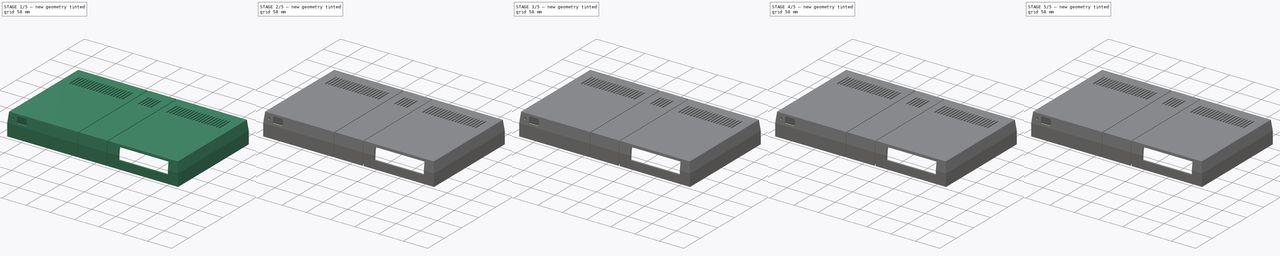
[diagram: build sequence overview — one tinted view per stage of 5, left to right]
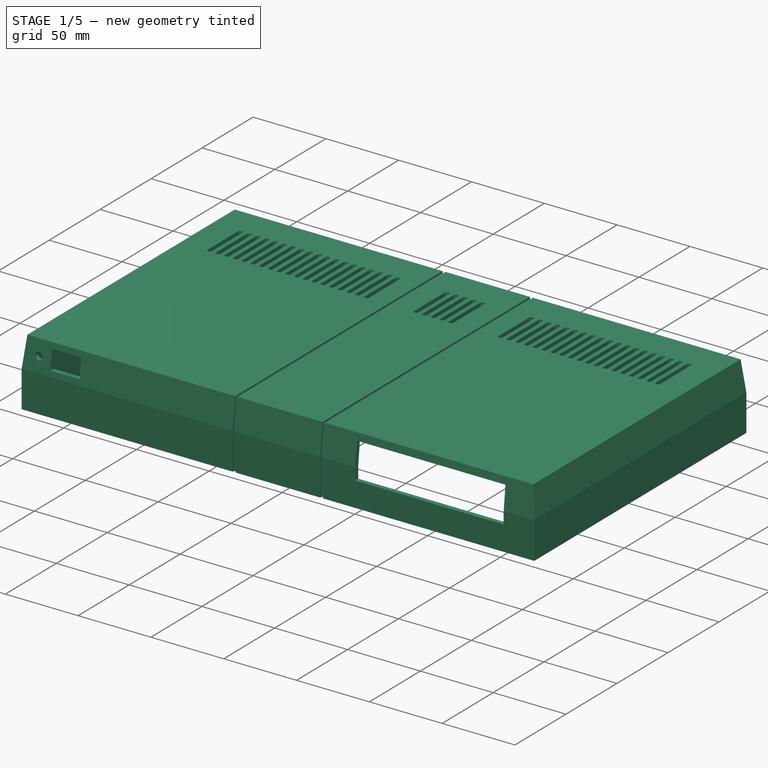
[diagram: stage 1 of 5 — iso view after this stage's code; geometry added in this stage tinted green]
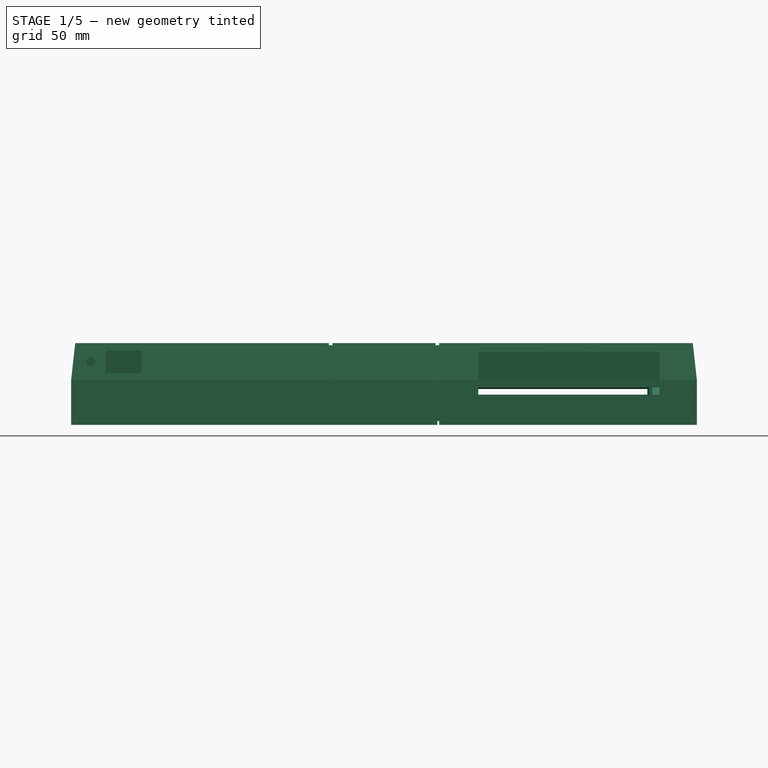
[diagram: stage 1 of 5 — front view after this stage's code; geometry added in this stage tinted green]
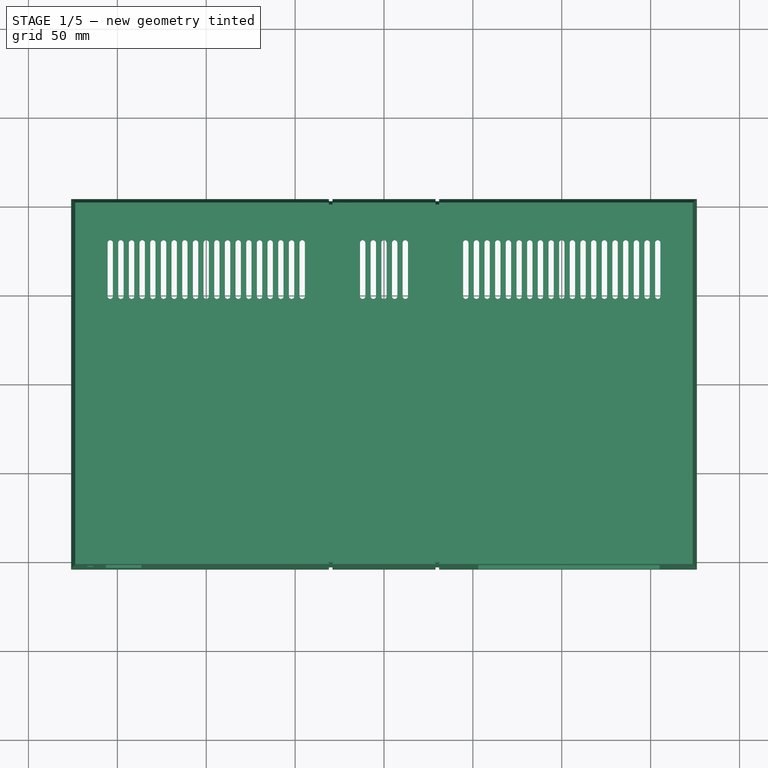
[diagram: stage 1 of 5 — top view after this stage's code; geometry added in this stage tinted green]
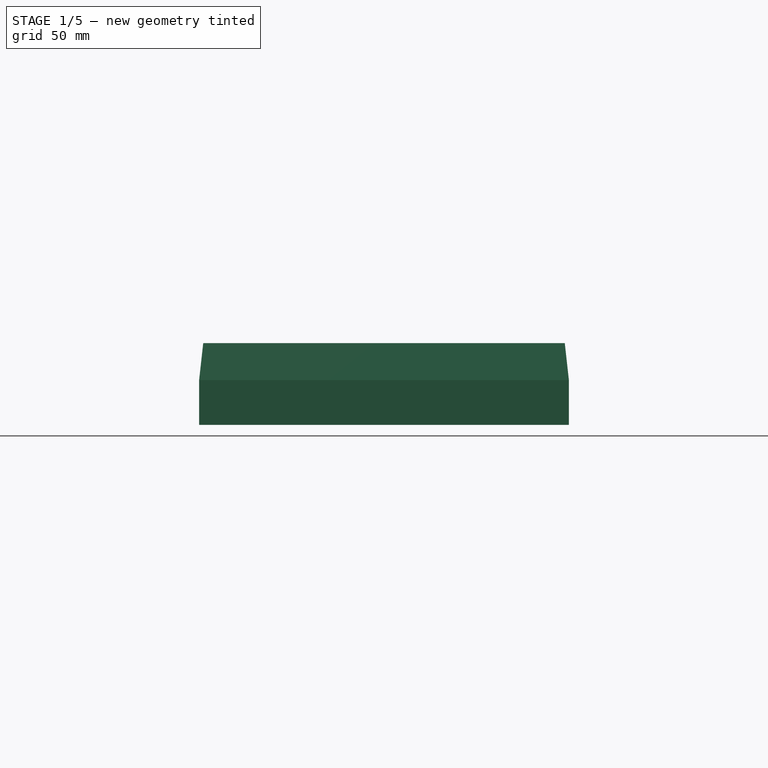
[diagram: stage 1 of 5 — right view after this stage's code; geometry added in this stage tinted green]
FCSTD DOCUMENT  (FreeCAD 0.21R33771 (Git))
Label: CaseTopWithGrooves
License: All rights reserved
LicenseURL: https://en.wikipedia.org/wiki/All_rights_reserved
objects: Part::Feature×78, Sketcher::SketchObject×64, PartDesign::Body×50, PartDesign::Pad×35, PartDesign::FeatureBase×32, PartDesign::Pocket×22, App::Part×18, Part::FeaturePython×17, App::DocumentObjectGroup×8, PartDesign::Fillet×5, PartDesign::Chamfer×4, PartDesign::SubtractivePipe×3, PartDesign::LinearPattern×2, PartDesign::Plane×2, PartDesign::Mirrored×1
note: 384 computed .brp shape members not serialized (recipe doc carries the construction recipe); baked Part::Feature solids carry a one-line shape summary decoded from their .brp

FEATURE [Part::Feature] Part__Feature  label="MountPostsChamfer"
  shape: bbox 352 x 208 x 55 mm, 100 faces (baked)
FEATURE [PartDesign::FeatureBase] BaseFeature
  BaseFeature = -> Part__Feature
FEATURE [Sketcher::SketchObject] Sketch  label="Path"
  ExternalGeometry = -> [BaseFeature]
  FullyConstrained = true
  MapMode = 5
  Placement = pos=(0,0,0) rot=(0.57735,0.57735,0.57735;2.0944rad)
  Support = -> [YZ_Plane]
  sketch-geometry (5):
    g0: LineSegment StartX=-104 StartY=6 StartZ=0 EndX=-104 EndY=31.1662 EndZ=0
    g1: LineSegment StartX=-104 StartY=31.1662 StartZ=0 EndX=-101.685 EndY=52 EndZ=0
    g2: LineSegment StartX=-101.685 StartY=52 StartZ=0 EndX=101.685 EndY=52 EndZ=0
    g3: LineSegment StartX=101.685 StartY=52 StartZ=0 EndX=104 EndY=31.1662 EndZ=0
    g4: LineSegment StartX=104 StartY=31.1662 StartZ=0 EndX=104 EndY=6 EndZ=0
  constraints (10):
    c: Coincident(g-3,g0)
    c: Coincident(g0,g-4)
    c: Coincident(g0,g1)
    c: Coincident(g1,g-5)
    c: Coincident(g1,g2)
    c: Coincident(g2,g-6)
    c: Coincident(g2,g3)
    c: Coincident(g3,g-7)
    c: Coincident(g3,g4)
    c: Coincident(g4,g-7)
FEATURE [Sketcher::SketchObject] Sketch001  label="Profil"
  AttachmentOffset = pos=(-30,0,6) rot=(0,0,1;0rad)
  FullyConstrained = true
  MapMode = 5
  Placement = pos=(-30,0,6) rot=(0,0,1;0rad)
  Support = -> [XY_Plane]
  sketch-geometry (4):
    g0: LineSegment StartX=-1 StartY=-105 StartZ=0 EndX=1 EndY=-105 EndZ=0
    g1: LineSegment StartX=1 StartY=-105 StartZ=0 EndX=1 EndY=-102.8 EndZ=0
    g2: LineSegment StartX=1 StartY=-102.8 StartZ=0 EndX=-1 EndY=-102.8 EndZ=0
    g3: LineSegment StartX=-1 StartY=-102.8 StartZ=0 EndX=-1 EndY=-105 EndZ=0
  constraints (10):
    c: Coincident(g0,g1)
    c: Coincident(g1,g2)
    c: Coincident(g2,g3)
    c: Coincident(g3,g0)
    c: Horizontal(g0)
    c: Horizontal(g2)
    c: Vertical(g1)
    c: Vertical(g3)
    c: Block(g0)
    c: DistanceY(g3,g3) = 2.2
FEATURE [PartDesign::SubtractivePipe] SubtractivePipe
  AuxilleryCurvelinear = true
  AuxillerySpineTangent = false
  BaseFeature = -> BaseFeature
  Binormal = (0,0,0)
  Mode = 0
  Profile = -> Sketch001
  Refine = true
  Spine = -> Sketch
  SpineTangent = false
  Transformation = 0
  Transition = 1
FEATURE [PartDesign::LinearPattern] LinearPattern
  BaseFeature = -> SubtractivePipe
  Direction = -> Sketch001 [H_Axis]
  Length = 60
  Occurrences = 2
  Originals = -> [SubtractivePipe]
  Refine = true
FEATURE [Sketcher::SketchObject] Sketch002  label="PowerSwitch"
  ExternalGeometry = -> [LinearPattern]
  FullyConstrained = true
  MapMode = 5
  Placement = pos=(0,0,0) rot=(1,0,0;1.5708rad)
  Support = -> [XZ_Plane]
  sketch-geometry (10):
    g0: LineSegment StartX=-156.5 StartY=48 StartZ=0 EndX=-136.5 EndY=48 EndZ=0
    g1: LineSegment StartX=-136.5 StartY=48 StartZ=0 EndX=-136.5 EndY=35 EndZ=0
    g2: LineSegment StartX=-136.5 StartY=35 StartZ=0 EndX=-156.5 EndY=35 EndZ=0
    g3: LineSegment StartX=-156.5 StartY=35 StartZ=0 EndX=-156.5 EndY=48 EndZ=0
    g4: LineSegment StartX=-156.5 StartY=35 StartZ=0 EndX=-136.5 EndY=48 EndZ=0
    g5: LineSegment StartX=-156.5 StartY=48 StartZ=0 EndX=-136.5 EndY=35 EndZ=0
    g6: GeomPoint X=-146.5 Y=41.5 Z=0
    g7: LineSegment StartX=-146.5 StartY=59.9819 StartZ=0 EndX=-146.5 EndY=-13.0181 EndZ=0
    g8: LineSegment StartX=-180 StartY=41.5 StartZ=0 EndX=-125.733 EndY=41.5 EndZ=0
    g9: Circle CenterX=-165 CenterY=41.5 CenterZ=0 NormalX=0 NormalY=0 NormalZ=1 AngleXU=0 Radius=2.50079
  constraints (25):
    c: Coincident(g0,g1)
    c: Coincident(g1,g2)
    c: Coincident(g2,g3)
    c: Coincident(g3,g0)
    c: Horizontal(g0)
    c: Horizontal(g2)
    c: Vertical(g1)
    c: Vertical(g3)
    c: DistanceX(g0,g0) = 20
    c: DistanceY(g1,g1) = 13
    c: Coincident(g4,g2)
    c: Coincident(g4,g0)
    c: Coincident(g5,g0)
    c: Coincident(g5,g1)
    c: PointOnObject(g6,g4)
    c: Vertical(g7)
    c: PointOnObject(g6,g5)
    c: PointOnObject(g6,g7)
    c: DistanceX(g7) = -146.5
    c: Horizontal(g8)
    c: PointOnObject(g6,g8)
    c: PointOnObject(g9,g8)
    c: Block(g7)
    c: Block(g8)
    c: Block(g9)
FEATURE [PartDesign::Pocket] Pocket  label="PowerSwitchPocket"
  BaseFeature = -> LinearPattern
  Direction = (0,1,2e-16)
  Length = 5
  Length2 = 5
  Profile = -> Sketch002
  ReferenceAxis = -> Sketch002 [N_Axis]
  Refine = true
  Reversed = true
  Type = 1
FEATURE [PartDesign::Body] Body004  label="FrontSupport"
  Group = -> [Sketch011,Pad004]
  Origin = -> Origin008
  Tip = -> Pad004
FEATURE [Part::Feature] Body005  label="BackSupport"
  Placement = pos=(0,25,0) rot=(0,0,1;0rad)
  shape: bbox 14 x 3 x 2 mm, 6 faces (baked)
FEATURE [App::Part] Part  label="PowerSwitchMount"
  Group = -> [Body002,Body004,Body005,Pocket003]
  Origin = -> Origin004
FEATURE [Sketcher::SketchObject] Sketch012  label="FloppyCutout"
  FullyConstrained = true
  MapMode = 5
  Placement = pos=(0,0,0) rot=(1,0,0;1.5708rad)
  Support = -> [XZ_Plane]
  sketch-geometry (4):
    g0: LineSegment StartX=53 StartY=47 StartZ=0 EndX=155 EndY=47 EndZ=0
    g1: LineSegment StartX=155 StartY=47 StartZ=0 EndX=155 EndY=23 EndZ=0
    g2: LineSegment StartX=155 StartY=23 StartZ=0 EndX=53 EndY=23 EndZ=0
    g3: LineSegment StartX=53 StartY=23 StartZ=0 EndX=53 EndY=47 EndZ=0
  constraints (12):
    c: Coincident(g0,g1)
    c: Coincident(g1,g2)
    c: Coincident(g2,g3)
    c: Coincident(g3,g0)
    c: Horizontal(g0)
    c: Horizontal(g2)
    c: Vertical(g1)
    c: Vertical(g3)
    c: DistanceX(g0,g0) = 102
    c: DistanceY(g1,g1) = 24
    c: DistanceX(g0) = 53
    c: DistanceY(g0) = 47
FEATURE [PartDesign::Pocket] Pocket006  label="FloppyCutout001"
  BaseFeature = -> Pocket
  Direction = (0,1,2e-16)
  Length = 5
  Length2 = 5
  Profile = -> Sketch012
  ReferenceAxis = -> Sketch012 [N_Axis]
  Refine = true
  Reversed = true
  Type = 1
FEATURE [Sketcher::SketchObject] Sketch033
  AttachmentOffset = pos=(0,0,-1) rot=(0,0,1;0rad)
  FullyConstrained = true
  MapMode = 5
  Placement = pos=(0,0,-1) rot=(0,0,1;0rad)
  Support = -> [XY_Plane]
  sketch-geometry (11):
    g0: LineSegment StartX=-149.1 StartY=104.197 StartZ=0 EndX=-149.1 EndY=103.417 EndZ=0
    g1: LineSegment StartX=-149.1 StartY=103.417 StartZ=0 EndX=-148.183 EndY=102.5 EndZ=0
    g2: LineSegment StartX=-147.9 StartY=102.5 StartZ=0 EndX=-148.8 EndY=102.5 EndZ=0
    g3: LineSegment StartX=-149.1 StartY=104.197 StartZ=0 EndX=-147.7 EndY=104.197 EndZ=0
    g4: LineSegment StartX=-147.7 StartY=104.197 StartZ=0 EndX=-147.7 EndY=102.5 EndZ=0
    g5: LineSegment StartX=-147.9 StartY=102.5 StartZ=0 EndX=-148.9 EndY=103.5 EndZ=0
    g6: LineSegment StartX=-149.1 StartY=100.8 StartZ=0 EndX=-149.1 EndY=101.583 EndZ=0
    g7: LineSegment StartX=-149.1 StartY=101.583 StartZ=0 EndX=-148.183 EndY=102.5 EndZ=0
    g8: LineSegment StartX=-149.1 StartY=100.8 StartZ=0 EndX=-147.7 EndY=100.8 EndZ=0
    g9: LineSegment StartX=-147.7 StartY=100.8 StartZ=0 EndX=-147.7 EndY=102.5 EndZ=0
    g10: LineSegment StartX=-147.9 StartY=102.5 StartZ=0 EndX=-148.9 EndY=101.5 EndZ=0
  constraints (27):
    c: Vertical(g0)
    c: Coincident(g0,g1)
    c: Angle(g1,g0) = 2.35619
    c: Coincident(g3,g0)
    c: Horizontal(g3)
    c: Coincident(g4,g3)
    c: Vertical(g4)
    c: Coincident(g5,g2)
    c: Block(g5)
    c: Distance(g1,g5) = 0.2
    c: Block(g2)
    c: PointOnObject(g1,g2)
    c: Distance(g5,g0) = 0.2
    c: Coincident(g6,g7)
    c: Angle(g7,g6) = -2.35619
    c: Coincident(g8,g6)
    c: Coincident(g9,g8)
    c: Block(g10)
    c: Distance(g7,g10) = 0.2
    c: Distance(g10,g6) = 0.2
    c: Coincident(g4,g9)
    c: Block(g3)
    c: Block(g8)
    c: Block(g4)
    c: Block(g7)
    c: DistanceX(g3,g3) = 1.4
    c: DistanceY(g0,g0) = 0.78
FEATURE [PartDesign::Pocket] Pocket011  label="InterfaceCutouts001"
  BaseFeature = -> Pocket006
  Direction = (0,1,2e-16)
  Length = 5
  Length2 = 5
  Profile = -> Sketch013
  ReferenceAxis = -> Sketch013 [N_Axis]
  Refine = true
  Reversed = true
  Type = 0
FEATURE [PartDesign::SubtractivePipe] SubtractivePipe002  label="Ridge"
  AuxilleryCurvelinear = true
  AuxillerySpineTangent = false
  BaseFeature = -> Pocket011
  Binormal = (0,0,0)
  Mode = 0
  Profile = -> Sketch033
  Refine = true
  Spine = -> Sketch013 [Edge4,Edge1,Edge2]
  SpineTangent = false
  Transformation = 0
  Transition = 1
FEATURE [PartDesign::Mirrored] Mirrored
  BaseFeature = -> SubtractivePipe002
  MirrorPlane = -> Sketch033 [V_Axis]
  Originals = -> [SubtractivePipe002]
  Refine = true
FEATURE [PartDesign::Pocket] Pocket012  label="DC Socket"
  BaseFeature = -> Mirrored
  Direction = (0,1,-2e-16)
  Length = 5
  Length2 = 5
  Profile = -> Sketch029
  ReferenceAxis = -> Sketch029 [N_Axis]
  Refine = true
  Reversed = true
  Type = 0
FEATURE [PartDesign::Body] Body015  label="Tooth"
  Group = -> [Sketch038,Pad018]
  Origin = -> Origin028
  Tip = -> Pad018
FEATURE [Sketcher::SketchObject] Sketch039  label="Tape"
  FullyConstrained = false
  MapMode = 5
  Placement = pos=(0,0,0) rot=(1,0,0;1.5708rad)
  Support = -> [XZ_Plane]
  sketch-geometry (5):
    g0: LineSegment StartX=40 StartY=17 StartZ=0 EndX=-42.4413 EndY=17 EndZ=0
    g1: Circle CenterX=9 CenterY=17 CenterZ=0 NormalX=0 NormalY=0 NormalZ=1 AngleXU=0 Radius=3.2
    g2: Circle CenterX=9 CenterY=17 CenterZ=0 NormalX=0 NormalY=0 NormalZ=1 AngleXU=0 Radius=6
    g3: Circle CenterX=23 CenterY=17 CenterZ=0 NormalX=0 NormalY=0 NormalZ=1 AngleXU=0 Radius=3.2
    g4: Circle CenterX=23 CenterY=17 CenterZ=0 NormalX=0 NormalY=0 NormalZ=1 AngleXU=0 Radius=6
  constraints (11):
    c: Horizontal(g0)
    c: Block(g0)
    c: PointOnObject(g1,g0)
    c: Diameter(g1) = 6.4
    c: Coincident(g2,g1)
    c: Diameter(g2) = 12
    c: DistanceX(g1) = 9
    c: Diameter(g3) = 6.4
    c: Coincident(g4,g3)
    c: Diameter(g4) = 12
    c: DistanceX(g1,g3) = 14
FEATURE [PartDesign::Pocket] Pocket014  label="Tape001"
  BaseFeature = -> Pocket012
  Direction = (0,1,2e-16)
  Length = 5
  Length2 = 5
  Profile = -> Sketch039
  ReferenceAxis = -> Sketch039 [N_Axis]
  Refine = true
  Type = 1
FEATURE [PartDesign::Pocket] Pocket001  label="PowerSlot001"
  BaseFeature = -> Pocket014
  Direction = (0,1,2e-16)
  Length = 3
  Length2 = 5
  Profile = -> Sketch003
  ReferenceAxis = -> Sketch003 [N_Axis]
  Refine = true
  Type = 0
FEATURE [PartDesign::Body] Body045  label="Kbd left (clone)"
  Group = -> [Clone022,Sketch064,Pad032,Fillet004]
  Origin = -> Origin063
  Placement = pos=(82.2,0,0) rot=(0,0,1;0rad)
  Tip = -> Fillet004
FEATURE [App::DocumentObjectGroup] Group005  label="Body screw posts"
  Group = -> [Body037,Body039,Body042,Screw005,Screw006,Body043,Body044,Body045,Body048]
FEATURE [App::Part] Part005  label="Yet Another Panel"
  Group = -> [Body012,Body013,Body014,Body015,Body016,Body017,Body028,Body029,Pin,Group002,Body030,Body032,Body034,Group003,Body031,Body033,Body035,Screw003,Group004,Body036,Body038,Group005,Body037,Body039,Screw002,Body040,Body041,Body042,Screw005,Screw006,Body043,Body044,Body045,Body046,Body047,Body048]
  Origin = -> Origin024
FEATURE [PartDesign::FeatureBase] Clone026
  BaseFeature = -> Body
FEATURE [Sketcher::SketchObject] Sketch065  label="Vents"
  FullyConstrained = false
  MapMode = 5
  Support = -> [XY_Plane067]
  sketch-geometry (215):
    g0: ArcOfCircle CenterX=-100 CenterY=79 CenterZ=0 NormalX=0 NormalY=0 NormalZ=1 AngleXU=0 Radius=1.5 StartAngle=2.6e-15 EndAngle=3.14159
    g1: ArcOfCircle CenterX=-100 CenterY=49 CenterZ=0 NormalX=0 NormalY=0 NormalZ=1 AngleXU=0 Radius=1.5 StartAngle=3.14159 EndAngle=6.28319
    g2: LineSegment StartX=-101.5 StartY=79 StartZ=0 EndX=-101.5 EndY=49 EndZ=0
    g3: LineSegment StartX=-98.5 StartY=49 StartZ=0 EndX=-98.5 EndY=79 EndZ=0
    g4: LineSegment StartX=-176 StartY=110 StartZ=0 EndX=-176 EndY=40 EndZ=0
    g5: LineSegment StartX=-181 StartY=104 StartZ=0 EndX=-138 EndY=104 EndZ=0
    g6: ArcOfCircle CenterX=-94 CenterY=79 CenterZ=0 NormalX=0 NormalY=0 NormalZ=1 AngleXU=0 Radius=1.5 StartAngle=2.6e-15 EndAngle=3.14159
    g7: ArcOfCircle CenterX=-94 CenterY=49 CenterZ=0 NormalX=0 NormalY=0 NormalZ=1 AngleXU=0 Radius=1.5 StartAngle=3.14159 EndAngle=6.28319
    g8: LineSegment StartX=-95.5 StartY=79 StartZ=0 EndX=-95.5 EndY=49 EndZ=0
    g9: LineSegment StartX=-92.5 StartY=49 StartZ=0 EndX=-92.5 EndY=79 EndZ=0
    g10: LineSegment StartX=-98.5 StartY=79 StartZ=0 EndX=-92.5 EndY=79 EndZ=0
    g11: ArcOfCircle CenterX=-88 CenterY=79 CenterZ=0 NormalX=0 NormalY=0 NormalZ=1 AngleXU=0 Radius=1.5 StartAngle=2.6e-15 EndAngle=3.14159
    g12: ArcOfCircle CenterX=-88 CenterY=49 CenterZ=0 NormalX=0 NormalY=0 NormalZ=1 AngleXU=0 Radius=1.5 StartAngle=3.14159 EndAngle=6.28319
    g13: LineSegment StartX=-89.5 StartY=79 StartZ=0 EndX=-89.5 EndY=49 EndZ=0
    g14: LineSegment StartX=-86.5 StartY=49 StartZ=0 EndX=-86.5 EndY=79 EndZ=0
    g15: LineSegment StartX=-92.5 StartY=79 StartZ=0 EndX=-86.5 EndY=79 EndZ=0
    g16: ArcOfCircle CenterX=-82 CenterY=79 CenterZ=0 NormalX=0 NormalY=0 NormalZ=1 AngleXU=0 Radius=1.5 StartAngle=2.6e-15 EndAngle=3.14159
    g17: ArcOfCircle CenterX=-82 CenterY=49 CenterZ=0 NormalX=0 NormalY=0 NormalZ=1 AngleXU=0 Radius=1.5 StartAngle=3.14159 EndAngle=6.28319
    g18: LineSegment StartX=-83.5 StartY=79 StartZ=0 EndX=-83.5 EndY=49 EndZ=0
    g19: LineSegment StartX=-80.5 StartY=49 StartZ=0 EndX=-80.5 EndY=79 EndZ=0
    g20: LineSegment StartX=-86.5 StartY=79 StartZ=0 EndX=-80.5 EndY=79 EndZ=0
    g21: ArcOfCircle CenterX=-76 CenterY=79 CenterZ=0 NormalX=0 NormalY=0 NormalZ=1 AngleXU=0 Radius=1.5 StartAngle=2.6e-15 EndAngle=3.14159
    g22: ArcOfCircle CenterX=-76 CenterY=49 CenterZ=0 NormalX=0 NormalY=0 NormalZ=1 AngleXU=0 Radius=1.5 StartAngle=3.14159 EndAngle=6.28319
    g23: LineSegment StartX=-77.5 StartY=79 StartZ=0 EndX=-77.5 EndY=49 EndZ=0
    g24: LineSegment StartX=-74.5 StartY=49 StartZ=0 EndX=-74.5 EndY=79 EndZ=0
    g25: LineSegment StartX=-80.5 StartY=79 StartZ=0 EndX=-74.5 EndY=79 EndZ=0
    g26: ArcOfCircle CenterX=-70 CenterY=79 CenterZ=0 NormalX=0 NormalY=0 NormalZ=1 AngleXU=0 Radius=1.5 StartAngle=2.6e-15 EndAngle=3.14159
    g27: ArcOfCircle CenterX=-70 CenterY=49 CenterZ=0 NormalX=0 NormalY=0 NormalZ=1 AngleXU=0 Radius=1.5 StartAngle=3.14159 EndAngle=6.28319
    g28: LineSegment StartX=-71.5 StartY=79 StartZ=0 EndX=-71.5 EndY=49 EndZ=0
    g29: LineSegment StartX=-68.5 StartY=49 StartZ=0 EndX=-68.5 EndY=79 EndZ=0
    g30: LineSegment StartX=-74.5 StartY=79 StartZ=0 EndX=-68.5 EndY=79 EndZ=0
    g31: ArcOfCircle CenterX=-64 CenterY=79 CenterZ=0 NormalX=0 NormalY=0 NormalZ=1 AngleXU=0 Radius=1.5 StartAngle=2.6e-15 EndAngle=3.14159
    g32: ArcOfCircle CenterX=-64 CenterY=49 CenterZ=0 NormalX=0 NormalY=0 NormalZ=1 AngleXU=0 Radius=1.5 StartAngle=3.14159 EndAngle=6.28319
    g33: LineSegment StartX=-65.5 StartY=79 StartZ=0 EndX=-65.5 EndY=49 EndZ=0
    g34: LineSegment StartX=-62.5 StartY=49 StartZ=0 EndX=-62.5 EndY=79 EndZ=0
    g35: LineSegment StartX=-68.5 StartY=79 StartZ=0 EndX=-62.5 EndY=79 EndZ=0
    g36: ArcOfCircle CenterX=-58 CenterY=79 CenterZ=0 NormalX=0 NormalY=0 NormalZ=1 AngleXU=0 Radius=1.5 StartAngle=2.6e-15 EndAngle=3.14159
    g37: ArcOfCircle CenterX=-58 CenterY=49 CenterZ=0 NormalX=0 NormalY=0 NormalZ=1 AngleXU=0 Radius=1.5 StartAngle=3.14159 EndAngle=6.28319
    g38: LineSegment StartX=-59.5 StartY=79 StartZ=0 EndX=-59.5 EndY=49 EndZ=0
    g39: LineSegment StartX=-56.5 StartY=49 StartZ=0 EndX=-56.5 EndY=79 EndZ=0
    g40: LineSegment StartX=-62.5 StartY=79 StartZ=0 EndX=-56.5 EndY=79 EndZ=0
    g41: ArcOfCircle CenterX=-52 CenterY=79 CenterZ=0 NormalX=0 NormalY=0 NormalZ=1 AngleXU=0 Radius=1.5 StartAngle=2.6e-15 EndAngle=3.14159
    g42: ArcOfCircle CenterX=-52 CenterY=49 CenterZ=0 NormalX=0 NormalY=0 NormalZ=1 AngleXU=0 Radius=1.5 StartAngle=3.14159 EndAngle=6.28319
    g43: LineSegment StartX=-53.5 StartY=79 StartZ=0 EndX=-53.5 EndY=49 EndZ=0
    g44: LineSegment StartX=-50.5 StartY=49 StartZ=0 EndX=-50.5 EndY=79 EndZ=0
    g45: LineSegment StartX=-56.5 StartY=79 StartZ=0 EndX=-50.5 EndY=79 EndZ=0
    g46: ArcOfCircle CenterX=-46 CenterY=79 CenterZ=0 NormalX=0 NormalY=0 NormalZ=1 AngleXU=0 Radius=1.5 StartAngle=2.6e-15 EndAngle=3.14159
    g47: ArcOfCircle CenterX=-46 CenterY=49 CenterZ=0 NormalX=0 NormalY=0 NormalZ=1 AngleXU=0 Radius=1.5 StartAngle=3.14159 EndAngle=6.28319
    g48: LineSegment StartX=-47.5 StartY=79 StartZ=0 EndX=-47.5 EndY=49 EndZ=0
    g49: LineSegment StartX=-44.5 StartY=49 StartZ=0 EndX=-44.5 EndY=79 EndZ=0
    g50: LineSegment StartX=-50.5 StartY=79 StartZ=0 EndX=-44.5 EndY=79 EndZ=0
    g51: LineSegment StartX=-44.5 StartY=79 StartZ=0 EndX=-38.5 EndY=79 EndZ=0
    g52: ArcOfCircle CenterX=-106 CenterY=79 CenterZ=0 NormalX=0 NormalY=0 NormalZ=1 AngleXU=0 Radius=1.5 StartAngle=2.6e-15 EndAngle=3.14159
    g53: ArcOfCircle CenterX=-106 CenterY=49 CenterZ=0 NormalX=0 NormalY=0 NormalZ=1 AngleXU=0 Radius=1.5 StartAngle=3.14159 EndAngle=6.28319
    g54: LineSegment StartX=-107.5 StartY=79 StartZ=0 EndX=-107.5 EndY=49 EndZ=0
    g55: LineSegment StartX=-104.5 StartY=49 StartZ=0 EndX=-104.5 EndY=79 EndZ=0
    g56: LineSegment StartX=-98.5 StartY=79 StartZ=0 EndX=-104.5 EndY=79 EndZ=0
    g57: ArcOfCircle CenterX=-112 CenterY=79 CenterZ=0 NormalX=0 NormalY=0 NormalZ=1 AngleXU=0 Radius=1.5 StartAngle=2.6e-15 EndAngle=3.14159
    g58: ArcOfCircle CenterX=-112 CenterY=49 CenterZ=0 NormalX=0 NormalY=0 NormalZ=1 AngleXU=0 Radius=1.5 StartAngle=3.14159 EndAngle=6.28319
    g59: LineSegment StartX=-113.5 StartY=79 StartZ=0 EndX=-113.5 EndY=49 EndZ=0
    g60: LineSegment StartX=-110.5 StartY=49 StartZ=0 EndX=-110.5 EndY=79 EndZ=0
    g61: LineSegment StartX=-104.5 StartY=79 StartZ=0 EndX=-110.5 EndY=79 EndZ=0
    g62: ArcOfCircle CenterX=-118 CenterY=79 CenterZ=0 NormalX=0 NormalY=0 NormalZ=1 AngleXU=0 Radius=1.5 StartAngle=2.6e-15 EndAngle=3.14159
    g63: ArcOfCircle CenterX=-118 CenterY=49 CenterZ=0 NormalX=0 NormalY=0 NormalZ=1 AngleXU=0 Radius=1.5 StartAngle=3.14159 EndAngle=6.28319
    g64: LineSegment StartX=-119.5 StartY=79 StartZ=0 EndX=-119.5 EndY=49 EndZ=0
    g65: LineSegment StartX=-116.5 StartY=49 StartZ=0 EndX=-116.5 EndY=79 EndZ=0
    g66: LineSegment StartX=-110.5 StartY=79 StartZ=0 EndX=-116.5 EndY=79 EndZ=0
    g67: ArcOfCircle CenterX=-124 CenterY=79 CenterZ=0 NormalX=0 NormalY=0 NormalZ=1 AngleXU=0 Radius=1.5 StartAngle=2.6e-15 EndAngle=3.14159
    g68: ArcOfCircle CenterX=-124 CenterY=49 CenterZ=0 NormalX=0 NormalY=0 NormalZ=1 AngleXU=0 Radius=1.5 StartAngle=3.14159 EndAngle=6.28319
    g69: LineSegment StartX=-125.5 StartY=79 StartZ=0 EndX=-125.5 EndY=49 EndZ=0
    g70: LineSegment StartX=-122.5 StartY=49 StartZ=0 EndX=-122.5 EndY=79 EndZ=0
    g71: LineSegment StartX=-116.5 StartY=79 StartZ=0 EndX=-122.5 EndY=79 EndZ=0
    g72: ArcOfCircle CenterX=-130 CenterY=79 CenterZ=0 NormalX=0 NormalY=0 NormalZ=1 AngleXU=0 Radius=1.5 StartAngle=2.6e-15 EndAngle=3.14159
    g73: ArcOfCircle CenterX=-130 CenterY=49 CenterZ=0 NormalX=0 NormalY=0 NormalZ=1 AngleXU=0 Radius=1.5 StartAngle=3.14159 EndAngle=6.28319
    g74: LineSegment StartX=-131.5 StartY=79 StartZ=0 EndX=-131.5 EndY=49 EndZ=0
    g75: LineSegment StartX=-128.5 StartY=49 StartZ=0 EndX=-128.5 EndY=79 EndZ=0
    g76: LineSegment StartX=-122.5 StartY=79 StartZ=0 EndX=-128.5 EndY=79 EndZ=0
    g77: ArcOfCircle CenterX=-136 CenterY=79 CenterZ=0 NormalX=0 NormalY=0 NormalZ=1 AngleXU=0 Radius=1.5 StartAngle=2.6e-15 EndAngle=3.14159
    g78: ArcOfCircle CenterX=-136 CenterY=49 CenterZ=0 NormalX=0 NormalY=0 NormalZ=1 AngleXU=0 Radius=1.5 StartAngle=3.14159 EndAngle=6.28319
    g79: LineSegment StartX=-137.5 StartY=79 StartZ=0 EndX=-137.5 EndY=49 EndZ=0
    g80: LineSegment StartX=-134.5 StartY=49 StartZ=0 EndX=-134.5 EndY=79 EndZ=0
    g81: LineSegment StartX=-128.5 StartY=79 StartZ=0 EndX=-134.5 EndY=79 EndZ=0
    g82: ArcOfCircle CenterX=-142 CenterY=79 CenterZ=0 NormalX=0 NormalY=0 NormalZ=1 AngleXU=0 Radius=1.5 StartAngle=2.6e-15 EndAngle=3.14159
    g83: ArcOfCircle CenterX=-142 CenterY=49 CenterZ=0 NormalX=0 NormalY=0 NormalZ=1 AngleXU=0 Radius=1.5 StartAngle=3.14159 EndAngle=6.28319
    g84: LineSegment StartX=-143.5 StartY=79 StartZ=0 EndX=-143.5 EndY=49 EndZ=0
    g85: LineSegment StartX=-140.5 StartY=49 StartZ=0 EndX=-140.5 EndY=79 EndZ=0
    g86: LineSegment StartX=-134.5 StartY=79 StartZ=0 EndX=-140.5 EndY=79 EndZ=0
    g87: ArcOfCircle CenterX=-148 CenterY=79 CenterZ=0 NormalX=0 NormalY=0 NormalZ=1 AngleXU=0 Radius=1.5 StartAngle=2.6e-15 EndAngle=3.14159
    g88: ArcOfCircle CenterX=-148 CenterY=49 CenterZ=0 NormalX=0 NormalY=0 NormalZ=1 AngleXU=0 Radius=1.5 StartAngle=3.14159 EndAngle=6.28319
    g89: LineSegment StartX=-149.5 StartY=79 StartZ=0 EndX=-149.5 EndY=49 EndZ=0
    g90: LineSegment StartX=-146.5 StartY=49 StartZ=0 EndX=-146.5 EndY=79 EndZ=0
    g91: LineSegment StartX=-140.5 StartY=79 StartZ=0 EndX=-146.5 EndY=79 EndZ=0
    g92: ArcOfCircle CenterX=-154 CenterY=79 CenterZ=0 NormalX=0 NormalY=0 NormalZ=1 AngleXU=0 Radius=1.5 StartAngle=2.6e-15 EndAngle=3.14159
    g93: ArcOfCircle CenterX=-154 CenterY=49 CenterZ=0 NormalX=0 NormalY=0 NormalZ=1 AngleXU=0 Radius=1.5 StartAngle=3.14159 EndAngle=6.28319
    g94: LineSegment StartX=-155.5 StartY=79 StartZ=0 EndX=-155.5 EndY=49 EndZ=0
    g95: LineSegment StartX=-152.5 StartY=49 StartZ=0 EndX=-152.5 EndY=79 EndZ=0
    g96: LineSegment StartX=-146.5 StartY=79 StartZ=0 EndX=-152.5 EndY=79 EndZ=0
    g97: ArcOfCircle CenterX=0.000175 CenterY=79 CenterZ=0 NormalX=0 NormalY=0 NormalZ=1 AngleXU=0 Radius=1.5 StartAngle=2.6e-15 EndAngle=3.14159
    g98: ArcOfCircle CenterX=0.000175 CenterY=49 CenterZ=0 NormalX=0 NormalY=0 NormalZ=1 AngleXU=0 Radius=1.5 StartAngle=3.14159 EndAngle=6.28319
    g99: LineSegment StartX=-1.49983 StartY=79 StartZ=0 EndX=-1.49983 EndY=49 EndZ=0
    g100: LineSegment StartX=1.50017 StartY=49 StartZ=0 EndX=1.50017 EndY=79 EndZ=0
    g101: ArcOfCircle CenterX=6 CenterY=79 CenterZ=0 NormalX=0 NormalY=0 NormalZ=1 AngleXU=0 Radius=1.5 StartAngle=2.6e-15 EndAngle=3.14159
    g102: ArcOfCircle CenterX=6 CenterY=49 CenterZ=0 NormalX=0 NormalY=0 NormalZ=1 AngleXU=0 Radius=1.5 StartAngle=3.14159 EndAngle=6.28319
    g103: LineSegment StartX=4.5 StartY=79 StartZ=0 EndX=4.5 EndY=49 EndZ=0
    g104: LineSegment StartX=7.5 StartY=49 StartZ=0 EndX=7.5 EndY=79 EndZ=0
    g105: LineSegment StartX=1.50017 StartY=79 StartZ=0 EndX=7.5 EndY=79 EndZ=0
    g106: ArcOfCircle CenterX=11.9998 CenterY=79 CenterZ=0 NormalX=0 NormalY=0 NormalZ=1 AngleXU=0 Radius=1.5 StartAngle=2.6e-15 EndAngle=3.14159
    g107: ArcOfCircle CenterX=11.9998 CenterY=49 CenterZ=0 NormalX=0 NormalY=0 NormalZ=1 AngleXU=0 Radius=1.5 StartAngle=3.14159 EndAngle=6.28319
    g108: LineSegment StartX=10.4998 StartY=79 StartZ=0 EndX=10.4998 EndY=49 EndZ=0
    g109: LineSegment StartX=13.4998 StartY=49 StartZ=0 EndX=13.4998 EndY=79 EndZ=0
    g110: LineSegment StartX=7.5 StartY=79 StartZ=0 EndX=13.4998 EndY=79 EndZ=0
    g111: ArcOfCircle CenterX=-6 CenterY=79 CenterZ=0 NormalX=0 NormalY=0 NormalZ=1 AngleXU=0 Radius=1.5 StartAngle=2.6e-15 EndAngle=3.14159
    g112: ArcOfCircle CenterX=-6 CenterY=49 CenterZ=0 NormalX=0 NormalY=0 NormalZ=1 AngleXU=0 Radius=1.5 StartAngle=3.14159 EndAngle=6.28319
    g113: LineSegment StartX=-7.5 StartY=79 StartZ=0 EndX=-7.5 EndY=49 EndZ=0
    g114: LineSegment StartX=-4.5 StartY=49 StartZ=0 EndX=-4.5 EndY=79 EndZ=0
    g115: LineSegment StartX=1.50017 StartY=79 StartZ=0 EndX=-4.5 EndY=79 EndZ=0
    g116: ArcOfCircle CenterX=-12.0002 CenterY=79 CenterZ=0 NormalX=0 NormalY=0 NormalZ=1 AngleXU=0 Radius=1.5 StartAngle=2.6e-15 EndAngle=3.14159
    g117: ArcOfCircle CenterX=-12.0002 CenterY=49 CenterZ=0 NormalX=0 NormalY=0 NormalZ=1 AngleXU=0 Radius=1.5 StartAngle=3.14159 EndAngle=6.28319
    g118: LineSegment StartX=-13.5002 StartY=79 StartZ=0 EndX=-13.5002 EndY=49 EndZ=0
    g119: LineSegment StartX=-10.5002 StartY=49 StartZ=0 EndX=-10.5002 EndY=79 EndZ=0
    g120: LineSegment StartX=-4.5 StartY=79 StartZ=0 EndX=-10.5002 EndY=79 EndZ=0
    g121: ArcOfCircle CenterX=46 CenterY=79 CenterZ=0 NormalX=0 NormalY=0 NormalZ=1 AngleXU=0 Radius=1.5 StartAngle=0 EndAngle=3.14159
    g122: ArcOfCircle CenterX=46 CenterY=49 CenterZ=0 NormalX=0 NormalY=0 NormalZ=1 AngleXU=0 Radius=1.5 StartAngle=3.14159 EndAngle=6.28319
    g123: LineSegment StartX=47.5 StartY=79 StartZ=0 EndX=47.5 EndY=49 EndZ=0
    g124: LineSegment StartX=44.5 StartY=49 StartZ=0 EndX=44.5 EndY=79 EndZ=0
    g125: ArcOfCircle CenterX=52 CenterY=79 CenterZ=0 NormalX=0 NormalY=0 NormalZ=1 AngleXU=0 Radius=1.5 StartAngle=0 EndAngle=3.14159
    g126: ArcOfCircle CenterX=52 CenterY=49 CenterZ=0 NormalX=0 NormalY=0 NormalZ=1 AngleXU=0 Radius=1.5 StartAngle=3.14159 EndAngle=6.28319
    g127: LineSegment StartX=53.5 StartY=79 StartZ=0 EndX=53.5 EndY=49 EndZ=0
    g128: LineSegment StartX=50.5 StartY=49 StartZ=0 EndX=50.5 EndY=79 EndZ=0
    g129: LineSegment StartX=47.5 StartY=79 StartZ=0 EndX=53.5 EndY=79 EndZ=0
    g130: ArcOfCircle CenterX=58 CenterY=79 CenterZ=0 NormalX=0 NormalY=0 NormalZ=1 AngleXU=0 Radius=1.5 StartAngle=0 EndAngle=3.14159
    g131: ArcOfCircle CenterX=58 CenterY=49 CenterZ=0 NormalX=0 NormalY=0 NormalZ=1 AngleXU=0 Radius=1.5 StartAngle=3.14159 EndAngle=6.28319
    g132: LineSegment StartX=59.5 StartY=79 StartZ=0 EndX=59.5 EndY=49 EndZ=0
    g133: LineSegment StartX=56.5 StartY=49 StartZ=0 EndX=56.5 EndY=79 EndZ=0
    g134: LineSegment StartX=53.5 StartY=79 StartZ=0 EndX=59.5 EndY=79 EndZ=0
    g135: ArcOfCircle CenterX=64 CenterY=79 CenterZ=0 NormalX=0 NormalY=0 NormalZ=1 AngleXU=0 Radius=1.5 StartAngle=0 EndAngle=3.14159
    g136: ArcOfCircle CenterX=64 CenterY=49 CenterZ=0 NormalX=0 NormalY=0 NormalZ=1 AngleXU=0 Radius=1.5 StartAngle=3.14159 EndAngle=6.28319
    g137: LineSegment StartX=65.5 StartY=79 StartZ=0 EndX=65.5 EndY=49 EndZ=0
    g138: LineSegment StartX=62.5 StartY=49 StartZ=0 EndX=62.5 EndY=79 EndZ=0
    g139: LineSegment StartX=59.5 StartY=79 StartZ=0 EndX=65.5 EndY=79 EndZ=0
    g140: ArcOfCircle CenterX=70 CenterY=79 CenterZ=0 NormalX=0 NormalY=0 NormalZ=1 AngleXU=0 Radius=1.5 StartAngle=0 EndAngle=3.14159
    g141: ArcOfCircle CenterX=70 CenterY=49 CenterZ=0 NormalX=0 NormalY=0 NormalZ=1 AngleXU=0 Radius=1.5 StartAngle=3.14159 EndAngle=6.28319
    g142: LineSegment StartX=71.5 StartY=79 StartZ=0 EndX=71.5 EndY=49 EndZ=0
    g143: LineSegment StartX=68.5 StartY=49 StartZ=0 EndX=68.5 EndY=79 EndZ=0
    g144: LineSegment StartX=65.5 StartY=79 StartZ=0 EndX=71.5 EndY=79 EndZ=0
    g145: ArcOfCircle CenterX=76 CenterY=79 CenterZ=0 NormalX=0 NormalY=0 NormalZ=1 AngleXU=0 Radius=1.5 StartAngle=0 EndAngle=3.14159
    g146: ArcOfCircle CenterX=76 CenterY=49 CenterZ=0 NormalX=0 NormalY=0 NormalZ=1 AngleXU=0 Radius=1.5 StartAngle=3.14159 EndAngle=6.28319
    g147: LineSegment StartX=77.5 StartY=79 StartZ=0 EndX=77.5 EndY=49 EndZ=0
    g148: LineSegment StartX=74.5 StartY=49 StartZ=0 EndX=74.5 EndY=79 EndZ=0
    g149: LineSegment StartX=71.5 StartY=79 StartZ=0 EndX=77.5 EndY=79 EndZ=0
    g150: ArcOfCircle CenterX=82 CenterY=79 CenterZ=0 NormalX=0 NormalY=0 NormalZ=1 AngleXU=0 Radius=1.5 StartAngle=0 EndAngle=3.14159
    g151: ArcOfCircle CenterX=82 CenterY=49 CenterZ=0 NormalX=0 NormalY=0 NormalZ=1 AngleXU=0 Radius=1.5 StartAngle=3.14159 EndAngle=6.28319
    g152: LineSegment StartX=83.5 StartY=79 StartZ=0 EndX=83.5 EndY=49 EndZ=0
    g153: LineSegment StartX=80.5 StartY=49 StartZ=0 EndX=80.5 EndY=79 EndZ=0
    g154: LineSegment StartX=77.5 StartY=79 StartZ=0 EndX=83.5 EndY=79 EndZ=0
    g155: ArcOfCircle CenterX=88 CenterY=79 CenterZ=0 NormalX=0 NormalY=0 NormalZ=1 AngleXU=0 Radius=1.5 StartAngle=0 EndAngle=3.14159
    g156: ArcOfCircle CenterX=88 CenterY=49 CenterZ=0 NormalX=0 NormalY=0 NormalZ=1 AngleXU=0 Radius=1.5 StartAngle=3.14159 EndAngle=6.28319
    g157: LineSegment StartX=89.5 StartY=79 StartZ=0 EndX=89.5 EndY=49 EndZ=0
    g158: LineSegment StartX=86.5 StartY=49 StartZ=0 EndX=86.5 EndY=79 EndZ=0
    g159: LineSegment StartX=83.5 StartY=79 StartZ=0 EndX=89.5 EndY=79 EndZ=0
    g160: ArcOfCircle CenterX=94 CenterY=79 CenterZ=0 NormalX=0 NormalY=0 NormalZ=1 AngleXU=0 Radius=1.5 StartAngle=0 EndAngle=3.14159
    g161: ArcOfCircle CenterX=94 CenterY=49 CenterZ=0 NormalX=0 NormalY=0 NormalZ=1 AngleXU=0 Radius=1.5 StartAngle=3.14159 EndAngle=6.28319
    g162: LineSegment StartX=95.5 StartY=79 StartZ=0 EndX=95.5 EndY=49 EndZ=0
    g163: LineSegment StartX=92.5 StartY=49 StartZ=0 EndX=92.5 EndY=79 EndZ=0
    g164: LineSegment StartX=89.5 StartY=79 StartZ=0 EndX=95.5 EndY=79 EndZ=0
    g165: ArcOfCircle CenterX=100 CenterY=79 CenterZ=0 NormalX=0 NormalY=0 NormalZ=1 AngleXU=0 Radius=1.5 StartAngle=0 EndAngle=3.14159
    g166: ArcOfCircle CenterX=100 CenterY=49 CenterZ=0 NormalX=0 NormalY=0 NormalZ=1 AngleXU=0 Radius=1.5 StartAngle=3.14159 EndAngle=6.28319
    g167: LineSegment StartX=101.5 StartY=79 StartZ=0 EndX=101.5 EndY=49 EndZ=0
    g168: LineSegment StartX=98.5 StartY=49 StartZ=0 EndX=98.5 EndY=79 EndZ=0
    g169: LineSegment StartX=95.5 StartY=79 StartZ=0 EndX=101.5 EndY=79 EndZ=0
    g170: ArcOfCircle CenterX=106 CenterY=79 CenterZ=0 NormalX=0 NormalY=0 NormalZ=1 AngleXU=0 Radius=1.5 StartAngle=0 EndAngle=3.14159
    g171: ArcOfCircle CenterX=106 CenterY=49 CenterZ=0 NormalX=0 NormalY=0 NormalZ=1 AngleXU=0 Radius=1.5 StartAngle=3.14159 EndAngle=6.28319
    g172: LineSegment StartX=107.5 StartY=79 StartZ=0 EndX=107.5 EndY=49 EndZ=0
    g173: LineSegment StartX=104.5 StartY=49 StartZ=0 EndX=104.5 EndY=79 EndZ=0
    g174: LineSegment StartX=101.5 StartY=79 StartZ=0 EndX=107.5 EndY=79 EndZ=0
    g175: ArcOfCircle CenterX=112 CenterY=79 CenterZ=0 NormalX=0 NormalY=0 NormalZ=1 AngleXU=0 Radius=1.5 StartAngle=0 EndAngle=3.14159
    g176: ArcOfCircle CenterX=112 CenterY=49 CenterZ=0 NormalX=0 NormalY=0 NormalZ=1 AngleXU=0 Radius=1.5 StartAngle=3.14159 EndAngle=6.28319
    g177: LineSegment StartX=113.5 StartY=79 StartZ=0 EndX=113.5 EndY=49 EndZ=0
    g178: LineSegment StartX=110.5 StartY=49 StartZ=0 EndX=110.5 EndY=79 EndZ=0
    g179: LineSegment StartX=107.5 StartY=79 StartZ=0 EndX=113.5 EndY=79 EndZ=0
    g180: ArcOfCircle CenterX=118 CenterY=79 CenterZ=0 NormalX=0 NormalY=0 NormalZ=1 AngleXU=0 Radius=1.5 StartAngle=0 EndAngle=3.14159
    g181: ArcOfCircle CenterX=118 CenterY=49 CenterZ=0 NormalX=0 NormalY=0 NormalZ=1 AngleXU=0 Radius=1.5 StartAngle=3.14159 EndAngle=6.28319
    g182: LineSegment StartX=119.5 StartY=79 StartZ=0 EndX=119.5 EndY=49 EndZ=0
    g183: LineSegment StartX=116.5 StartY=49 StartZ=0 EndX=116.5 EndY=79 EndZ=0
    g184: LineSegment StartX=113.5 StartY=79 StartZ=0 EndX=119.5 EndY=79 EndZ=0
    g185: ArcOfCircle CenterX=124 CenterY=79 CenterZ=0 NormalX=0 NormalY=0 NormalZ=1 AngleXU=0 Radius=1.5 StartAngle=0 EndAngle=3.14159
    g186: ArcOfCircle CenterX=124 CenterY=49 CenterZ=0 NormalX=0 NormalY=0 NormalZ=1 AngleXU=0 Radius=1.5 StartAngle=3.14159 EndAngle=6.28319
    g187: LineSegment StartX=125.5 StartY=79 StartZ=0 EndX=125.5 EndY=49 EndZ=0
    g188: LineSegment StartX=122.5 StartY=49 StartZ=0 EndX=122.5 EndY=79 EndZ=0
    g189: LineSegment StartX=119.5 StartY=79 StartZ=0 EndX=125.5 EndY=79 EndZ=0
    g190: ArcOfCircle CenterX=130 CenterY=79 CenterZ=0 NormalX=0 NormalY=0 NormalZ=1 AngleXU=0 Radius=1.5 StartAngle=0 EndAngle=3.14159
    g191: ArcOfCircle CenterX=130 CenterY=49 CenterZ=0 NormalX=0 NormalY=0 NormalZ=1 AngleXU=0 Radius=1.5 StartAngle=3.14159 EndAngle=6.28319
    g192: LineSegment StartX=131.5 StartY=79 StartZ=0 EndX=131.5 EndY=49 EndZ=0
    g193: LineSegment StartX=128.5 StartY=49 StartZ=0 EndX=128.5 EndY=79 EndZ=0
    g194: LineSegment StartX=125.5 StartY=79 StartZ=0 EndX=131.5 EndY=79 EndZ=0
    g195: ArcOfCircle CenterX=136 CenterY=79 CenterZ=0 NormalX=0 NormalY=0 NormalZ=1 AngleXU=0 Radius=1.5 StartAngle=0 EndAngle=3.14159
    g196: ArcOfCircle CenterX=136 CenterY=49 CenterZ=0 NormalX=0 NormalY=0 NormalZ=1 AngleXU=0 Radius=1.5 StartAngle=3.14159 EndAngle=6.28319
    g197: LineSegment StartX=137.5 StartY=79 StartZ=0 EndX=137.5 EndY=49 EndZ=0
    g198: LineSegment StartX=134.5 StartY=49 StartZ=0 EndX=134.5 EndY=79 EndZ=0
    g199: LineSegment StartX=131.5 StartY=79 StartZ=0 EndX=137.5 EndY=79 EndZ=0
    g200: ArcOfCircle CenterX=142 CenterY=79 CenterZ=0 NormalX=0 NormalY=0 NormalZ=1 AngleXU=0 Radius=1.5 StartAngle=0 EndAngle=3.14159
    g201: ArcOfCircle CenterX=142 CenterY=49 CenterZ=0 NormalX=0 NormalY=0 NormalZ=1 AngleXU=0 Radius=1.5 StartAngle=3.14159 EndAngle=6.28319
    g202: LineSegment StartX=143.5 StartY=79 StartZ=0 EndX=143.5 EndY=49 EndZ=0
    g203: LineSegment StartX=140.5 StartY=49 StartZ=0 EndX=140.5 EndY=79 EndZ=0
    g204: LineSegment StartX=137.5 StartY=79 StartZ=0 EndX=143.5 EndY=79 EndZ=0
    g205: ArcOfCircle CenterX=148 CenterY=79 CenterZ=0 NormalX=0 NormalY=0 NormalZ=1 AngleXU=0 Radius=1.5 StartAngle=0 EndAngle=3.14159
    g206: ArcOfCircle CenterX=148 CenterY=49 CenterZ=0 NormalX=0 NormalY=0 NormalZ=1 AngleXU=0 Radius=1.5 StartAngle=3.14159 EndAngle=6.28319
    g207: LineSegment StartX=149.5 StartY=79 StartZ=0 EndX=149.5 EndY=49 EndZ=0
    g208: LineSegment StartX=146.5 StartY=49 StartZ=0 EndX=146.5 EndY=79 EndZ=0
    g209: LineSegment StartX=143.5 StartY=79 StartZ=0 EndX=149.5 EndY=79 EndZ=0
    g210: ArcOfCircle CenterX=154 CenterY=79 CenterZ=0 NormalX=0 NormalY=0 NormalZ=1 AngleXU=0 Radius=1.5 StartAngle=0 EndAngle=3.14159
    g211: ArcOfCircle CenterX=154 CenterY=49 CenterZ=0 NormalX=0 NormalY=0 NormalZ=1 AngleXU=0 Radius=1.5 StartAngle=3.14159 EndAngle=6.28319
    g212: LineSegment StartX=155.5 StartY=79 StartZ=0 EndX=155.5 EndY=49 EndZ=0
    g213: LineSegment StartX=152.5 StartY=49 StartZ=0 EndX=152.5 EndY=79 EndZ=0
    g214: LineSegment StartX=149.5 StartY=79 StartZ=0 EndX=155.5 EndY=79 EndZ=0
  constraints (470):
    c: Tangent(g0,g2) = -1.5708
    c: Tangent(g2,g1) = -1.5708
    c: Tangent(g1,g3) = -1.5708
    c: Tangent(g3,g0) = -1.5708
    c: Equal(g0,g1)
    c: Vertical(g2)
    c: Radius(g0) = 1.5
    c: DistanceY(g1,g0) = 30
    c: Vertical(g4)
    c: Block(g4)
    c: Distance(g0,g4) = 76
    c: Horizontal(g5)
    c: Block(g5)
    c: Distance(g0,g5) = 25
    c: Tangent(g6,g8) = -1.5708
    c: Tangent(g8,g7) = -1.5708
    c: Tangent(g7,g9) = -1.5708
    c: Tangent(g9,g6) = -1.5708
    c: Equal(g6,g7)
    c: Vertical(g8)
    c: Equal(g0,g6) = 1.5
    c: DistanceY(g7,g6) = 30
    c: Coincident(g0,g10)
    c: Coincident(g6,g10)
    c: Distance(g10) = 6
    c: Angle(g10) = 0
    c: Tangent(g11,g13) = -1.5708
    c: Tangent(g13,g12) = -1.5708
    c: Tangent(g12,g14) = -1.5708
    c: Tangent(g14,g11) = -1.5708
    c: Equal(g11,g12)
    c: Vertical(g13)
    c: Equal(g0,g11) = 1.5
    c: DistanceY(g12,g11) = 30
    c: Coincident(g6,g15)
    c: Coincident(g11,g15)
    c: Equal(g10,g15)
    c: Parallel(g15,g10)
    c: Tangent(g16,g18) = -1.5708
    c: Tangent(g18,g17) = -1.5708
    c: Tangent(g17,g19) = -1.5708
    c: Tangent(g19,g16) = -1.5708
    c: Equal(g16,g17)
    c: Vertical(g18)
    c: Equal(g0,g16) = 1.5
    c: DistanceY(g17,g16) = 30
    c: Coincident(g11,g20)
    c: Coincident(g16,g20)
    c: Equal(g10,g20)
    c: Parallel(g20,g10)
    c: Tangent(g21,g23) = -1.5708
    c: Tangent(g23,g22) = -1.5708
    c: Tangent(g22,g24) = -1.5708
    c: Tangent(g24,g21) = -1.5708
    c: Equal(g21,g22)
    c: Vertical(g23)
    c: Equal(g0,g21) = 1.5
    c: DistanceY(g22,g21) = 30
    c: Coincident(g16,g25)
    c: Coincident(g21,g25)
    c: Equal(g10,g25)
    c: Parallel(g25,g10)
    c: Tangent(g26,g28) = -1.5708
    c: Tangent(g28,g27) = -1.5708
    c: Tangent(g27,g29) = -1.5708
    c: Tangent(g29,g26) = -1.5708
    c: Equal(g26,g27)
    c: Vertical(g28)
    c: Equal(g0,g26) = 1.5
    c: DistanceY(g27,g26) = 30
    c: Coincident(g21,g30)
    c: Coincident(g26,g30)
    c: Equal(g10,g30)
    c: Parallel(g30,g10)
    c: Tangent(g31,g33) = -1.5708
    c: Tangent(g33,g32) = -1.5708
    c: Tangent(g32,g34) = -1.5708
    c: Tangent(g34,g31) = -1.5708
    c: Equal(g31,g32)
    c: Vertical(g33)
    c: Equal(g0,g31) = 1.5
    c: DistanceY(g32,g31) = 30
    c: Coincident(g26,g35)
    c: Coincident(g31,g35)
    c: Equal(g10,g35)
    c: Parallel(g35,g10)
    c: Tangent(g36,g38) = -1.5708
    c: Tangent(g38,g37) = -1.5708
    c: Tangent(g37,g39) = -1.5708
    c: Tangent(g39,g36) = -1.5708
    c: Equal(g36,g37)
    c: Vertical(g38)
    c: Equal(g0,g36) = 1.5
    c: DistanceY(g37,g36) = 30
    c: Coincident(g31,g40)
    c: Coincident(g36,g40)
    c: Equal(g10,g40)
    c: Parallel(g40,g10)
    c: Tangent(g41,g43) = -1.5708
    c: Tangent(g43,g42) = -1.5708
    c: Tangent(g42,g44) = -1.5708
    c: Tangent(g44,g41) = -1.5708
    c: Equal(g41,g42)
    c: Vertical(g43)
    c: Equal(g0,g41) = 1.5
    c: DistanceY(g42,g41) = 30
    c: Coincident(g36,g45)
    c: Coincident(g41,g45)
    c: Equal(g10,g45)
    c: Parallel(g45,g10)
    c: Tangent(g46,g48) = -1.5708
    c: Tangent(g48,g47) = -1.5708
    c: Tangent(g47,g49) = -1.5708
    c: Tangent(g49,g46) = -1.5708
    c: Equal(g46,g47)
    c: Vertical(g48)
    c: Equal(g0,g46) = 1.5
    c: DistanceY(g47,g46) = 30
    c: Coincident(g41,g50)
    c: Coincident(g46,g50)
    c: Equal(g10,g50)
    c: Parallel(g50,g10)
    c: Coincident(g46,g51)
    c: Equal(g10,g51)
    c: Parallel(g51,g10)
    c: Tangent(g52,g54) = -1.5708
    c: Tangent(g54,g53) = -1.5708
    c: Tangent(g53,g55) = -1.5708
    c: Tangent(g55,g52) = -1.5708
    c: Equal(g52,g53)
    c: Vertical(g54)
    c: Equal(g0,g52) = 1.5
    c: DistanceY(g53,g52) = 30
    c: Coincident(g0,g56)
    c: Coincident(g52,g56)
    c: Distance(g56) = 6
    c: Angle(g56) = -3.14159
    c: Tangent(g57,g59) = -1.5708
    c: Tangent(g59,g58) = -1.5708
    c: Tangent(g58,g60) = -1.5708
    c: Tangent(g60,g57) = -1.5708
    c: Equal(g57,g58)
    c: Vertical(g59)
    c: Equal(g0,g57) = 1.5
    c: DistanceY(g58,g57) = 30
    c: Coincident(g52,g61)
    c: Coincident(g57,g61)
    c: Equal(g56,g61)
    c: Parallel(g61,g56)
    c: Tangent(g62,g64) = -1.5708
    c: Tangent(g64,g63) = -1.5708
    c: Tangent(g63,g65) = -1.5708
    c: Tangent(g65,g62) = -1.5708
    c: Equal(g62,g63)
    c: Vertical(g64)
    c: Equal(g0,g62) = 1.5
    c: DistanceY(g63,g62) = 30
    c: Coincident(g57,g66)
    c: Coincident(g62,g66)
    c: Equal(g56,g66)
    c: Parallel(g66,g56)
    c: Tangent(g67,g69) = -1.5708
    c: Tangent(g69,g68) = -1.5708
    c: Tangent(g68,g70) = -1.5708
    c: Tangent(g70,g67) = -1.5708
    c: Equal(g67,g68)
    c: Vertical(g69)
    c: Equal(g0,g67) = 1.5
    c: DistanceY(g68,g67) = 30
    c: Coincident(g62,g71)
    c: Coincident(g67,g71)
    c: Equal(g56,g71)
    c: Parallel(g71,g56)
    c: Tangent(g72,g74) = -1.5708
    c: Tangent(g74,g73) = -1.5708
    c: Tangent(g73,g75) = -1.5708
    c: Tangent(g75,g72) = -1.5708
    c: Equal(g72,g73)
    c: Vertical(g74)
    c: Equal(g0,g72) = 1.5
    c: DistanceY(g73,g72) = 30
    c: Coincident(g67,g76)
    c: Coincident(g72,g76)
    c: Equal(g56,g76)
    c: Parallel(g76,g56)
    c: Tangent(g77,g79) = -1.5708
    c: Tangent(g79,g78) = -1.5708
    c: Tangent(g78,g80) = -1.5708
    c: Tangent(g80,g77) = -1.5708
    c: Equal(g77,g78)
    c: Vertical(g79)
    c: Equal(g0,g77) = 1.5
    c: DistanceY(g78,g77) = 30
    c: Coincident(g72,g81)
    c: Coincident(g77,g81)
    c: Equal(g56,g81)
    c: Parallel(g81,g56)
    c: Tangent(g82,g84) = -1.5708
    c: Tangent(g84,g83) = -1.5708
    c: Tangent(g83,g85) = -1.5708
    c: Tangent(g85,g82) = -1.5708
    c: Equal(g82,g83)
    c: Vertical(g84)
    c: Equal(g0,g82) = 1.5
    c: DistanceY(g83,g82) = 30
    c: Coincident(g77,g86)
    c: Coincident(g82,g86)
    c: Equal(g56,g86)
    c: Parallel(g86,g56)
    c: Tangent(g87,g89) = -1.5708
    c: Tangent(g89,g88) = -1.5708
    c: Tangent(g88,g90) = -1.5708
    c: Tangent(g90,g87) = -1.5708
    c: Equal(g87,g88)
    c: Vertical(g89)
    c: Equal(g0,g87) = 1.5
    c: DistanceY(g88,g87) = 30
    c: Coincident(g82,g91)
    c: Coincident(g87,g91)
    c: Equal(g56,g91)
    c: Parallel(g91,g56)
    c: Tangent(g92,g94) = -1.5708
    c: Tangent(g94,g93) = -1.5708
    c: Tangent(g93,g95) = -1.5708
    c: Tangent(g95,g92) = -1.5708
    c: Equal(g92,g93)
    c: Vertical(g94)
    c: Equal(g0,g92) = 1.5
    c: DistanceY(g93,g92) = 30
    c: Coincident(g87,g96)
    c: Coincident(g92,g96)
    c: Equal(g56,g96)
    c: Parallel(g96,g56)
    c: Tangent(g97,g99) = -1.5708
    c: Tangent(g99,g98) = -1.5708
    c: Tangent(g98,g100) = -1.5708
    c: Tangent(g100,g97) = -1.5708
    c: Equal(g97,g98)
    c: Vertical(g99)
    c: DistanceY(g98,g97) = 30
    c: Tangent(g101,g103) = -1.5708
    c: Tangent(g103,g102) = -1.5708
    c: Tangent(g102,g104) = -1.5708
    c: Tangent(g104,g101) = -1.5708
    c: Equal(g101,g102)
    c: Vertical(g103)
    c: DistanceY(g102,g101) = 30
    c: Coincident(g97,g105)
    c: Coincident(g101,g105)
    c: Distance(g105) = 5.99983
    c: Angle(g105) = 0
    c: Tangent(g106,g108) = -1.5708
    c: Tangent(g108,g107) = -1.5708
    c: Tangent(g107,g109) = -1.5708
    c: Tangent(g109,g106) = -1.5708
    c: Equal(g106,g107)
    c: Vertical(g108)
    c: DistanceY(g107,g106) = 30
    c: Coincident(g101,g110)
    c: Coincident(g106,g110)
    c: Equal(g105,g110)
    c: Parallel(g110,g105)
    c: Tangent(g111,g113) = -1.5708
    c: Tangent(g113,g112) = -1.5708
    c: Tangent(g112,g114) = -1.5708
    c: Tangent(g114,g111) = -1.5708
    c: Equal(g111,g112)
    c: Vertical(g113)
    c: DistanceY(g112,g111) = 30
    c: Coincident(g97,g115)
    c: Coincident(g111,g115)
    c: Distance(g115) = 6.00017
    c: Angle(g115) = -3.14159
    c: Tangent(g116,g118) = -1.5708
    c: Tangent(g118,g117) = -1.5708
    c: Tangent(g117,g119) = -1.5708
    c: Tangent(g119,g116) = -1.5708
    c: Equal(g116,g117)
    c: Vertical(g118)
    c: DistanceY(g117,g116) = 30
    c: Coincident(g111,g120)
    c: Coincident(g116,g120)
    c: Equal(g115,g120)
    c: Parallel(g120,g115)
    c: Tangent(g121,g123) = 1.5708
    c: Tangent(g123,g122) = 1.5708
    c: Tangent(g122,g124) = 1.5708
    c: Tangent(g124,g121) = 1.5708
    c: Equal(g121,g122)
    c: Vertical(g123)
    c: Tangent(g125,g127) = 1.5708
    c: Tangent(g127,g126) = 1.5708
    c: Tangent(g126,g128) = 1.5708
    c: Tangent(g128,g125) = 1.5708
    c: Equal(g125,g126)
    c: Vertical(g127)
    c: Coincident(g121,g129)
    c: Coincident(g125,g129)
    c: Distance(g129) = 6
    c: Angle(g129) = 0
    c: Tangent(g130,g132) = 1.5708
    c: Tangent(g132,g131) = 1.5708
    c: Tangent(g131,g133) = 1.5708
    c: Tangent(g133,g130) = 1.5708
    c: Equal(g130,g131)
    c: Vertical(g132)
    c: Coincident(g125,g134)
    c: Coincident(g130,g134)
    c: Equal(g129,g134)
    c: Parallel(g134,g129)
    c: Tangent(g135,g137) = 1.5708
    c: Tangent(g137,g136) = 1.5708
    c: Tangent(g136,g138) = 1.5708
    c: Tangent(g138,g135) = 1.5708
    c: Equal(g135,g136)
    c: Vertical(g137)
    c: Coincident(g130,g139)
    c: Coincident(g135,g139)
    c: Equal(g129,g139)
    c: Parallel(g139,g129)
    c: Tangent(g140,g142) = 1.5708
    c: Tangent(g142,g141) = 1.5708
    c: Tangent(g141,g143) = 1.5708
    c: Tangent(g143,g140) = 1.5708
    c: Equal(g140,g141)
    c: Vertical(g142)
    c: Coincident(g135,g144)
    c: Coincident(g140,g144)
    c: Equal(g129,g144)
    c: Parallel(g144,g129)
    c: Tangent(g145,g147) = 1.5708
    c: Tangent(g147,g146) = 1.5708
    c: Tangent(g146,g148) = 1.5708
    c: Tangent(g148,g145) = 1.5708
    c: Equal(g145,g146)
    c: Vertical(g147)
    c: Coincident(g140,g149)
    c: Coincident(g145,g149)
    c: Equal(g129,g149)
    c: Parallel(g149,g129)
    c: Tangent(g150,g152) = 1.5708
    c: Tangent(g152,g151) = 1.5708
    c: Tangent(g151,g153) = 1.5708
    c: Tangent(g153,g150) = 1.5708
    c: Equal(g150,g151)
    c: Vertical(g152)
    c: Coincident(g145,g154)
    c: Coincident(g150,g154)
    c: Equal(g129,g154)
    c: Parallel(g154,g129)
    c: Tangent(g155,g157) = 1.5708
    c: Tangent(g157,g156) = 1.5708
    c: Tangent(g156,g158) = 1.5708
    c: Tangent(g158,g155) = 1.5708
    c: Equal(g155,g156)
    c: Vertical(g157)
    c: Coincident(g150,g159)
    c: Coincident(g155,g159)
    c: Equal(g129,g159)
    c: Parallel(g159,g129)
    c: Tangent(g160,g162) = 1.5708
    c: Tangent(g162,g161) = 1.5708
    c: Tangent(g161,g163) = 1.5708
    c: Tangent(g163,g160) = 1.5708
    c: Equal(g160,g161)
    c: Vertical(g162)
    c: Coincident(g155,g164)
    c: Coincident(g160,g164)
    c: Equal(g129,g164)
    c: Parallel(g164,g129)
    c: Tangent(g165,g167) = 1.5708
    c: Tangent(g167,g166) = 1.5708
    c: Tangent(g166,g168) = 1.5708
    c: Tangent(g168,g165) = 1.5708
    c: Equal(g165,g166)
    c: Vertical(g167)
    c: Coincident(g160,g169)
    c: Coincident(g165,g169)
    c: Equal(g129,g169)
    c: Parallel(g169,g129)
    c: Tangent(g170,g172) = 1.5708
    c: Tangent(g172,g171) = 1.5708
    c: Tangent(g171,g173) = 1.5708
    c: Tangent(g173,g170) = 1.5708
    c: Equal(g170,g171)
    c: Vertical(g172)
    c: Coincident(g165,g174)
    c: Coincident(g170,g174)
    c: Equal(g129,g174)
    c: Parallel(g174,g129)
    c: Tangent(g175,g177) = 1.5708
    c: Tangent(g177,g176) = 1.5708
    c: Tangent(g176,g178) = 1.5708
    c: Tangent(g178,g175) = 1.5708
    c: Equal(g175,g176)
    c: Vertical(g177)
    c: Coincident(g170,g179)
    c: Coincident(g175,g179)
    c: Equal(g129,g179)
    c: Parallel(g179,g129)
    c: Tangent(g180,g182) = 1.5708
    c: Tangent(g182,g181) = 1.5708
    c: Tangent(g181,g183) = 1.5708
    c: Tangent(g183,g180) = 1.5708
    c: Equal(g180,g181)
    c: Vertical(g182)
    c: Coincident(g175,g184)
    c: Coincident(g180,g184)
    c: Equal(g129,g184)
    c: Parallel(g184,g129)
    c: Tangent(g185,g187) = 1.5708
    c: Tangent(g187,g186) = 1.5708
    c: Tangent(g186,g188) = 1.5708
    c: Tangent(g188,g185) = 1.5708
    c: Equal(g185,g186)
    c: Vertical(g187)
    c: Coincident(g180,g189)
    c: Coincident(g185,g189)
    c: Equal(g129,g189)
    c: Parallel(g189,g129)
    c: Tangent(g190,g192) = 1.5708
    c: Tangent(g192,g191) = 1.5708
    c: Tangent(g191,g193) = 1.5708
    c: Tangent(g193,g190) = 1.5708
    c: Equal(g190,g191)
    c: Vertical(g192)
    c: Coincident(g185,g194)
    c: Coincident(g190,g194)
    c: Equal(g129,g194)
    c: Parallel(g194,g129)
    c: Tangent(g195,g197) = 1.5708
    c: Tangent(g197,g196) = 1.5708
    c: Tangent(g196,g198) = 1.5708
    c: Tangent(g198,g195) = 1.5708
    c: Equal(g195,g196)
    c: Vertical(g197)
    c: Coincident(g190,g199)
    c: Coincident(g195,g199)
    c: Equal(g129,g199)
    c: Parallel(g199,g129)
    c: Tangent(g200,g202) = 1.5708
    c: Tangent(g202,g201) = 1.5708
    c: Tangent(g201,g203) = 1.5708
    c: Tangent(g203,g200) = 1.5708
    c: Equal(g200,g201)
    c: Vertical(g202)
    c: Coincident(g195,g204)
    c: Coincident(g200,g204)
    c: Equal(g129,g204)
    c: Parallel(g204,g129)
    c: Tangent(g205,g207) = 1.5708
    c: Tangent(g207,g206) = 1.5708
    c: Tangent(g206,g208) = 1.5708
    c: Tangent(g208,g205) = 1.5708
    c: Equal(g205,g206)
    c: Vertical(g207)
    c: Coincident(g200,g209)
    c: Coincident(g205,g209)
    c: Equal(g129,g209)
    c: Parallel(g209,g129)
    c: Tangent(g210,g212) = 1.5708
    c: Tangent(g212,g211) = 1.5708
    c: Tangent(g211,g213) = 1.5708
    c: Tangent(g213,g210) = 1.5708
    c: Equal(g210,g211)
    c: Vertical(g212)
    c: Coincident(g205,g214)
    c: Coincident(g210,g214)
    c: Equal(g129,g214)
    c: Parallel(g214,g129)
FEATURE [PartDesign::Pocket] Pocket024  label="Vents001"
  BaseFeature = -> Clone026
  Direction = (0,0,-1)
  Length = 5
  Length2 = 5
  Profile = -> Sketch065
  ReferenceAxis = -> Sketch065 [N_Axis]
  Refine = true
  Reversed = true
  Type = 1
FEATURE [Sketcher::SketchObject] Sketch066  label="Locks"
  AttachmentOffset = pos=(0,0,29) rot=(0,0,1;0rad)
  ExternalGeometry = -> [Pocket024]
  FullyConstrained = false
  MapMode = 5
  Placement = pos=(29,-6.4e-15,6.4e-15) rot=(0.57735,0.57735,0.57735;2.0944rad)
  Support = -> [YZ_Plane067]
  sketch-geometry (52):
    g0: Circle CenterX=-100 CenterY=12 CenterZ=0 NormalX=0 NormalY=0 NormalZ=1 AngleXU=0 Radius=1.05
    g1: Circle CenterX=-100 CenterY=31 CenterZ=0 NormalX=0 NormalY=0 NormalZ=1 AngleXU=0 Radius=1.05
    g2: Circle CenterX=-98 CenterY=48 CenterZ=0 NormalX=0 NormalY=0 NormalZ=1 AngleXU=0 Radius=1.05
    g3: Circle CenterX=-48 CenterY=48 CenterZ=0 NormalX=0 NormalY=0 NormalZ=1 AngleXU=0 Radius=1.05
    g4: Circle CenterX=0 CenterY=48 CenterZ=0 NormalX=0 NormalY=0 NormalZ=1 AngleXU=0 Radius=1.05
    g5: LineSegment StartX=-100 StartY=50 StartZ=0 EndX=-95 EndY=50 EndZ=0
    g6: LineSegment StartX=-95 StartY=50 StartZ=0 EndX=-95 EndY=48 EndZ=0
    g7: LineSegment StartX=-95 StartY=48 StartZ=0 EndX=-98 EndY=45 EndZ=0
    g8: LineSegment StartX=-98 StartY=45 StartZ=0 EndX=-100 EndY=45 EndZ=0
    g9: LineSegment StartX=-100 StartY=45 StartZ=0 EndX=-100 EndY=50 EndZ=0
    g10: LineSegment StartX=-102 StartY=28 StartZ=0 EndX=-99 EndY=28 EndZ=0
    g11: LineSegment StartX=-99 StartY=28 StartZ=0 EndX=-97 EndY=30 EndZ=0
    g12: LineSegment StartX=-97 StartY=30 StartZ=0 EndX=-97 EndY=33 EndZ=0
    g13: LineSegment StartX=-97 StartY=33 StartZ=0 EndX=-101 EndY=37 EndZ=0
    g14: LineSegment StartX=-101 StartY=37 StartZ=0 EndX=-102 EndY=28 EndZ=0
    g15: LineSegment StartX=-102 StartY=15 StartZ=0 EndX=-102 EndY=9 EndZ=0
    g16: LineSegment StartX=-102 StartY=9 StartZ=0 EndX=-98.9892 EndY=9 EndZ=0
    g17: LineSegment StartX=-98.9892 StartY=9 StartZ=0 EndX=-97 EndY=11 EndZ=0
    g18: LineSegment StartX=-97 StartY=11 StartZ=0 EndX=-97 EndY=13 EndZ=0
    g19: LineSegment StartX=-97 StartY=13 StartZ=0 EndX=-102 EndY=18 EndZ=0
    g20: LineSegment StartX=-102 StartY=18 StartZ=0 EndX=-102 EndY=15 EndZ=0
    g21: LineSegment StartX=-51 StartY=50 StartZ=0 EndX=-51 EndY=47 EndZ=0
    g22: LineSegment StartX=-51 StartY=47 StartZ=0 EndX=-49 EndY=45 EndZ=0
    g23: LineSegment StartX=-49 StartY=45 StartZ=0 EndX=-47 EndY=45 EndZ=0
    g24: LineSegment StartX=-47 StartY=45 StartZ=0 EndX=-45 EndY=47 EndZ=0
    g25: LineSegment StartX=-45 StartY=47 StartZ=0 EndX=-45 EndY=50 EndZ=0
    g26: LineSegment StartX=-45 StartY=50 StartZ=0 EndX=-51 EndY=50 EndZ=0
    g27: LineSegment StartX=-3 StartY=50 StartZ=0 EndX=-3 EndY=47 EndZ=0
    g28: LineSegment StartX=-3 StartY=47 StartZ=0 EndX=-1 EndY=45 EndZ=0
    g29: LineSegment StartX=-1 StartY=45 StartZ=0 EndX=1 EndY=45 EndZ=0
    g30: LineSegment StartX=1 StartY=45 StartZ=0 EndX=3 EndY=47 EndZ=0
    g31: LineSegment StartX=3 StartY=47 StartZ=0 EndX=3 EndY=50 EndZ=0
    g32: LineSegment StartX=3 StartY=50 StartZ=0 EndX=-3 EndY=50 EndZ=0
    g33: Circle CenterX=100 CenterY=27 CenterZ=0 NormalX=0 NormalY=0 NormalZ=1 AngleXU=0 Radius=1.05
    g34: Circle CenterX=98 CenterY=48 CenterZ=0 NormalX=0 NormalY=0 NormalZ=1 AngleXU=0 Radius=1.05
    g35: Circle CenterX=48 CenterY=48 CenterZ=0 NormalX=0 NormalY=0 NormalZ=1 AngleXU=0 Radius=1.05
    g36: LineSegment StartX=100 StartY=50 StartZ=0 EndX=95 EndY=50 EndZ=0
    g37: LineSegment StartX=95 StartY=50 StartZ=0 EndX=95 EndY=48 EndZ=0
    g38: LineSegment StartX=95 StartY=48 StartZ=0 EndX=98 EndY=45 EndZ=0
    g39: LineSegment StartX=98 StartY=45 StartZ=0 EndX=100 EndY=45 EndZ=0
    g40: LineSegment StartX=100 StartY=45 StartZ=0 EndX=100 EndY=50 EndZ=0
    g41: LineSegment StartX=102 StartY=24 StartZ=0 EndX=99 EndY=24 EndZ=0
    g42: LineSegment StartX=99 StartY=24 StartZ=0 EndX=97 EndY=26 EndZ=0
    g43: LineSegment StartX=97 StartY=26 StartZ=0 EndX=97 EndY=28 EndZ=0
    g44: LineSegment StartX=97 StartY=28 StartZ=0 EndX=102 EndY=34 EndZ=0
    g45: LineSegment StartX=102 StartY=34 StartZ=0 EndX=102 EndY=24 EndZ=0
    g46: LineSegment StartX=51 StartY=50 StartZ=0 EndX=51 EndY=47 EndZ=0
    g47: LineSegment StartX=51 StartY=47 StartZ=0 EndX=49 EndY=45 EndZ=0
    g48: LineSegment StartX=49 StartY=45 StartZ=0 EndX=47 EndY=45 EndZ=0
    g49: LineSegment StartX=47 StartY=45 StartZ=0 EndX=45 EndY=47 EndZ=0
    g50: LineSegment StartX=45 StartY=47 StartZ=0 EndX=45 EndY=50 EndZ=0
    g51: LineSegment StartX=45 StartY=50 StartZ=0 EndX=51 EndY=50 EndZ=0
  constraints (85):
    c: Diameter(g0) = 2.1
    c: Equal(g0,g1) = 2.1
    c: Block(g2)
    c: DistanceX(g2,g3) = 50
    c: PointOnObject(g4,g-2)
    c: Horizontal(g5)
    c: Coincident(g5,g6)
    c: Vertical(g6)
    c: Coincident(g6,g7)
    c: Coincident(g7,g8)
    c: Horizontal(g8)
    c: Coincident(g8,g9)
    c: Coincident(g9,g5)
    c: Vertical(g9)
    c: Horizontal(g10)
    c: Coincident(g10,g11)
    c: Coincident(g11,g12)
    c: Vertical(g12)
    c: Coincident(g12,g13)
    c: Coincident(g13,g14)
    c: Coincident(g14,g10)
    c: PointOnObject(g15,g-7)
    c: Vertical(g15)
    c: Coincident(g15,g16)
    c: PointOnObject(g16,g-7)
    c: Coincident(g16,g17)
    c: Coincident(g17,g18)
    c: Vertical(g18)
    c: Coincident(g18,g19)
    c: Coincident(g19,g20)
    c: Coincident(g20,g15)
    c: Vertical(g20)
    c: Block(g1)
    c: Block(g0)
    c: Block(g3)
    c: Block(g4)
    c: Vertical(g21)
    c: Coincident(g21,g22)
    c: Coincident(g22,g23)
    c: Horizontal(g23)
    c: Coincident(g23,g24)
    c: Coincident(g24,g25)
    c: Vertical(g25)
    c: Coincident(g25,g26)
    c: Coincident(g26,g21)
    c: Horizontal(g26)
    c: Vertical(g27)
    c: Coincident(g27,g28)
    c: Coincident(g28,g29)
    c: Horizontal(g29)
    c: Coincident(g29,g30)
    c: Coincident(g30,g31)
    c: Vertical(g31)
    c: Coincident(g31,g32)
    c: Coincident(g32,g27)
    c: Horizontal(g32)
    c: Block(g34)
    c: Horizontal(g36)
    c: Coincident(g36,g37)
    c: Vertical(g37)
    c: Coincident(g37,g38)
    c: Coincident(g38,g39)
    c: Horizontal(g39)
    c: Coincident(g39,g40)
    c: Coincident(g40,g36)
    c: Vertical(g40)
    c: Horizontal(g41)
    c: Coincident(g41,g42)
    c: Coincident(g42,g43)
    c: Vertical(g43)
    c: Coincident(g43,g44)
    c: Coincident(g44,g45)
    c: Coincident(g45,g41)
    c: Block(g35)
    c: Vertical(g46)
    c: Coincident(g46,g47)
    c: Coincident(g47,g48)
    c: Horizontal(g48)
    c: Coincident(g48,g49)
    c: Coincident(g49,g50)
    c: Vertical(g50)
    c: Coincident(g50,g51)
    c: Coincident(g51,g46)
    c: Horizontal(g51)
    c: Block(g33)
FEATURE [PartDesign::Pad] Pad033  label="Locks001"
  BaseFeature = -> Pocket024
  Direction = (1,-2e-16,3e-16)
  Length = 20
  Length2 = 10
  Midplane = true
  Profile = -> Sketch066
  ReferenceAxis = -> Sketch066 [N_Axis]
  Refine = true
  Type = 0
FEATURE [Sketcher::SketchObject] Sketch067  label="LockHoles"
  AttachmentOffset = pos=(0,0,29) rot=(0,0,1;0rad)
  FullyConstrained = true
  MapMode = 5
  Placement = pos=(29,-6.4e-15,6.4e-15) rot=(0.57735,0.57735,0.57735;2.0944rad)
  Support = -> [YZ_Plane067]
  sketch-geometry (8):
    g0: Circle CenterX=-100 CenterY=12 CenterZ=0 NormalX=0 NormalY=0 NormalZ=1 AngleXU=0 Radius=1.05
    g1: Circle CenterX=-100 CenterY=31 CenterZ=0 NormalX=0 NormalY=0 NormalZ=1 AngleXU=0 Radius=1.05
    g2: Circle CenterX=-98 CenterY=48 CenterZ=0 NormalX=0 NormalY=0 NormalZ=1 AngleXU=0 Radius=1.05
    g3: Circle CenterX=-48 CenterY=48 CenterZ=0 NormalX=0 NormalY=0 NormalZ=1 AngleXU=0 Radius=1.05
    g4: Circle CenterX=0 CenterY=48 CenterZ=0 NormalX=0 NormalY=0 NormalZ=1 AngleXU=0 Radius=1.05
    g5: Circle CenterX=48 CenterY=48 CenterZ=0 NormalX=0 NormalY=0 NormalZ=1 AngleXU=0 Radius=1.05
    g6: Circle CenterX=98 CenterY=48 CenterZ=0 NormalX=0 NormalY=0 NormalZ=1 AngleXU=0 Radius=1.05
    g7: Circle CenterX=100 CenterY=27 CenterZ=0 NormalX=0 NormalY=0 NormalZ=1 AngleXU=0 Radius=1.05
  constraints (8):
    c: Block(g2)
    c: Block(g1)
    c: Block(g0)
    c: Block(g3)
    c: Block(g4)
    c: Block(g5)
    c: Block(g6)
    c: Block(g7)
FEATURE [PartDesign::Pocket] Pocket025  label="LockHoles001"
  BaseFeature = -> Pad033
  Direction = (-1,2e-16,-3e-16)
  Length = 16
  Length2 = 5
  Midplane = true
  Profile = -> Sketch067
  ReferenceAxis = -> Sketch067 [N_Axis]
  Refine = true
  Type = 0
FEATURE [PartDesign::Body] Body049  label="Body with vents (clone)"
  Group = -> [Clone026,Sketch065,Pocket024,Sketch066,Pad033,Sketch067,Pocket025]
  Origin = -> Origin067
  Tip = -> Pocket025
FEATURE [PartDesign::Body] Body050  label="Body with vents and locks (clone)"
  Origin = -> Origin069
FEATURE [PartDesign::FeatureBase] Clone027
  BaseFeature = -> Body049
FEATURE [PartDesign::Plane] DatumPlane001
  AttachmentOffset = pos=(0,0,30) rot=(0,0,1;0rad)
  Length = 1411.01
  MapMode = 4
  Placement = pos=(30,0,0) rot=(0.57735,0.57735,0.57735;2.0944rad)
  ResizeMode = 0
  Support = -> [Clone027]
  Width = 1411.01
FEATURE [Part::FeaturePython] Slice001  # WARN: FeaturePython — macro-defined, semantics opaque (R4)
  Base = -> Clone027
  Mode = 1
  Tolerance = 0
  Tools = -> [DatumPlane001]
FEATURE [Part::FeaturePython] Slice001_child0  label="Slice001.0"  # WARN: FeaturePython — macro-defined, semantics opaque (R4)
  Base = -> Slice001
  FilterType = 1
  Invert = false
  OverrideMaxVal = 0
  WindowFrom = 80
  WindowTo = 100
  items = 0
FEATURE [Part::FeaturePython] Slice001_child1  label="Slice001.1"  # WARN: FeaturePython — macro-defined, semantics opaque (R4)
  Base = -> Slice001
  FilterType = 1
  Invert = false
  OverrideMaxVal = 0
  WindowFrom = 80
  WindowTo = 100
  items = 1
FEATURE [App::DocumentObjectGroup] GrExplode_Slice001  label="Exploded Slice001"
  Group = -> [Slice001_child0,Slice001_child1]
FEATURE [App::Part] Part009  label="Cut halves"
  Group = -> [Body050,Slice001,Slice001_child0,Clone027,DatumPlane001,Slice001_child1,GrExplode_Slice001]
  Origin = -> Origin068
FEATURE [PartDesign::FeatureBase] Clone028
  BaseFeature = -> Slice001_child1
FEATURE [Sketcher::SketchObject] Sketch068
  AttachmentOffset = pos=(0,0,31) rot=(0,1,0;3.14159rad)
  ExternalGeometry = -> [Clone028]
  FullyConstrained = false
  MapMode = 5
  Placement = pos=(31,-6.9e-15,6.9e-15) rot=(-0.57735,0.57735,0.57735;4.18879rad)
  Support = -> [YZ_Plane070]
  sketch-geometry (57):
    g0: LineSegment StartX=-101 StartY=9 StartZ=0 EndX=-101 EndY=24 EndZ=0
    g1: LineSegment StartX=-101 StartY=24 StartZ=0 EndX=-99 EndY=24 EndZ=0
    g2: LineSegment StartX=-99 StartY=24 StartZ=0 EndX=-97 EndY=26 EndZ=0
    g3: LineSegment StartX=-97 StartY=26 StartZ=0 EndX=-97 EndY=28 EndZ=0
    g4: LineSegment StartX=-97 StartY=28 StartZ=0 EndX=-100.824 EndY=32.5882 EndZ=0
    g5: LineSegment StartX=-100.824 StartY=32.5882 StartZ=0 EndX=-99.4444 EndY=45 EndZ=0
    g6: LineSegment StartX=-99.4444 StartY=45 StartZ=0 EndX=-98 EndY=45 EndZ=0
    g7: LineSegment StartX=-98 StartY=45 StartZ=0 EndX=-95 EndY=48 EndZ=0
    g8: LineSegment StartX=-95 StartY=48 StartZ=0 EndX=-95 EndY=49 EndZ=0
    g9: LineSegment StartX=-95 StartY=49 StartZ=0 EndX=-51 EndY=49 EndZ=0
    g10: LineSegment StartX=-51 StartY=49 StartZ=0 EndX=-51 EndY=47 EndZ=0
    g11: LineSegment StartX=-51 StartY=47 StartZ=0 EndX=-49 EndY=45 EndZ=0
    g12: LineSegment StartX=-49 StartY=45 StartZ=0 EndX=-47 EndY=45 EndZ=0
    g13: LineSegment StartX=-47 StartY=45 StartZ=0 EndX=-45 EndY=47 EndZ=0
    g14: LineSegment StartX=-45 StartY=47 StartZ=0 EndX=-45 EndY=49 EndZ=0
    g15: LineSegment StartX=-45 StartY=49 StartZ=0 EndX=-3 EndY=49 EndZ=0
    g16: LineSegment StartX=-3 StartY=49 StartZ=0 EndX=-3 EndY=47 EndZ=0
    g17: LineSegment StartX=-3 StartY=47 StartZ=0 EndX=-1 EndY=45 EndZ=0
    g18: LineSegment StartX=-1 StartY=45 StartZ=0 EndX=0 EndY=45 EndZ=0
    g19: Circle CenterX=-100 CenterY=27 CenterZ=0 NormalX=0 NormalY=0 NormalZ=1 AngleXU=0 Radius=1.05
    g20: Circle CenterX=-98 CenterY=48 CenterZ=0 NormalX=0 NormalY=0 NormalZ=1 AngleXU=0 Radius=1.05
    g21: Circle CenterX=-48 CenterY=48 CenterZ=0 NormalX=0 NormalY=0 NormalZ=1 AngleXU=0 Radius=1.05
    g22: Circle CenterX=0 CenterY=48 CenterZ=0 NormalX=0 NormalY=0 NormalZ=1 AngleXU=0 Radius=1.05
    g23: LineSegment StartX=102.8 StartY=9 StartZ=0 EndX=101 EndY=9 EndZ=0
    g24: LineSegment StartX=101 StartY=17 StartZ=0 EndX=101 EndY=28 EndZ=0
    g25: LineSegment StartX=101 StartY=28 StartZ=0 EndX=99 EndY=28 EndZ=0
    g26: LineSegment StartX=99 StartY=28 StartZ=0 EndX=97 EndY=30 EndZ=0
    g27: LineSegment StartX=97 StartY=30 StartZ=0 EndX=97 EndY=33 EndZ=0
    g28: LineSegment StartX=97 StartY=33 StartZ=0 EndX=100.4 EndY=36.4 EndZ=0
    g29: LineSegment StartX=99.4444 StartY=45 StartZ=0 EndX=98 EndY=45 EndZ=0
    g30: LineSegment StartX=98 StartY=45 StartZ=0 EndX=95 EndY=48 EndZ=0
    g31: LineSegment StartX=95 StartY=48 StartZ=0 EndX=95 EndY=49 EndZ=0
    g32: LineSegment StartX=95 StartY=49 StartZ=0 EndX=51 EndY=49 EndZ=0
    g33: LineSegment StartX=51 StartY=49 StartZ=0 EndX=51 EndY=47 EndZ=0
    g34: LineSegment StartX=51 StartY=47 StartZ=0 EndX=49 EndY=45 EndZ=0
    g35: LineSegment StartX=49 StartY=45 StartZ=0 EndX=47 EndY=45 EndZ=0
    g36: LineSegment StartX=47 StartY=45 StartZ=0 EndX=45 EndY=47 EndZ=0
    g37: LineSegment StartX=45 StartY=47 StartZ=0 EndX=45 EndY=49 EndZ=0
    g38: LineSegment StartX=45 StartY=49 StartZ=0 EndX=3 EndY=49 EndZ=0
    g39: LineSegment StartX=3 StartY=49 StartZ=0 EndX=3 EndY=47 EndZ=0
    g40: LineSegment StartX=3 StartY=47 StartZ=0 EndX=1 EndY=45 EndZ=0
    g41: LineSegment StartX=1 StartY=45 StartZ=0 EndX=0 EndY=45 EndZ=0
    g42: LineSegment StartX=102.8 StartY=31.0997 StartZ=0 EndX=102.8 EndY=9 EndZ=0
    g43: Circle CenterX=100 CenterY=31 CenterZ=0 NormalX=0 NormalY=0 NormalZ=1 AngleXU=0 Radius=1.05
    g44: Circle CenterX=98 CenterY=48 CenterZ=0 NormalX=0 NormalY=0 NormalZ=1 AngleXU=0 Radius=1.05
    g45: Circle CenterX=48 CenterY=48 CenterZ=0 NormalX=0 NormalY=0 NormalZ=1 AngleXU=0 Radius=1.05
    g46: LineSegment StartX=101 StartY=17 StartZ=0 EndX=97 EndY=13 EndZ=0
    g47: LineSegment StartX=97 StartY=13 StartZ=0 EndX=97 EndY=11 EndZ=0
    g48: LineSegment StartX=97 StartY=11 StartZ=0 EndX=98.9892 EndY=9 EndZ=0
    g49: Circle CenterX=100 CenterY=12 CenterZ=0 NormalX=0 NormalY=0 NormalZ=1 AngleXU=0 Radius=1.05
    g50: LineSegment StartX=101 StartY=9 StartZ=0 EndX=98.9892 EndY=9 EndZ=0
    g51: LineSegment StartX=99.4444 StartY=45 StartZ=0 EndX=100.4 EndY=36.4 EndZ=0
    g52: LineSegment StartX=-102.8 StartY=31.0997 StartZ=0 EndX=-100.611 EndY=50.8 EndZ=0
    g53: LineSegment StartX=-100.611 StartY=50.8 StartZ=0 EndX=100.611 EndY=50.8 EndZ=0
    g54: LineSegment StartX=102.8 StartY=31.0997 StartZ=0 EndX=100.611 EndY=50.8 EndZ=0
    g55: LineSegment StartX=-101 StartY=9 StartZ=0 EndX=-102.8 EndY=9 EndZ=0
    g56: LineSegment StartX=-102.8 StartY=9 StartZ=0 EndX=-102.8 EndY=31.0997 EndZ=0
  constraints (19):
    c: Parallel(g42,g-2)
    c: Parallel(g23,g-1)
    c: Coincident(g23,g42)
    c: Block(g54)
    c: Coincident(g42,g54)
    c: Coincident(g42,g-34)
    c: Coincident(g53,g54)
    c: Coincident(g53,g-35)
    c: Parallel(g0,g-2)
    c: Coincident(g0,g1)
    c: Coincident(g0,g-4)
    c: Block(g52)
    c: Block(g1)
    c: Coincident(g0,g55)
    c: Horizontal(g55)
    c: Coincident(g55,g56)
    c: Coincident(g56,g52)
    c: Vertical(g56)
    c: Coincident(g23,g50)
FEATURE [Part::Feature] Part__Feature081  label="CaseBottomRight"
  Placement = pos=(0,0,-2) rot=(0,0,1;0rad)
  shape: bbox 205.3 x 208.6 x 17.19 mm, 217 faces (baked)
FEATURE [PartDesign::FeatureBase] Clone029
  BaseFeature = -> Slice001_child0
FEATURE [Sketcher::SketchObject] Sketch077
  ExternalGeometry = -> [Clone028]
  FullyConstrained = true
  MapMode = 5
  Placement = pos=(30,0,0) rot=(0.57735,-0.57735,-0.57735;2.0944rad)
  Support = -> [Clone028]
  sketch-geometry (6):
    g0: LineSegment StartX=-102.8 StartY=6 StartZ=0 EndX=-102.8 EndY=31.0997 EndZ=0
    g1: LineSegment StartX=-102.8 StartY=31.0997 StartZ=0 EndX=-100.611 EndY=50.8 EndZ=0
    g2: LineSegment StartX=-100.611 StartY=50.8 StartZ=0 EndX=100.611 EndY=50.8 EndZ=0
    g3: LineSegment StartX=100.611 StartY=50.8 StartZ=0 EndX=102.8 EndY=31.0997 EndZ=0
    g4: LineSegment StartX=102.8 StartY=31.0997 StartZ=0 EndX=102.8 EndY=6 EndZ=0
    g5: LineSegment StartX=102.8 StartY=6 StartZ=0 EndX=-102.8 EndY=6 EndZ=0
  constraints (12):
    c: Coincident(g-4,g0)
    c: Coincident(g0,g-4)
    c: Coincident(g0,g1)
    c: Coincident(g1,g-5)
    c: Coincident(g1,g2)
    c: Coincident(g2,g-6)
    c: Coincident(g2,g3)
    c: Coincident(g3,g-7)
    c: Coincident(g3,g4)
    c: Coincident(g4,g-7)
    c: Coincident(g4,g5)
    c: Coincident(g5,g0)
FEATURE [PartDesign::Pocket] Pocket028
  BaseFeature = -> Clone028
  Direction = (1,0,0)
  Length = 1
  Length2 = 5
  Profile = -> Sketch077
  ReferenceAxis = -> Sketch077 [N_Axis]
  Refine = true
  Type = 0
FEATURE [PartDesign::Pad] Pad034
  BaseFeature = -> Pocket028
  Direction = (-1,4e-16,-2e-16)
  Length = 2.9
  Length2 = 10
  Profile = -> Sketch068
  ReferenceAxis = -> Sketch068 [N_Axis]
  Refine = true
  Type = 0
FEATURE [PartDesign::Body] Body052  label="Left001"
  BaseFeature = -> Clone029
  Group = -> [BaseFeature001,Sketch076,Pocket027,Sketch078,Pocket029]
  Origin = -> Origin071
  Tip = -> Pocket029
FEATURE [Sketcher::SketchObject] Sketch079
  ExternalGeometry = -> [Pad034]
  FullyConstrained = true
  MapMode = 5
  Placement = pos=(2e-16,0,9) rot=(1,0,0;3.14159rad)
  Support = -> [Pad034]
  sketch-geometry (10):
    g0: LineSegment StartX=28.1 StartY=102.8 StartZ=0 EndX=39 EndY=102.8 EndZ=0
    g1: LineSegment StartX=39 StartY=102.8 StartZ=0 EndX=39 EndY=98.9892 EndZ=0
    g2: LineSegment StartX=28.1 StartY=98.9892 StartZ=0 EndX=28.1 EndY=102.8 EndZ=0
    g3: LineSegment StartX=28.1 StartY=98.9892 StartZ=0 EndX=39 EndY=98.9892 EndZ=0
    g4: LineSegment StartX=28.1 StartY=-102.8 StartZ=0 EndX=43.5172 EndY=-102.8 EndZ=0
    g5: LineSegment StartX=28.1 StartY=-101 StartZ=0 EndX=28.1 EndY=-102.8 EndZ=0
    g6: LineSegment StartX=28.1 StartY=-101 StartZ=0 EndX=42.9 EndY=-101 EndZ=0
    g7: LineSegment StartX=42.9 StartY=-101 StartZ=0 EndX=42.9 EndY=-101.583 EndZ=0
    g8: LineSegment StartX=42.9 StartY=-101.583 StartZ=0 EndX=43.8172 EndY=-102.5 EndZ=0
    g9: LineSegment StartX=43.8172 StartY=-102.5 StartZ=0 EndX=43.5172 EndY=-102.8 EndZ=0
  constraints (24):
    c: Coincident(g0,g1)
    c: Coincident(g2,g0)
    c: Horizontal(g0)
    c: Vertical(g1)
    c: Coincident(g0,g-3)
    c: Coincident(g3,g1)
    c: Horizontal(g3)
    c: Block(g1)
    c: Block(g3)
    c: Coincident(g2,g3)
    c: Coincident(g2,g-3)
    c: Coincident(g5,g4)
    c: Horizontal(g4)
    c: Horizontal(g6)
    c: Coincident(g5,g6)
    c: Block(g5)
    c: Coincident(g6,g-6)
    c: PointOnObject(g4,g-8)
    c: Coincident(g6,g7)
    c: Coincident(g7,g-7)
    c: Coincident(g7,g8)
    c: Coincident(g8,g-8)
    c: Coincident(g8,g9)
    c: Coincident(g9,g4)
FEATURE [PartDesign::Pad] Pad035
  BaseFeature = -> Pad034
  Direction = (0,0,-1)
  Length = 0.8
  Length2 = 10
  Profile = -> Sketch079
  ReferenceAxis = -> Sketch079 [N_Axis]
  Refine = true
  Type = 0
FEATURE [PartDesign::Body] Body051  label="Right"
  Group = -> [Clone028,Sketch077,Pocket028,Sketch068,Pad034,Sketch079,Pad035]
  Origin = -> Origin070
  Tip = -> Pad035
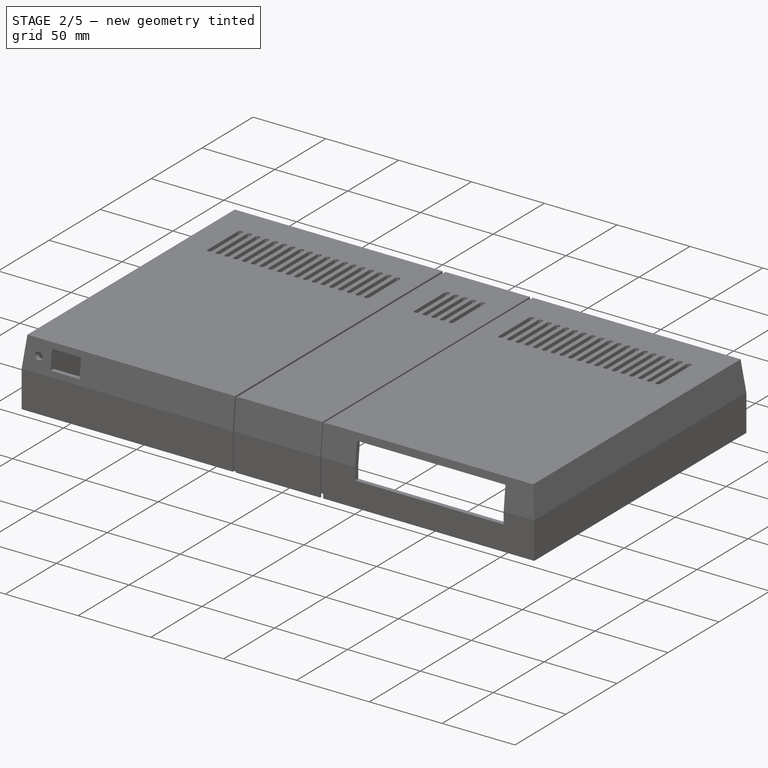
[diagram: stage 2 of 5 — iso view after this stage's code; geometry added in this stage tinted green]
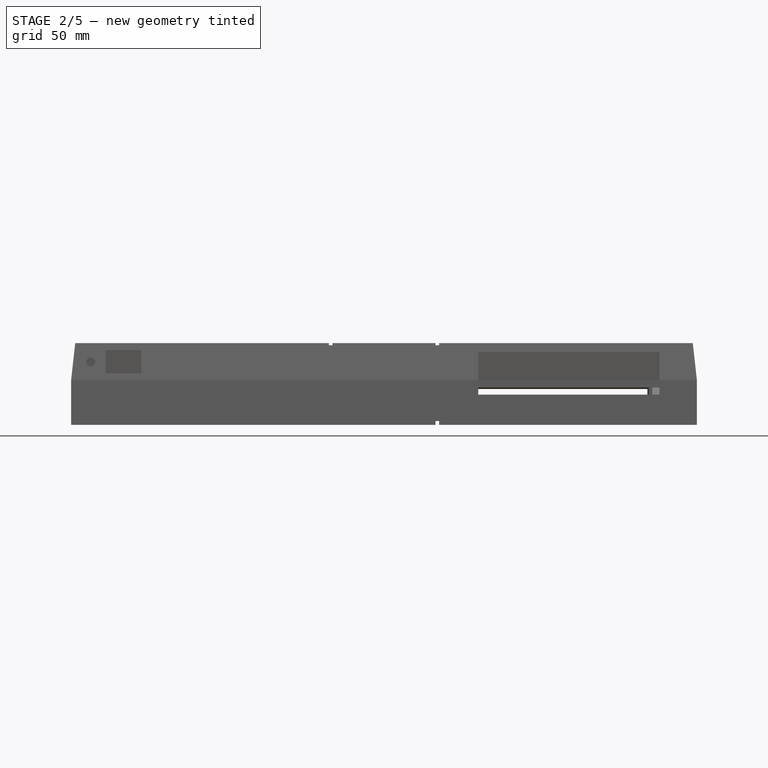
[diagram: stage 2 of 5 — front view after this stage's code; geometry added in this stage tinted green]
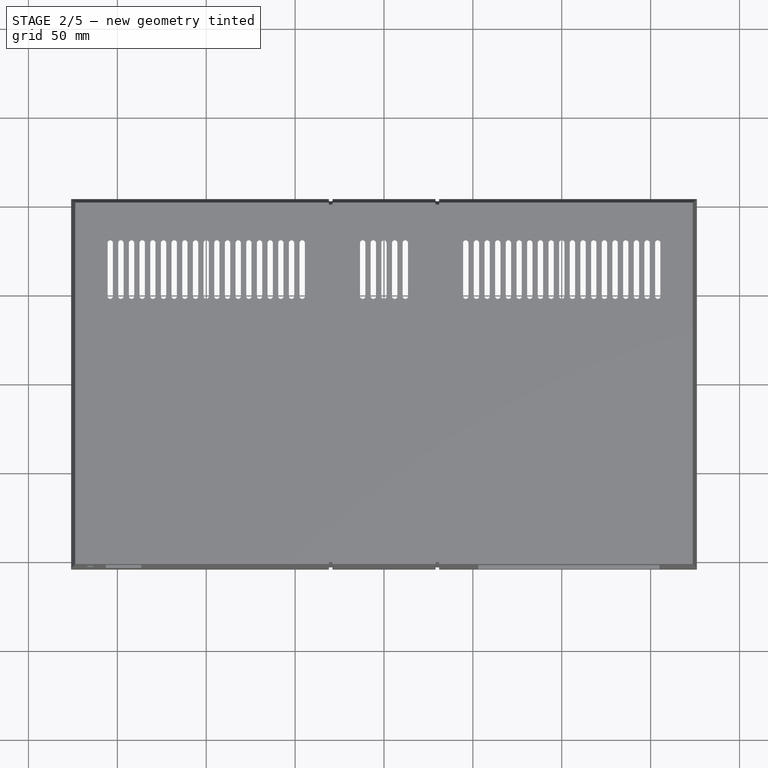
[diagram: stage 2 of 5 — top view after this stage's code; geometry added in this stage tinted green]
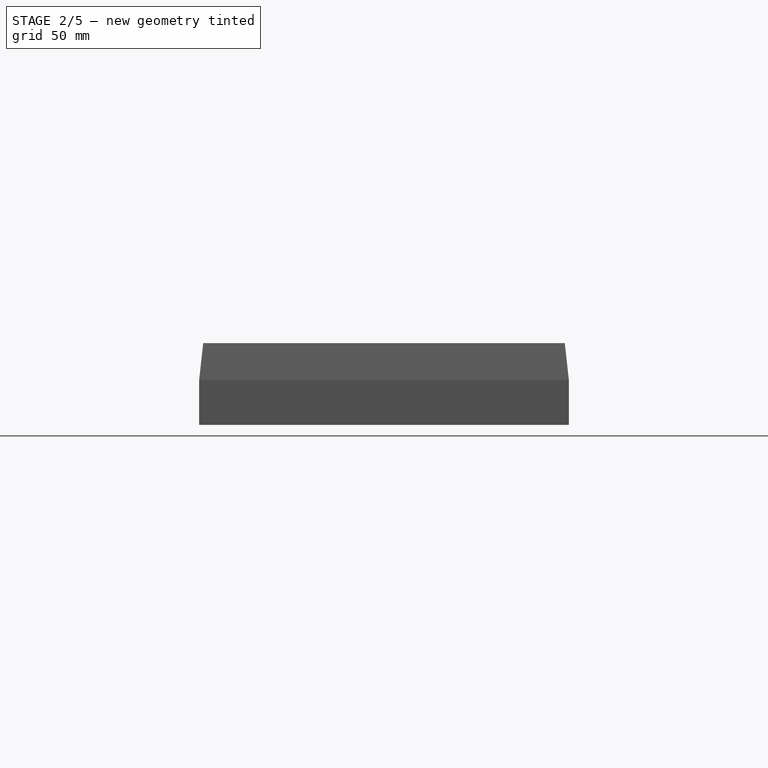
[diagram: stage 2 of 5 — right view after this stage's code; geometry added in this stage tinted green]
FEATURE [Sketcher::SketchObject] Sketch052
  AttachmentOffset = pos=(0,0,-96) rot=(0,0,1;0rad)
  FullyConstrained = false
  MapMode = 5
  Placement = pos=(-96,2.13e-14,-2.13e-14) rot=(0.57735,0.57735,0.57735;2.0944rad)
  Support = -> [YZ_Plane054]
  sketch-geometry (5):
    g0: LineSegment StartX=93 StartY=26.9 StartZ=0 EndX=93 EndY=25.2213 EndZ=0
    g1: LineSegment StartX=101 StartY=23.2 StartZ=0 EndX=101 EndY=26.9 EndZ=0
    g2: LineSegment StartX=101 StartY=26.9 StartZ=0 EndX=93 EndY=26.9 EndZ=0
    g3: LineSegment StartX=93 StartY=25.2213 StartZ=0 EndX=98 EndY=23.2 EndZ=0
    g4: LineSegment StartX=98 StartY=23.2 StartZ=0 EndX=101 EndY=23.2 EndZ=0
  constraints (5):
    c: Coincident(g0,g3)
    c: Coincident(g4,g1)
    c: Coincident(g1,g2)
    c: Coincident(g2,g0)
    c: Coincident(g3,g4)
FEATURE [PartDesign::Pad] Pad026
  Direction = (1,-2e-16,3e-16)
  Length = 8
  Length2 = 10
  Midplane = true
  Placement = pos=(0,0,0) rot=(0.57735,0.57735,0.57735;2.0944rad)
  Profile = -> Sketch052
  ReferenceAxis = -> Sketch052 [N_Axis]
  Refine = true
  Type = 0
FEATURE [Sketcher::SketchObject] Sketch054
  AttachmentOffset = pos=(0,0,-5) rot=(0,0,1;0rad)
  FullyConstrained = true
  MapMode = 5
  Placement = pos=(-6.1e-15,9.6e-15,21.9) rot=(0,0,-1;1.5708rad)
  Support = -> [Pad026]
  sketch-geometry (1):
    g0: Circle CenterX=-97 CenterY=-96 CenterZ=0 NormalX=0 NormalY=0 NormalZ=1 AngleXU=0 Radius=3.25
  constraints (4):
    c: Diameter(g0) = 6.5
    c: Block(g0)
    c: Diameter(g0) = 6.5
    c: Diameter(g0) = 6.5
FEATURE [PartDesign::Pocket] Pocket017  label="Screw head pocket"
  BaseFeature = -> Pad026
  Direction = (4e-16,-6e-16,-1)
  Length = 3.5
  Length2 = 5
  Placement = pos=(0,0,0) rot=(0.57735,0.57735,0.57735;2.0944rad)
  Profile = -> Sketch054
  ReferenceAxis = -> Sketch054 [N_Axis]
  Refine = true
  Reversed = true
  Type = 0
FEATURE [Sketcher::SketchObject] Sketch056
  AttachmentOffset = pos=(0,0,22) rot=(0,0,1;0rad)
  FullyConstrained = false
  MapMode = 5
  Placement = pos=(0,0,22) rot=(0,0,1;0rad)
  Support = -> [XY_Plane054]
  sketch-geometry (1):
    g0: Circle CenterX=-96 CenterY=97 CenterZ=0 NormalX=0 NormalY=0 NormalZ=1 AngleXU=0 Radius=1.25
  constraints (1):
    c: Diameter(g0) = 2.5
FEATURE [PartDesign::Pocket] Pocket018  label="Screw hole"
  BaseFeature = -> Pocket017
  Direction = (0,0,-1)
  Length = 5
  Length2 = 5
  Placement = pos=(0,0,0) rot=(0.57735,0.57735,0.57735;2.0944rad)
  Profile = -> Sketch056
  ReferenceAxis = -> Sketch056 [N_Axis]
  Refine = true
  Reversed = true
  Type = 0
FEATURE [PartDesign::Fillet] Fillet001
  Base = -> Pocket018 [Edge4,Edge3]
  BaseFeature = -> Pocket018
  Placement = pos=(0,0,0) rot=(0.57735,0.57735,0.57735;2.0944rad)
  Radius = 3
  Refine = true
  SupportTransform = false
  UseAllEdges = false
FEATURE [Part::FeaturePython] Screw004  label="3 mmx10-Screw002"  # WARN: FeaturePython — macro-defined, semantics opaque (R4)
  Diameter = 3
  Invert = false
  LeftHanded = false
  Length = 0
  LengthCustom = 10
  MatchOuter = false
  OffsetAngle = 0
  Placement = pos=(-96,97,24.8) rot=(0,1,0;3.14159rad)
  Thread = false
  Type = 49
FEATURE [App::Part] Part007  label="RCA Jack001"
  Group = -> [Part__Feature073,Part__Feature074,Part__Feature075,Part__Feature076,Part__Feature077,Part__Feature078,Part__Feature079,Part__Feature080,Screw004]
  Origin = -> Origin033
  Placement = pos=(9,-264,17) rot=(0,0,1;4.71239rad)
FEATURE [App::DocumentObjectGroup] Group  label="Panel mount components"
  Group = -> [DB9_pins_assy,Part001,LED_5mm,BarrelJack_CUI_PJ_063AH_Horizontal,Document,Part__Feature036,Part__Feature003,Part__Feature034,Part__Feature035,Part__Feature056,RCA_Socket,RCA_Socket001,Part006,Part007]
FEATURE [PartDesign::FeatureBase] Clone018
  BaseFeature = -> Body036
FEATURE [PartDesign::Body] Body040  label="Iface left"
  Group = -> [Clone018]
  Origin = -> Origin058
  Placement = pos=(-122,0,111) rot=(0,-1,0;1.5708rad)
  Tip = -> Clone018
FEATURE [PartDesign::FeatureBase] Clone019
  BaseFeature = -> Body036
FEATURE [PartDesign::Body] Body041  label="Iface right"
  Group = -> [Clone019]
  Origin = -> Origin059
  Placement = pos=(-70,0,-81) rot=(0,1,0;1.5708rad)
  Tip = -> Clone019
FEATURE [Sketcher::SketchObject] Sketch062
  AttachmentOffset = pos=(0,0,-41.1) rot=(0,0,1;0rad)
  FullyConstrained = true
  MapMode = 5
  Placement = pos=(-41.1,9.1e-15,-9.1e-15) rot=(0.57735,0.57735,0.57735;2.0944rad)
  Support = -> [YZ_Plane060]
  sketch-geometry (6):
    g0: Circle CenterX=97 CenterY=15 CenterZ=0 NormalX=0 NormalY=0 NormalZ=1 AngleXU=0 Radius=1.25
    g1: LineSegment StartX=96 StartY=11 StartZ=0 EndX=101 EndY=11 EndZ=0
    g2: LineSegment StartX=101 StartY=11 StartZ=0 EndX=101 EndY=27 EndZ=0
    g3: LineSegment StartX=101 StartY=27 StartZ=0 EndX=93 EndY=17.466 EndZ=0
    g4: LineSegment StartX=93 StartY=14 StartZ=0 EndX=93 EndY=17.466 EndZ=0
    g5: ArcOfCircle CenterX=95.9998 CenterY=13.9998 CenterZ=0 NormalX=0 NormalY=0 NormalZ=1 AngleXU=0 Radius=2.99981 StartAngle=3.14153 EndAngle=4.71245
  constraints (13):
    c: Diameter(g0) = 2.5
    c: Coincident(g1,g2)
    c: Block(g0)
    c: Coincident(g3,g2)
    c: Parallel(g1,g-1)
    c: Coincident(g4,g3)
    c: Coincident(g4,g5)
    c: Coincident(g1,g5)
    c: Block(g5)
    c: Block(g1)
    c: Angle(g3,g2) = 0.698132
    c: Block(g2)
    c: Block(g4)
FEATURE [PartDesign::Pad] Pad029
  Direction = (1,-2e-16,3e-16)
  Length = 3.6
  Length2 = 10
  Midplane = true
  Placement = pos=(0,0,0) rot=(0.57735,0.57735,0.57735;2.0944rad)
  Profile = -> Sketch062
  ReferenceAxis = -> Sketch062 [N_Axis]
  Refine = true
  Type = 0
FEATURE [Part::FeaturePython] Screw005  label="3 mmx10-Screw004"  # WARN: FeaturePython — macro-defined, semantics opaque (R4)
  Diameter = 3
  Invert = false
  LeftHanded = false
  Length = 0
  LengthCustom = 10
  MatchOuter = false
  OffsetAngle = 0
  Placement = pos=(-44.6,97,15) rot=(0,-1,0;1.5708rad)
  Thread = false
  Type = 49
FEATURE [Part::FeaturePython] Screw006  label="3 mmx10-Screw005"  # WARN: FeaturePython — macro-defined, semantics opaque (R4)
  Diameter = 3
  Invert = false
  LeftHanded = false
  Length = 0
  LengthCustom = 10
  MatchOuter = false
  OffsetAngle = 0
  Placement = pos=(-147.4,97,15) rot=(0,1,0;1.5708rad)
  Thread = false
  Type = 49
FEATURE [PartDesign::Pad] Pad030
  BaseFeature = -> Pad029
  Direction = (1,-4e-16,8e-16)
  Length = 1.8
  Length2 = 10
  Placement = pos=(0,0,0) rot=(0.57735,0.57735,0.57735;2.0944rad)
  Profile = -> Pad029 [Face8]
  Refine = true
  Type = 0
FEATURE [PartDesign::Body] Body042  label="Side"
  Group = -> [Sketch062,Pad029,Pad030]
  Origin = -> Origin060
  Tip = -> Pad029
FEATURE [PartDesign::FeatureBase] Clone020
  BaseFeature = -> Body042
FEATURE [PartDesign::Body] Body043  label="KbdRight (clone)"
  Group = -> [Clone020]
  Origin = -> Origin061
  Placement = pos=(192,0,0) rot=(0,0,1;0rad)
  Tip = -> Clone020
FEATURE [PartDesign::FeatureBase] Clone021
  BaseFeature = -> Body042
FEATURE [PartDesign::Body] Body044  label="Iface left (clone)"
  Group = -> [Clone021]
  Origin = -> Origin062
  Placement = pos=(-109.8,0,0) rot=(0,0,1;0rad)
  Tip = -> Clone021
FEATURE [PartDesign::FeatureBase] Clone022
  BaseFeature = -> Body042
FEATURE [PartDesign::FeatureBase] Clone023
  BaseFeature = -> Body040
  Placement = pos=(-122,0,111) rot=(0,-1,0;1.5708rad)
FEATURE [PartDesign::Body] Body046  label="Kbd left"
  Group = -> [Clone023]
  Origin = -> Origin064
  Placement = pos=(192,0,0) rot=(0,0,1;0rad)
  Tip = -> Clone023
FEATURE [PartDesign::FeatureBase] Clone024
  BaseFeature = -> Body041
  Placement = pos=(-70,0,-81) rot=(0,1,0;1.5708rad)
FEATURE [PartDesign::Body] Body047  label="Kbd right"
  Group = -> [Clone024]
  Origin = -> Origin065
  Placement = pos=(192,0,0) rot=(0,0,1;0rad)
  Tip = -> Clone024
FEATURE [App::DocumentObjectGroup] Group004  label="Panel screw mounts"
  Group = -> [Body036,Body038,Body040,Body041,Body046,Body047]
FEATURE [PartDesign::FeatureBase] Clone025
  BaseFeature = -> Body042
FEATURE [Sketcher::SketchObject] Sketch063
  ExternalGeometry = -> [Pad029]
  FullyConstrained = true
  MapMode = 5
  Placement = pos=(-39.3,2.59e-14,-1.57e-14) rot=(0.57735,0.57735,0.57735;2.0944rad)
  Support = -> [Clone025]
  sketch-geometry (6):
    g0: LineSegment StartX=101 StartY=27 StartZ=0 EndX=93 EndY=17.466 EndZ=0
    g1: LineSegment StartX=93 StartY=17.466 StartZ=0 EndX=93 EndY=14 EndZ=0
    g2: ArcOfCircle CenterX=96 CenterY=14 CenterZ=0 NormalX=0 NormalY=0 NormalZ=1 AngleXU=0 Radius=3 StartAngle=3.14159 EndAngle=4.71239
    g3: LineSegment StartX=96 StartY=11 StartZ=0 EndX=101 EndY=11 EndZ=0
    g4: LineSegment StartX=101 StartY=11 StartZ=0 EndX=101 EndY=27 EndZ=0
    g5: Circle CenterX=97 CenterY=15 CenterZ=0 NormalX=0 NormalY=0 NormalZ=1 AngleXU=0 Radius=1.25
  constraints (12):
    c: Coincident(g-7,g0)
    c: Coincident(g0,g-4)
    c: Coincident(g0,g1)
    c: Coincident(g1,g-5)
    c: Tangent(g1,g2) = -1.5708
    c: Coincident(g2,g-6)
    c: Coincident(g2,g3)
    c: Coincident(g3,g-7)
    c: Coincident(g3,g4)
    c: Coincident(g4,g0)
    c: Diameter(g5) = 2.5
    c: Block(g5)
FEATURE [PartDesign::Pad] Pad031
  BaseFeature = -> Clone025
  Direction = (1,-9e-16,4e-16)
  Length = 3
  Length2 = 10
  Profile = -> Sketch063
  ReferenceAxis = -> Sketch063 [N_Axis]
  Refine = true
  Type = 0
FEATURE [PartDesign::Fillet] Fillet003
  Base = -> Pad031 [Edge16,Edge13,Edge15,Edge14]
  BaseFeature = -> Pad031
  Radius = 2
  Refine = true
  SupportTransform = false
  UseAllEdges = false
FEATURE [PartDesign::Body] Body048  label="Iface right (clone)"
  Group = -> [Clone025,Sketch063,Pad031,Fillet003]
  Origin = -> Origin066
  Tip = -> Fillet003
FEATURE [Sketcher::SketchObject] Sketch064
  ExternalGeometry = -> [Clone022]
  FullyConstrained = true
  MapMode = 5
  Placement = pos=(-42.9,2.83e-14,-1.72e-14) rot=(-0.57735,0.57735,0.57735;4.18879rad)
  Support = -> [Clone022]
  sketch-geometry (6):
    g0: Circle CenterX=-97 CenterY=15 CenterZ=0 NormalX=0 NormalY=0 NormalZ=1 AngleXU=0 Radius=1.25
    g1: LineSegment StartX=-101 StartY=27 StartZ=0 EndX=-93 EndY=17.466 EndZ=0
    g2: LineSegment StartX=-93 StartY=17.466 StartZ=0 EndX=-93 EndY=14 EndZ=0
    g3: ArcOfCircle CenterX=-96 CenterY=14 CenterZ=0 NormalX=0 NormalY=0 NormalZ=1 AngleXU=0 Radius=3 StartAngle=4.71239 EndAngle=6.28319
    g4: LineSegment StartX=-96 StartY=11 StartZ=0 EndX=-101 EndY=11 EndZ=0
    g5: LineSegment StartX=-101 StartY=11 StartZ=0 EndX=-101 EndY=27 EndZ=0
  constraints (12):
    c: Coincident(g0,g-5)
    c: Tangent(g0,g-5)
    c: Coincident(g-4,g1)
    c: Coincident(g1,g-8)
    c: Coincident(g1,g2)
    c: Coincident(g2,g-8)
    c: Tangent(g2,g3) = 1.5708
    c: Coincident(g3,g-7)
    c: Coincident(g3,g4)
    c: Coincident(g4,g-6)
    c: Coincident(g4,g5)
    c: Coincident(g5,g1)
FEATURE [PartDesign::Pad] Pad032
  BaseFeature = -> Clone022
  Direction = (-1,9e-16,-4e-16)
  Length = 3
  Length2 = 10
  Profile = -> Sketch064
  ReferenceAxis = -> Sketch064 [N_Axis]
  Refine = true
  Type = 0
FEATURE [PartDesign::Fillet] Fillet004
  Base = -> Pad032 [Edge16,Edge13,Edge15,Edge14]
  BaseFeature = -> Pad032
  Radius = 2
  Refine = true
  SupportTransform = false
  UseAllEdges = false
FEATURE [PartDesign::FeatureBase] BaseFeature001
  BaseFeature = -> Clone029
FEATURE [Sketcher::SketchObject] Sketch076
  ExternalGeometry = -> [BaseFeature001]
  FullyConstrained = false
  MapMode = 5
  Placement = pos=(30,0,0) rot=(0.57735,0.57735,0.57735;2.0944rad)
  Support = -> [BaseFeature001]
  sketch-geometry (6):
    g0: LineSegment StartX=-102.8 StartY=5 StartZ=0 EndX=-102.8 EndY=31.0997 EndZ=0
    g1: LineSegment StartX=-102.8 StartY=31.0997 StartZ=0 EndX=-100.611 EndY=50.8 EndZ=0
    g2: LineSegment StartX=-100.611 StartY=50.8 StartZ=0 EndX=100.611 EndY=50.8 EndZ=0
    g3: LineSegment StartX=100.611 StartY=50.8 StartZ=0 EndX=102.8 EndY=31.0997 EndZ=0
    g4: LineSegment StartX=102.8 StartY=31.0997 StartZ=0 EndX=102.8 EndY=5 EndZ=0
    g5: LineSegment StartX=102.8 StartY=5 StartZ=0 EndX=-102.8 EndY=5 EndZ=0
  constraints (13):
    c: Coincident(g0,g-5)
    c: Vertical(g0)
    c: Coincident(g0,g1)
    c: Coincident(g1,g-4)
    c: Coincident(g1,g2)
    c: Coincident(g2,g-6)
    c: Coincident(g2,g3)
    c: Coincident(g3,g-7)
    c: Coincident(g3,g4)
    c: Vertical(g4)
    c: Coincident(g4,g5)
    c: Horizontal(g5)
    c: Coincident(g0,g5)
FEATURE [PartDesign::Pocket] Pocket027
  BaseFeature = -> BaseFeature001
  Direction = (-1,0,0)
  Length = 1
  Length2 = 5
  Profile = -> Sketch076
  ReferenceAxis = -> Sketch076 [N_Axis]
  Refine = true
  Type = 0
FEATURE [Sketcher::SketchObject] Sketch078
  ExternalGeometry = -> [Pocket027]
  FullyConstrained = true
  MapMode = 5
  Placement = pos=(29,-3.4e-15,5.6e-15) rot=(0.57735,0.57735,0.57735;2.0944rad)
  Support = -> [Pocket027]
  sketch-geometry (6):
    g0: LineSegment StartX=-103 StartY=4.64593 StartZ=0 EndX=-103 EndY=31.1108 EndZ=0
    g1: LineSegment StartX=-103 StartY=31.1108 StartZ=0 EndX=-100.79 EndY=51 EndZ=0
    g2: LineSegment StartX=-100.79 StartY=51 StartZ=0 EndX=100.79 EndY=51 EndZ=0
    g3: LineSegment StartX=100.79 StartY=51 StartZ=0 EndX=103 EndY=31.1108 EndZ=0
    g4: LineSegment StartX=103 StartY=31.1108 StartZ=0 EndX=103 EndY=4.64593 EndZ=0
    g5: LineSegment StartX=103 StartY=4.64593 StartZ=0 EndX=-103 EndY=4.64593 EndZ=0
  constraints (18):
    c: Vertical(g0)
    c: Coincident(g0,g1)
    c: Coincident(g1,g2)
    c: Horizontal(g2)
    c: Coincident(g2,g3)
    c: Coincident(g3,g4)
    c: Vertical(g4)
    c: Coincident(g4,g5)
    c: Coincident(g5,g0)
    c: Horizontal(g5)
    c: Parallel(g3,g-6)
    c: Parallel(g1,g-4)
    c: Distance(g0,g-3) = 1
    c: Distance(g1,g-4) = 1
    c: Distance(g1,g-5) = 1
    c: Distance(g2,g-6) = 1
    c: Distance(g4,g-7) = 1
    c: Block(g5)
FEATURE [PartDesign::Pocket] Pocket029
  BaseFeature = -> Pocket027
  Direction = (-1,0,0)
  Length = 1.1
  Length2 = 5
  Profile = -> Sketch078
  ReferenceAxis = -> Sketch078 [N_Axis]
  Refine = true
  Type = 0
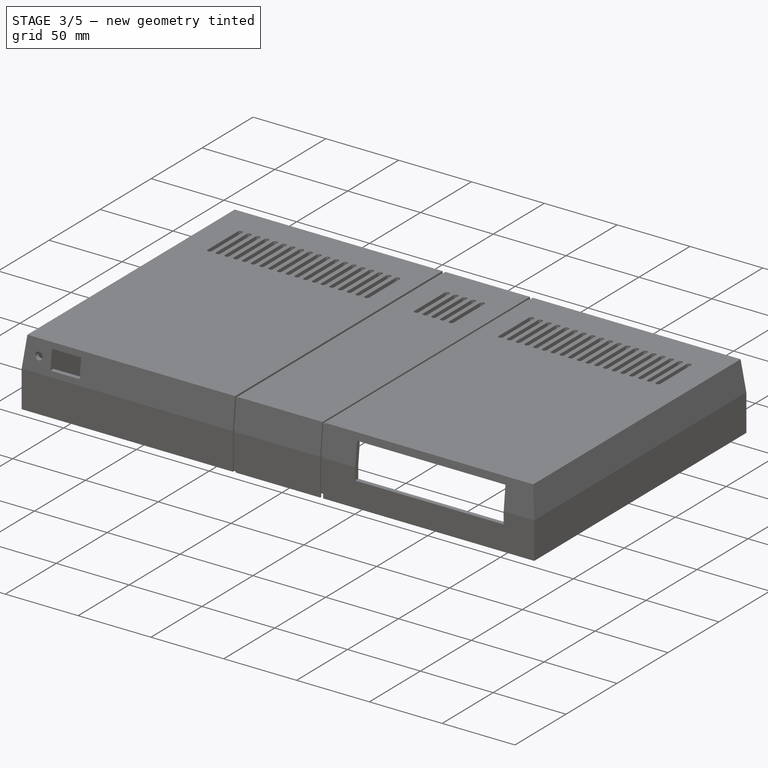
[diagram: stage 3 of 5 — iso view after this stage's code; geometry added in this stage tinted green]
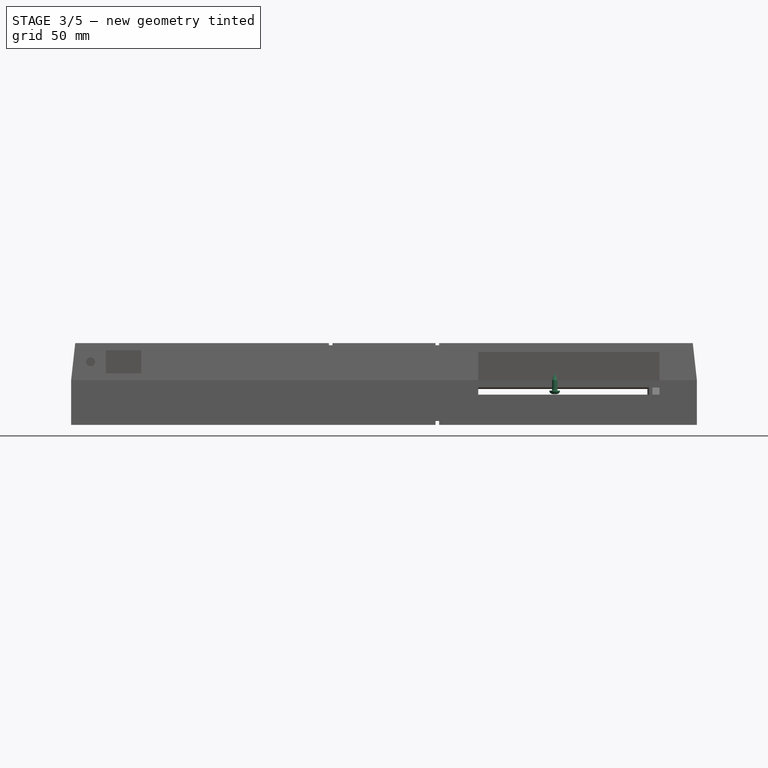
[diagram: stage 3 of 5 — front view after this stage's code; geometry added in this stage tinted green]
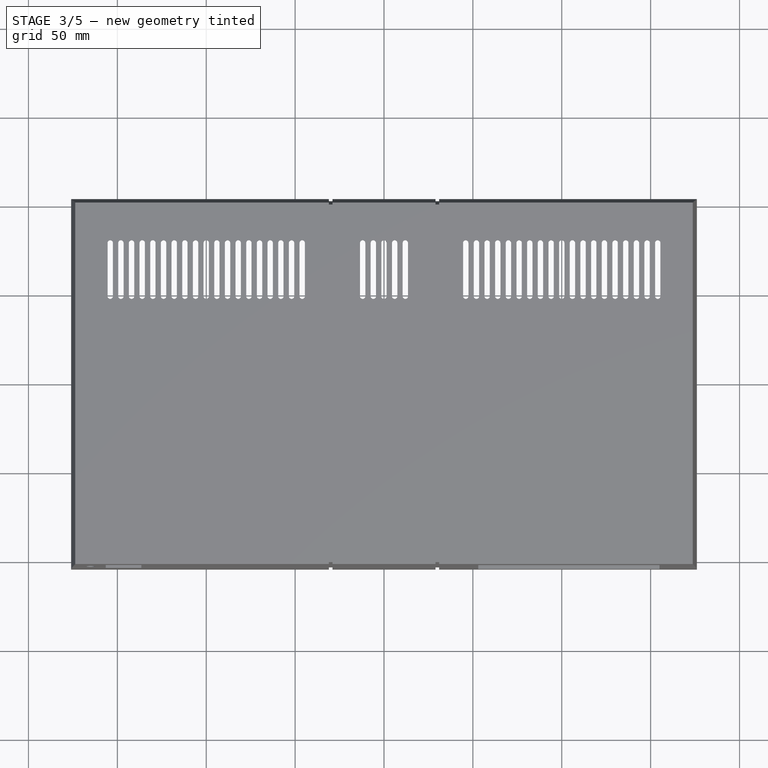
[diagram: stage 3 of 5 — top view after this stage's code; geometry added in this stage tinted green]
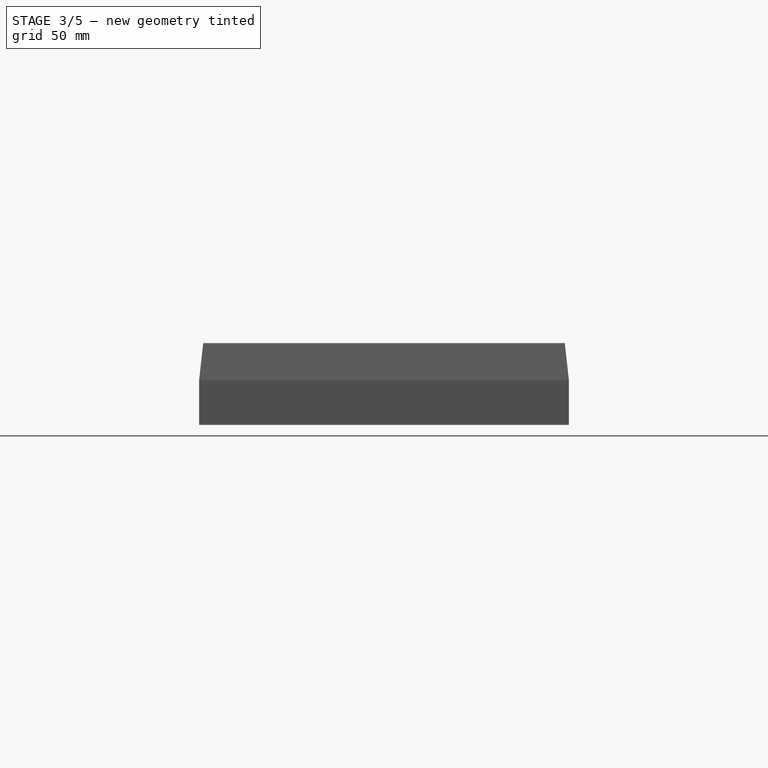
[diagram: stage 3 of 5 — right view after this stage's code; geometry added in this stage tinted green]
FEATURE [PartDesign::Body] Body011  label="AnotherPanelClone"
  Group = -> [Clone]
  Origin = -> Origin023
  Placement = pos=(192,0,0) rot=(0,0,1;0rad)
  Tip = -> Clone
FEATURE [App::Part] Part004  label="AnotherPanel"
  Group = -> [Body010,Body011]
  Origin = -> Origin021
FEATURE [Sketcher::SketchObject] Sketch031
  AttachmentOffset = pos=(0,0,-104) rot=(0,0,1;0rad)
  FullyConstrained = true
  MapMode = 5
  Placement = pos=(0,104,2.31e-14) rot=(1,0,0;1.5708rad)
  Support = -> [XZ_Plane025]
  sketch-geometry (4):
    g0: LineSegment StartX=-149 StartY=27 StartZ=0 EndX=-43 EndY=27 EndZ=0
    g1: LineSegment StartX=-43 StartY=27 StartZ=0 EndX=-43 EndY=6 EndZ=0
    g2: LineSegment StartX=-43 StartY=6 StartZ=0 EndX=-149 EndY=6 EndZ=0
    g3: LineSegment StartX=-149 StartY=6 StartZ=0 EndX=-149 EndY=27 EndZ=0
  constraints (12):
    c: Coincident(g0,g1)
    c: Coincident(g1,g2)
    c: Coincident(g2,g3)
    c: Coincident(g3,g0)
    c: Horizontal(g0)
    c: Horizontal(g2)
    c: Vertical(g1)
    c: Vertical(g3)
    c: Block(g3)
    c: Block(g0)
    c: DistanceX(g0,g0) = 106
    c: DistanceY(g1,g1) = 21
FEATURE [PartDesign::Pad] Pad015
  Direction = (0,-1,-2e-16)
  Length = 3
  Length2 = 10
  Placement = pos=(0,0,0) rot=(1,0,0;1.5708rad)
  Profile = -> Sketch031
  ReferenceAxis = -> Sketch031 [N_Axis]
  Refine = true
  Type = 0
FEATURE [Sketcher::SketchObject] Sketch032
  FullyConstrained = true
  MapMode = 5
  Placement = pos=(0,0,6) rot=(1,0,0;3.14159rad)
  Support = -> [Pad015]
  sketch-geometry (7):
    g0: LineSegment StartX=-148.9 StartY=-104.2 StartZ=0 EndX=-148.9 EndY=-103.5 EndZ=0
    g1: LineSegment StartX=-148.9 StartY=-103.5 StartZ=0 EndX=-147.9 EndY=-102.5 EndZ=0
    g2: LineSegment StartX=-147.9 StartY=-102.5 StartZ=0 EndX=-148.9 EndY=-101.5 EndZ=0
    g3: LineSegment StartX=-148.9 StartY=-101.5 StartZ=0 EndX=-148.9 EndY=-100.8 EndZ=0
    g4: LineSegment StartX=-148.9 StartY=-100.8 StartZ=0 EndX=-149.2 EndY=-100.8 EndZ=0
    g5: LineSegment StartX=-149.2 StartY=-100.8 StartZ=0 EndX=-149.2 EndY=-104.2 EndZ=0
    g6: LineSegment StartX=-149.2 StartY=-104.2 StartZ=0 EndX=-148.9 EndY=-104.2 EndZ=0
  constraints (17):
    c: Vertical(g0)
    c: Coincident(g0,g1)
    c: Coincident(g2,g3)
    c: Vertical(g3)
    c: Coincident(g3,g4)
    c: Horizontal(g4)
    c: Coincident(g4,g5)
    c: Vertical(g5)
    c: Coincident(g5,g6)
    c: Coincident(g6,g0)
    c: Angle(g2,g3) = 2.35619
    c: Coincident(g1,g2)
    c: Angle(g2,g1) = 1.5708
    c: Equal(g0,g3)
    c: Block(g6)
    c: Block(g4)
    c: DistanceX(g0,g1) = 1
FEATURE [PartDesign::SubtractivePipe] SubtractivePipe001
  AuxilleryCurvelinear = true
  AuxillerySpineTangent = false
  BaseFeature = -> Pad015
  Binormal = (0,0,0)
  Mode = 0
  Placement = pos=(0,0,0) rot=(1,0,0;1.5708rad)
  Profile = -> Sketch032 [Edge6]
  Refine = true
  Spine = -> Pad015 [Edge12,Edge4,Edge7]
  SpineTangent = false
  Transformation = 0
  Transition = 2
FEATURE [Sketcher::SketchObject] Sketch035
  FullyConstrained = false
  MapMode = 5
  Placement = pos=(0,101,0) rot=(1,0,0;1.5708rad)
  Support = -> [SubtractivePipe001]
  sketch-geometry (4):
    g0: LineSegment StartX=-149 StartY=9 StartZ=0 EndX=-43 EndY=9 EndZ=0
    g1: LineSegment StartX=-43 StartY=9 StartZ=0 EndX=-43 EndY=5.9 EndZ=0
    g2: LineSegment StartX=-43 StartY=5.9 StartZ=0 EndX=-149 EndY=5.9 EndZ=0
    g3: LineSegment StartX=-149 StartY=5.9 StartZ=0 EndX=-149 EndY=9 EndZ=0
  constraints (8):
    c: Coincident(g0,g1)
    c: Coincident(g1,g2)
    c: Coincident(g2,g3)
    c: Coincident(g3,g0)
    c: Horizontal(g0)
    c: Horizontal(g2)
    c: Vertical(g1)
    c: Vertical(g3)
FEATURE [PartDesign::Pocket] Pocket013
  BaseFeature = -> SubtractivePipe001
  Direction = (0,1,-2e-16)
  Length = 1.5
  Length2 = 5
  Placement = pos=(0,0,0) rot=(1,0,0;1.5708rad)
  Profile = -> Sketch035
  ReferenceAxis = -> Sketch035 [N_Axis]
  Refine = true
  Type = 0
FEATURE [PartDesign::Body] Body029  label="Body Lock"
  Group = -> [Sketch044,Pad022,Sketch045,Pocket016]
  Origin = -> Origin047
  Tip = -> Pocket016
FEATURE [Sketcher::SketchObject] Sketch046
  AttachmentOffset = pos=(0,0,-147) rot=(0,0,1;0rad)
  FullyConstrained = true
  MapMode = 5
  Placement = pos=(-147,3.26e-14,-3.26e-14) rot=(0.57735,0.57735,0.57735;2.0944rad)
  Support = -> [YZ_Plane048]
  sketch-geometry (8):
    g0: Circle CenterX=97.5 CenterY=27 CenterZ=0 NormalX=0 NormalY=0 NormalZ=1 AngleXU=0 Radius=1
    g1: LineSegment StartX=101 StartY=26.9 StartZ=0 EndX=97.5 EndY=30.4 EndZ=0
    g2: LineSegment StartX=97.5 StartY=30.4 StartZ=0 EndX=94.1 EndY=27 EndZ=0
    g3: LineSegment StartX=94.1 StartY=27 StartZ=0 EndX=101 EndY=20.1 EndZ=0
    g4: LineSegment StartX=101 StartY=20.1 StartZ=0 EndX=101 EndY=26.9 EndZ=0
    g5: LineSegment StartX=97.5 StartY=31.5841 StartZ=0 EndX=97.5 EndY=22.5841 EndZ=0
    g6: LineSegment StartX=94 StartY=27 StartZ=0 EndX=102 EndY=27 EndZ=0
    g7: LineSegment StartX=101.953 StartY=26.9 StartZ=0 EndX=96.4674 EndY=26.9 EndZ=0
  constraints (19):
    c: Diameter(g0) = 2
    c: Coincident(g1,g2)
    c: Coincident(g2,g3)
    c: Coincident(g3,g4)
    c: Coincident(g4,g1)
    c: Angle(g1,g4) = 2.35619
    c: Angle(g2,g1) = 1.5708
    c: Parallel(g3,g1)
    c: Parallel(g4,g-2)
    c: DistanceX(g1) = 101
    c: Vertical(g5)
    c: PointOnObject(g1,g5)
    c: PointOnObject(g2,g6)
    c: Block(g7)
    c: PointOnObject(g1,g7)
    c: Block(g6)
    c: PointOnObject(g0,g5)
    c: PointOnObject(g0,g6)
    c: Block(g5)
FEATURE [PartDesign::Pad] Pad023
  Direction = (1,-2e-16,3e-16)
  Length = 3.8
  Length2 = 10
  Midplane = true
  Placement = pos=(0,0,0) rot=(0.57735,0.57735,0.57735;2.0944rad)
  Profile = -> Sketch046
  ReferenceAxis = -> Sketch046 [N_Axis]
  Refine = true
  Type = 0
FEATURE [Sketcher::SketchObject] Sketch047
  AttachmentOffset = pos=(0,0,-143) rot=(0,0,1;0rad)
  FullyConstrained = true
  MapMode = 5
  Placement = pos=(-143,3.18e-14,-3.18e-14) rot=(0.57735,0.57735,0.57735;2.0944rad)
  Support = -> [YZ_Plane049]
  sketch-geometry (9):
    g0: Circle CenterX=97.5 CenterY=27 CenterZ=0 NormalX=0 NormalY=0 NormalZ=1 AngleXU=0 Radius=1
    g1: LineSegment StartX=94.1 StartY=27 StartZ=0 EndX=101 EndY=33.9 EndZ=0
    g2: LineSegment StartX=94.1 StartY=27 StartZ=0 EndX=97.5 EndY=23.6 EndZ=0
    g3: LineSegment StartX=97.5 StartY=23.6 StartZ=0 EndX=101 EndY=27.1 EndZ=0
    g4: LineSegment StartX=101 StartY=27.1 StartZ=0 EndX=101 EndY=33.9 EndZ=0
    g5: LineSegment StartX=96.1523 StartY=27 StartZ=0 EndX=102.1 EndY=27 EndZ=0
    g6: LineSegment StartX=97.5 StartY=22 StartZ=0 EndX=97.5 EndY=31.1 EndZ=0
    g7: LineSegment StartX=101 StartY=32.2628 StartZ=0 EndX=101 EndY=26.9085 EndZ=0
    g8: LineSegment StartX=101.2 StartY=27.3 StartZ=0 EndX=98.4 EndY=24.5 EndZ=0
  constraints (21):
    c: Diameter(g0) = 2
    c: Coincident(g1,g2)
    c: Coincident(g2,g3)
    c: Coincident(g3,g4)
    c: Vertical(g4)
    c: Coincident(g1,g4)
    c: Angle(g1,g4) = 0.785398
    c: Parallel(g3,g1)
    c: Horizontal(g5)
    c: Block(g5)
    c: PointOnObject(g1,g5)
    c: PointOnObject(g2,g6)
    c: Angle(g2,g1) = 1.5708
    c: Vertical(g7)
    c: PointOnObject(g3,g7)
    c: Block(g8)
    c: PointOnObject(g2,g8)
    c: Block(g7)
    c: Block(g6)
    c: PointOnObject(g0,g5)
    c: PointOnObject(g0,g6)
FEATURE [PartDesign::Pad] Pad024
  Direction = (1,-2e-16,3e-16)
  Length = 3.8
  Length2 = 10
  Midplane = true
  Placement = pos=(0,0,0) rot=(0.57735,0.57735,0.57735;2.0944rad)
  Profile = -> Sketch047
  ReferenceAxis = -> Sketch047 [N_Axis]
  Refine = true
  Type = 0
FEATURE [Sketcher::SketchObject] Sketch048
  FullyConstrained = false
  MapMode = 5
  Placement = pos=(0,0,0) rot=(1,0,0;1.5708rad)
  Support = -> [XZ_Plane049]
  sketch-geometry (2):
    g0: LineSegment StartX=-96 StartY=32 StartZ=0 EndX=-96 EndY=1.25354 EndZ=0
    g1: LineSegment StartX=-147 StartY=21.0402 StartZ=0 EndX=-96 EndY=21.0402 EndZ=0
  constraints (5):
    c: Vertical(g0)
    c: Block(g0)
    c: PointOnObject(g1,g0)
    c: Horizontal(g1)
    c: DistanceX(g1,g1) = 51
FEATURE [PartDesign::Chamfer] Chamfer001
  Angle = 45
  Base = -> Pad023 [Edge2,Edge5]
  BaseFeature = -> Pad023
  ChamferType = 0
  FlipDirection = false
  Placement = pos=(0,0,0) rot=(0.57735,0.57735,0.57735;2.0944rad)
  Refine = true
  Size = 1
  Size2 = 1
  SupportTransform = false
  UseAllEdges = false
FEATURE [PartDesign::Body] Body032  label="Top Right (clone)"
  Group = -> [Clone012]
  Origin = -> Origin050
  Placement = pos=(102,0,0) rot=(0,0,1;0rad)
  Tip = -> Clone012
FEATURE [PartDesign::Chamfer] Chamfer002
  Angle = 45
  Base = -> Pad024 [Edge1,Edge8]
  BaseFeature = -> Pad024
  ChamferType = 0
  FlipDirection = false
  Placement = pos=(0,0,0) rot=(0.57735,0.57735,0.57735;2.0944rad)
  Refine = true
  Size = 1
  Size2 = 1
  SupportTransform = false
  UseAllEdges = false
FEATURE [PartDesign::Body] Body031  label="Body Hinge Left"
  Group = -> [Sketch047,Pad024,Sketch048,Chamfer002]
  Origin = -> Origin049
  Tip = -> Chamfer002
FEATURE [PartDesign::FeatureBase] Clone013
  BaseFeature = -> Body031
FEATURE [PartDesign::Body] Body033  label="Body Hinge Right (clone)"
  Group = -> [Clone013]
  Origin = -> Origin051
  Placement = pos=(94,0,0) rot=(0,0,1;0rad)
  Tip = -> Clone013
FEATURE [Sketcher::SketchObject] Sketch049
  ExternalGeometry = -> [Pocket013]
  FullyConstrained = true
  MapMode = 5
  Placement = pos=(0,101,0) rot=(1,0,0;1.5708rad)
  Support = -> [Pocket013]
  sketch-geometry (20):
    g0: ArcOfCircle CenterX=-146.9 CenterY=24.9 CenterZ=0 NormalX=0 NormalY=0 NormalZ=1 AngleXU=0 Radius=2 StartAngle=1.5708 EndAngle=3.14159
    g1: LineSegment StartX=-146.9 StartY=26.9 StartZ=0 EndX=-45.1 EndY=26.9 EndZ=0
    g2: ArcOfCircle CenterX=-45.1 CenterY=24.9 CenterZ=0 NormalX=0 NormalY=0 NormalZ=1 AngleXU=0 Radius=2 StartAngle=7e-16 EndAngle=1.5708
    g3: LineSegment StartX=-43.1 StartY=24.9 StartZ=0 EndX=-43.1 EndY=11 EndZ=0
    g4: ArcOfCircle CenterX=-45.1 CenterY=11 CenterZ=0 NormalX=0 NormalY=0 NormalZ=1 AngleXU=0 Radius=2 StartAngle=4.71239 EndAngle=6.28319
    g5: LineSegment StartX=-45.1 StartY=9 StartZ=0 EndX=-146.9 EndY=9 EndZ=0
    g6: ArcOfCircle CenterX=-146.9 CenterY=11 CenterZ=0 NormalX=0 NormalY=0 NormalZ=1 AngleXU=0 Radius=2 StartAngle=3.14159 EndAngle=4.71239
    g7: LineSegment StartX=-148.9 StartY=11 StartZ=0 EndX=-148.9 EndY=24.9 EndZ=0
    g8: GeomPoint X=-148.9 Y=26.9 Z=0
    g9: GeomPoint X=-43.1 Y=9 Z=0
    g10: ArcOfCircle CenterX=-146.9 CenterY=24.9 CenterZ=0 NormalX=0 NormalY=0 NormalZ=1 AngleXU=0 Radius=1 StartAngle=1.5708 EndAngle=3.14159
    g11: LineSegment StartX=-146.9 StartY=25.9 StartZ=0 EndX=-45.1 EndY=25.9 EndZ=0
    g12: ArcOfCircle CenterX=-45.1 CenterY=24.9 CenterZ=0 NormalX=0 NormalY=0 NormalZ=1 AngleXU=0 Radius=1 StartAngle=5e-16 EndAngle=1.5708
    g13: LineSegment StartX=-44.1 StartY=24.9 StartZ=0 EndX=-44.1 EndY=11 EndZ=0
    g14: ArcOfCircle CenterX=-45.1 CenterY=11 CenterZ=0 NormalX=0 NormalY=0 NormalZ=1 AngleXU=0 Radius=1 StartAngle=4.71239 EndAngle=6.28319
    g15: LineSegment StartX=-45.1 StartY=10 StartZ=0 EndX=-146.9 EndY=10 EndZ=0
    g16: ArcOfCircle CenterX=-146.9 CenterY=11 CenterZ=0 NormalX=0 NormalY=0 NormalZ=1 AngleXU=0 Radius=1 StartAngle=3.14159 EndAngle=4.71239
    g17: LineSegment StartX=-147.9 StartY=11 StartZ=0 EndX=-147.9 EndY=24.9 EndZ=0
    g18: GeomPoint X=-147.9 Y=25.9 Z=0
    g19: GeomPoint X=-44.1 Y=10 Z=0
  constraints (45):
    c: Tangent(g0,g1) = 1.5708
    c: Tangent(g1,g2) = 1.5708
    c: Tangent(g2,g3) = 1.5708
    c: Tangent(g3,g4) = 1.5708
    c: Tangent(g4,g5) = 1.5708
    c: Tangent(g5,g6) = 1.5708
    c: Tangent(g6,g7) = 1.5708
    c: Tangent(g7,g0) = 1.5708
    c: Horizontal(g1)
    c: Horizontal(g5)
    c: Vertical(g3)
    c: Vertical(g7)
    c: Equal(g0,g2)
    c: Equal(g2,g4)
    c: Equal(g4,g6)
    c: PointOnObject(g8,g1)
    c: PointOnObject(g8,g7)
    c: PointOnObject(g9,g3)
    c: PointOnObject(g9,g5)
    c: Coincident(g8,g-4)
    c: PointOnObject(g5,g-5)
    c: PointOnObject(g2,g-6)
    c: Radius(g0) = 2
    c: Tangent(g10,g11) = 1.5708
    c: Tangent(g11,g12) = 1.5708
    c: Tangent(g12,g13) = 1.5708
    c: Tangent(g13,g14) = 1.5708
    c: Tangent(g14,g15) = 1.5708
    c: Tangent(g15,g16) = 1.5708
    c: Tangent(g16,g17) = 1.5708
    c: Tangent(g17,g10) = 1.5708
    c: Horizontal(g11)
    c: Horizontal(g15)
    c: Vertical(g13)
    c: Vertical(g17)
    c: Equal(g10,g12)
    c: Equal(g12,g14)
    c: Equal(g14,g16)
    c: PointOnObject(g18,g11)
    c: PointOnObject(g18,g17)
    c: PointOnObject(g19,g13)
    c: PointOnObject(g19,g15)
    c: Radius(g10) = 1
    c: Coincident(g10,g0)
    c: Coincident(g14,g4)
FEATURE [PartDesign::FeatureBase] Clone014
  BaseFeature = -> Body030
FEATURE [PartDesign::Body] Body034  label="Central (clone)"
  Group = -> [Clone014]
  Origin = -> Origin052
  Placement = pos=(51,0,0) rot=(0,0,1;0rad)
  Tip = -> Clone014
FEATURE [App::DocumentObjectGroup] Group003  label="Body Hinges"
  Group = -> [Body031,Body033]
FEATURE [PartDesign::FeatureBase] Clone015
  BaseFeature = -> Body030
FEATURE [PartDesign::Body] Body035  label="Bottom Left"
  Group = -> [Clone015]
  Origin = -> Origin053
  Placement = pos=(-294,0,35.9) rot=(0,1,0;3.14159rad)
  Tip = -> Clone015
FEATURE [App::DocumentObjectGroup] Group002  label="Panel Hinges"
  Group = -> [Body030,Body032,Body034,Body035]
FEATURE [Part::FeaturePython] Screw002  label="3 mmx10-Screw"  # WARN: FeaturePython — macro-defined, semantics opaque (R4)
  Diameter = 3
  Invert = false
  LeftHanded = false
  Length = 0
  LengthCustom = 10
  MatchOuter = false
  OffsetAngle = 0
  Placement = pos=(-96,97,25.3) rot=(0,1,0;3.14159rad)
  Thread = false
  Type = 49
FEATURE [Sketcher::SketchObject] Sketch055
  AttachmentOffset = pos=(0,0,-96) rot=(0,0,1;0rad)
  FullyConstrained = false
  MapMode = 5
  Placement = pos=(-96,2.13e-14,-2.13e-14) rot=(0.57735,0.57735,0.57735;2.0944rad)
  Support = -> [YZ_Plane055]
  sketch-geometry (6):
    g0: LineSegment StartX=101.7 StartY=27.1 StartZ=0 EndX=92.2306 EndY=27.1 EndZ=0
    g1: LineSegment StartX=101 StartY=36 StartZ=0 EndX=101 EndY=26.5625 EndZ=0
    g2: LineSegment StartX=101 StartY=27.1 StartZ=0 EndX=93 EndY=27.1 EndZ=0
    g3: LineSegment StartX=93 StartY=27.1 StartZ=0 EndX=93 EndY=32 EndZ=0
    g4: LineSegment StartX=93 StartY=32 StartZ=0 EndX=101 EndY=40 EndZ=0
    g5: LineSegment StartX=101 StartY=40 StartZ=0 EndX=101 EndY=27.1 EndZ=0
  constraints (13):
    c: Horizontal(g0)
    c: Vertical(g1)
    c: Block(g0)
    c: Block(g1)
    c: PointOnObject(g2,g1)
    c: PointOnObject(g2,g0)
    c: Horizontal(g2)
    c: Coincident(g2,g3)
    c: Vertical(g3)
    c: Coincident(g3,g4)
    c: Coincident(g4,g5)
    c: Coincident(g5,g2)
    c: Vertical(g5)
FEATURE [PartDesign::Pad] Pad027
  Direction = (1,-2e-16,3e-16)
  Length = 8
  Length2 = 10
  Midplane = true
  Placement = pos=(0,0,0) rot=(0.57735,0.57735,0.57735;2.0944rad)
  Profile = -> Sketch055
  ReferenceAxis = -> Sketch055 [N_Axis]
  Refine = true
  Type = 0
FEATURE [PartDesign::Body] Body036  label="Iface"
  Group = -> [Sketch052,Pad026,Sketch054,Pocket017,Sketch056,Pocket018,Fillet001]
  Origin = -> Origin054
  Tip = -> Fillet001
FEATURE [Sketcher::SketchObject] Sketch057
  FullyConstrained = true
  MapMode = 5
  Placement = pos=(-7.6e-15,1.19e-14,27.1) rot=(0.707107,0.707107,0;3.14159rad)
  Support = -> [Pad027]
  sketch-geometry (1):
    g0: Circle CenterX=97 CenterY=-96 CenterZ=0 NormalX=0 NormalY=0 NormalZ=1 AngleXU=0 Radius=1.25
  constraints (2):
    c: Diameter(g0) = 2.5
    c: Block(g0)
FEATURE [PartDesign::Pocket] Pocket019
  BaseFeature = -> Pad027
  Direction = (-4e-16,6e-16,1)
  Length = 7
  Length2 = 5
  Placement = pos=(0,0,0) rot=(0.57735,0.57735,0.57735;2.0944rad)
  Profile = -> Sketch057
  ReferenceAxis = -> Sketch057 [N_Axis]
  Refine = true
  Type = 1
FEATURE [PartDesign::Fillet] Fillet
  Base = -> Pocket019 [Edge9,Edge10,Edge12,Edge11]
  BaseFeature = -> Pocket019
  Placement = pos=(0,0,0) rot=(0.57735,0.57735,0.57735;2.0944rad)
  Radius = 3
  Refine = true
  SupportTransform = false
  UseAllEdges = false
FEATURE [PartDesign::Chamfer] Chamfer003
  Angle = 45
  Base = -> Fillet
  BaseFeature = -> Fillet
  ChamferType = 0
  FlipDirection = false
  Placement = pos=(0,0,0) rot=(0.57735,0.57735,0.57735;2.0944rad)
  Refine = true
  Size = 2
  Size2 = 1
  SupportTransform = false
  UseAllEdges = false
FEATURE [PartDesign::Body] Body037  label="Iface001"
  Group = -> [Sketch055,Pad027,Sketch057,Pocket019,Fillet,Chamfer003]
  Origin = -> Origin055
  Tip = -> Fillet
FEATURE [PartDesign::Fillet] Fillet002
  Base = -> Pocket013 [Edge32,Edge38,Edge36,Edge34]
  BaseFeature = -> Pocket013
  Placement = pos=(0,0,0) rot=(1,0,0;1.5708rad)
  Radius = 2
  Refine = true
  SupportTransform = false
  UseAllEdges = false
FEATURE [PartDesign::Pad] Pad028
  BaseFeature = -> Fillet002
  Direction = (0,-1,2e-16)
  Length = 1.5
  Length2 = 10
  Placement = pos=(0,0,0) rot=(1,0,0;1.5708rad)
  Profile = -> Sketch049
  ReferenceAxis = -> Sketch049 [N_Axis]
  Refine = true
  Type = 0
FEATURE [PartDesign::Pad] Pad016
  BaseFeature = -> Pad028
  Direction = (1,-2e-16,3e-16)
  Length = 5
  Length2 = 10
  Midplane = true
  Placement = pos=(0,0,0) rot=(1,0,0;1.5708rad)
  Profile = -> Sketch036
  ReferenceAxis = -> Sketch036 [N_Axis]
  Refine = true
  Type = 0
FEATURE [Sketcher::SketchObject] Sketch034
  FullyConstrained = true
  MapMode = 5
  Placement = pos=(-125.2,125.2,2.83e-14) rot=(-0.281085,0.678598,0.678598;3.68962rad)
  Support = -> [Clone001]
FEATURE [PartDesign::Body] Body013  label="VideoKbdPanelClone"
  Group = -> [Clone001,Sketch034]
  Origin = -> Origin026
  Placement = pos=(192,0,0) rot=(0,0,1;0rad)
  Tip = -> Clone001
FEATURE [PartDesign::FeatureBase] Clone002
  BaseFeature = -> Body012
FEATURE [Sketcher::SketchObject] Sketch058
  AttachmentOffset = pos=(0,0,-104) rot=(0,0,1;0rad)
  FullyConstrained = false
  MapMode = 5
  Placement = pos=(0,104,2.31e-14) rot=(1,0,0;1.5708rad)
  Support = -> [XZ_Plane031]
  sketch-geometry (5):
    g0: LineSegment StartX=-110.5 StartY=22.9 StartZ=0 EndX=-110.5 EndY=9.9 EndZ=0
    g1: LineSegment StartX=-110.5 StartY=9.9 StartZ=0 EndX=-142.5 EndY=9.9 EndZ=0
    g2: LineSegment StartX=-142.5 StartY=9.9 StartZ=0 EndX=-142.5 EndY=22.9 EndZ=0
    g3: LineSegment StartX=-142.5 StartY=22.9 StartZ=0 EndX=-110.5 EndY=22.9 EndZ=0
    g4: GeomPoint X=-126.5 Y=16.4 Z=0
  constraints (11):
    c: Coincident(g0,g1)
    c: Coincident(g1,g2)
    c: Coincident(g2,g3)
    c: Coincident(g3,g0)
    c: Horizontal(g1)
    c: Horizontal(g3)
    c: Vertical(g0)
    c: Vertical(g2)
    c: Symmetric(g1,g0,g4)
    c: DistanceX(g3,g3) = 32
    c: DistanceY(g2,g2) = 13
FEATURE [Sketcher::SketchObject] Sketch059
  AttachmentOffset = pos=(0,0,-104) rot=(0,0,1;0rad)
  FullyConstrained = true
  MapMode = 5
  Placement = pos=(0,104,2.31e-14) rot=(1,0,0;1.5708rad)
  Support = -> [XZ_Plane031]
  sketch-geometry (24):
    g0: LineSegment StartX=-136 StartY=12 StartZ=0 EndX=-136 EndY=13.45 EndZ=0
    g1: LineSegment StartX=-126.5 StartY=29.0208 StartZ=0 EndX=-126.5 EndY=-0.979207 EndZ=0
    g2: LineSegment StartX=-140.6 StartY=16.45 StartZ=0 EndX=4.65036 EndY=16.45 EndZ=0
    g3: ArcOfCircle CenterX=-139 CenterY=16.45 CenterZ=0 NormalX=0 NormalY=0 NormalZ=1 AngleXU=0 Radius=2 StartAngle=1.5708 EndAngle=4.71239
    g4: LineSegment StartX=-139 StartY=14.45 StartZ=0 EndX=-137 EndY=14.45 EndZ=0
    g5: LineSegment StartX=-139 StartY=18.45 StartZ=0 EndX=-137 EndY=18.45 EndZ=0
    g6: ArcOfCircle CenterX=-137 CenterY=19.45 CenterZ=0 NormalX=0 NormalY=0 NormalZ=1 AngleXU=0 Radius=1 StartAngle=4.71239 EndAngle=6.28319
    g7: ArcOfCircle CenterX=-137 CenterY=13.45 CenterZ=0 NormalX=0 NormalY=0 NormalZ=1 AngleXU=0 Radius=1 StartAngle=0 EndAngle=1.5708
    g8: ArcOfCircle CenterX=-135 CenterY=12 CenterZ=0 NormalX=0 NormalY=0 NormalZ=1 AngleXU=0 Radius=1 StartAngle=3.14159 EndAngle=4.71239
    g9: LineSegment StartX=-136 StartY=19.45 StartZ=0 EndX=-136 EndY=21 EndZ=0
    g10: ArcOfCircle CenterX=-135 CenterY=21 CenterZ=0 NormalX=0 NormalY=0 NormalZ=1 AngleXU=0 Radius=1 StartAngle=1.57079 EndAngle=3.14159
    g11: LineSegment StartX=-135 StartY=22 StartZ=0 EndX=-126.5 EndY=22 EndZ=0
    g12: LineSegment StartX=-135 StartY=11 StartZ=0 EndX=-126.5 EndY=11 EndZ=0
    g13: LineSegment StartX=-117 StartY=12 StartZ=0 EndX=-117 EndY=13.45 EndZ=0
    g14: ArcOfCircle CenterX=-114 CenterY=16.45 CenterZ=0 NormalX=0 NormalY=0 NormalZ=1 AngleXU=0 Radius=2 StartAngle=4.71239 EndAngle=7.85398
    g15: LineSegment StartX=-114 StartY=14.45 StartZ=0 EndX=-116 EndY=14.45 EndZ=0
    g16: LineSegment StartX=-114 StartY=18.45 StartZ=0 EndX=-116 EndY=18.45 EndZ=0
    g17: ArcOfCircle CenterX=-116 CenterY=19.45 CenterZ=0 NormalX=0 NormalY=0 NormalZ=1 AngleXU=0 Radius=1 StartAngle=3.14159 EndAngle=4.71239
    g18: ArcOfCircle CenterX=-116 CenterY=13.45 CenterZ=0 NormalX=0 NormalY=0 NormalZ=1 AngleXU=0 Radius=1 StartAngle=1.5708 EndAngle=3.14159
    g19: ArcOfCircle CenterX=-118 CenterY=12 CenterZ=0 NormalX=0 NormalY=0 NormalZ=1 AngleXU=0 Radius=1 StartAngle=4.71239 EndAngle=6.28319
    g20: LineSegment StartX=-117 StartY=19.45 StartZ=0 EndX=-117 EndY=21 EndZ=0
    g21: ArcOfCircle CenterX=-118 CenterY=21 CenterZ=0 NormalX=0 NormalY=0 NormalZ=1 AngleXU=0 Radius=1 StartAngle=1.75521e-06 EndAngle=1.5708
    g22: LineSegment StartX=-118 StartY=22 StartZ=0 EndX=-126.5 EndY=22 EndZ=0
    g23: LineSegment StartX=-118 StartY=11 StartZ=0 EndX=-126.5 EndY=11 EndZ=0
  constraints (47):
    c: Block(g3)
    c: Coincident(g3,g4)
    c: Tangent(g5,g6) = -1.5708
    c: Tangent(g0,g7) = -1.5708
    c: Equal(g7,g6)
    c: Block(g6)
    c: Tangent(g0,g8) = 1.5708
    c: Equal(g8,g6)
    c: Block(g5)
    c: Radius(g6) = 1
    c: Block(g4)
    c: Block(g7)
    c: Coincident(g9,g6)
    c: Vertical(g9)
    c: Block(g2)
    c: Coincident(g9,g10)
    c: Block(g8)
    c: Radius(g10) = 1
    c: Coincident(g11,g10)
    c: PointOnObject(g11,g1)
    c: Horizontal(g11)
    c: Block(g10)
    c: Coincident(g8,g12)
    c: Parallel(g12,g2)
    c: PointOnObject(g12,g1)
    c: Block(g1)
    c: Block(g14)
    c: Coincident(g14,g15)
    c: Tangent(g16,g17) = 1.5708
    c: Tangent(g13,g18) = 1.5708
    c: Equal(g18,g17)
    c: Block(g17)
    c: Tangent(g13,g19) = -1.5708
    c: Equal(g19,g17)
    c: Block(g16)
    c: Radius(g17) = 1
    c: Block(g15)
    c: Block(g18)
    c: Coincident(g20,g17)
    c: Coincident(g20,g21)
    c: Block(g19)
    c: Radius(g21) = 1
    c: Coincident(g22,g21)
    c: Block(g21)
    c: Coincident(g19,g23)
    c: Block(g23)
    c: Block(g22)
FEATURE [PartDesign::FeatureBase] Clone016
  BaseFeature = -> Body036
FEATURE [PartDesign::Body] Body038  label="Kbd"
  Group = -> [Clone016]
  Origin = -> Origin056
  Placement = pos=(192,0,0) rot=(0,0,1;0rad)
  Tip = -> Clone016
FEATURE [Sketcher::SketchObject] Sketch060
  AttachmentOffset = pos=(0,0,-104) rot=(0,0,1;0rad)
  FullyConstrained = false
  MapMode = 5
  Placement = pos=(0,104,2.31e-14) rot=(1,0,0;1.5708rad)
  Support = -> [XZ_Plane031]
  sketch-geometry (8):
    g0: LineSegment StartX=-69 StartY=16 StartZ=0 EndX=-48 EndY=16 EndZ=0
    g1: LineSegment StartX=-58 StartY=29 StartZ=0 EndX=-58 EndY=4.23903 EndZ=0
    g2: GeomPoint X=-58 Y=16 Z=0
    g3: LineSegment StartX=-64 StartY=16 StartZ=0 EndX=-64 EndY=22 EndZ=0
    g4: LineSegment StartX=-64 StartY=22 StartZ=0 EndX=-52 EndY=22 EndZ=0
    g5: LineSegment StartX=-52 StartY=22 StartZ=0 EndX=-52 EndY=16 EndZ=0
    g6: GeomPoint X=-58 Y=16 Z=0
    g7: ArcOfCircle CenterX=-58 CenterY=16 CenterZ=0 NormalX=0 NormalY=0 NormalZ=1 AngleXU=0 Radius=6 StartAngle=3.14159 EndAngle=6.28319
  constraints (13):
    c: Block(g1)
    c: Block(g0)
    c: PointOnObject(g2,g1)
    c: Coincident(g3,g4)
    c: Coincident(g4,g5)
    c: Coincident(g7,g6)
    c: Coincident(g7,g3)
    c: Coincident(g7,g5)
    c: DistanceX(g4,g4) = 12
    c: Block(g7)
    c: Parallel(g3,g1)
    c: Parallel(g5,g1)
    c: Block(g4)
FEATURE [Sketcher::SketchObject] Sketch061
  AttachmentOffset = pos=(-126.5,16.5,-104) rot=(0,0,1;0rad)
  FullyConstrained = true
  MapMode = 5
  Placement = pos=(-126.5,104,16.5) rot=(1,0,0;1.5708rad)
  Support = -> [XZ_Plane031]
  sketch-geometry (12):
    g0: Circle CenterX=-12.5 CenterY=0 CenterZ=0 NormalX=0 NormalY=0 NormalZ=1 AngleXU=0 Radius=1.6
    g1: LineSegment StartX=0 StartY=5.75 StartZ=0 EndX=-8 EndY=5.75 EndZ=0
    g2: LineSegment StartX=-10.0681 StartY=3.28534 StartZ=0 EndX=-8.66207 EndY=-4.68862 EndZ=0
    g3: LineSegment StartX=-7.39717 StartY=-5.75 StartZ=0 EndX=0 EndY=-5.75 EndZ=0
    g4: ArcOfCircle CenterX=-8 CenterY=3.65 CenterZ=0 NormalX=0 NormalY=0 NormalZ=1 AngleXU=0 Radius=2.1 StartAngle=1.5708 EndAngle=3.31613
    g5: ArcOfCircle CenterX=-7.39717 CenterY=-4.46558 CenterZ=0 NormalX=0 NormalY=0 NormalZ=1 AngleXU=0 Radius=1.28442 StartAngle=3.31613 EndAngle=4.71239
    g6: Circle CenterX=12.5 CenterY=0 CenterZ=0 NormalX=0 NormalY=0 NormalZ=1 AngleXU=0 Radius=1.6
    g7: LineSegment StartX=0 StartY=5.75 StartZ=0 EndX=8 EndY=5.75 EndZ=0
    g8: LineSegment StartX=10.0681 StartY=3.28534 StartZ=0 EndX=8.66207 EndY=-4.68862 EndZ=0
    g9: LineSegment StartX=7.39717 StartY=-5.75 StartZ=0 EndX=0 EndY=-5.75 EndZ=0
    g10: ArcOfCircle CenterX=8 CenterY=3.65 CenterZ=0 NormalX=0 NormalY=0 NormalZ=1 AngleXU=0 Radius=2.1 StartAngle=6.10865 EndAngle=7.85398
    g11: ArcOfCircle CenterX=7.39717 CenterY=-4.46558 CenterZ=0 NormalX=0 NormalY=0 NormalZ=1 AngleXU=0 Radius=1.28442 StartAngle=4.71239 EndAngle=6.10865
  constraints (26):
    c: PointOnObject(g0,g-1)
    c: Diameter(g0) = 3.2
    c: DistanceX(g0) = -12.5
    c: PointOnObject(g1,g-2)
    c: Horizontal(g3)
    c: Angle(g-2,g2) = 0.174533
    c: Parallel(g1,g-1)
    c: Symmetric(g1,g3,g-1)
    c: Tangent(g2,g4) = -1.5708
    c: Tangent(g1,g4) = -1.5708
    c: Radius(g4) = 2.1
    c: DistanceY(g3,g1) = 11.5
    c: Tangent(g2,g5) = -1.5708
    c: Tangent(g3,g5) = -1.5708
    c: DistanceX(g4) = -8
    c: Diameter(g6) = 3.2
    c: Tangent(g8,g10) = 1.5708
    c: Tangent(g7,g10) = 1.5708
    c: Radius(g10) = 2.1
    c: Tangent(g8,g11) = 1.5708
    c: Tangent(g9,g11) = 1.5708
    c: Block(g6)
    c: Block(g10)
    c: Block(g9)
    c: Block(g2)
    c: Block(g7)
FEATURE [PartDesign::Pocket] Pocket023  label="Video"
  BaseFeature = -> Clone002
  Direction = (0,1,2e-16)
  Length = 5
  Length2 = 5
  Profile = -> Sketch061
  ReferenceAxis = -> Sketch061 [N_Axis]
  Refine = true
  Reversed = true
  Type = 0
FEATURE [PartDesign::LinearPattern] LinearPattern001
  BaseFeature = -> Pocket023
  Direction = -> Sketch059 [H_Axis]
  Length = 38
  Occurrences = 2
  Refine = true
FEATURE [PartDesign::Pocket] Pocket022  label="PS2 Keyboard"
  BaseFeature = -> LinearPattern001
  Direction = (0,1,2e-16)
  Length = 5
  Length2 = 5
  Profile = -> Sketch060
  ReferenceAxis = -> Sketch060 [N_Axis]
  Refine = true
  Reversed = true
  Type = 1
FEATURE [PartDesign::Body] Body016  label="Kbd panel (clone)"
  Group = -> [Clone002,Sketch058,Sketch059,Pocket023,LinearPattern001,Sketch060,Pocket022,Sketch061]
  Origin = -> Origin031
  Placement = pos=(192,0,0) rot=(0,0,1;0rad)
  Tip = -> Pocket022
FEATURE [PartDesign::FeatureBase] Clone017
  BaseFeature = -> Body037
FEATURE [PartDesign::Body] Body039  label="Kbd001"
  Group = -> [Clone017]
  Origin = -> Origin057
  Placement = pos=(192,0,0) rot=(0,0,1;0rad)
  Tip = -> Clone017
FEATURE [Part::FeaturePython] Screw003  label="3 mmx10-Screw003"  # WARN: FeaturePython — macro-defined, semantics opaque (R4)
  Diameter = 3
  Invert = false
  LeftHanded = false
  Length = 0
  LengthCustom = 10
  MatchOuter = false
  OffsetAngle = 0
  Placement = pos=(96,97,25.3) rot=(0,1,0;3.14159rad)
  Thread = false
  Type = 49
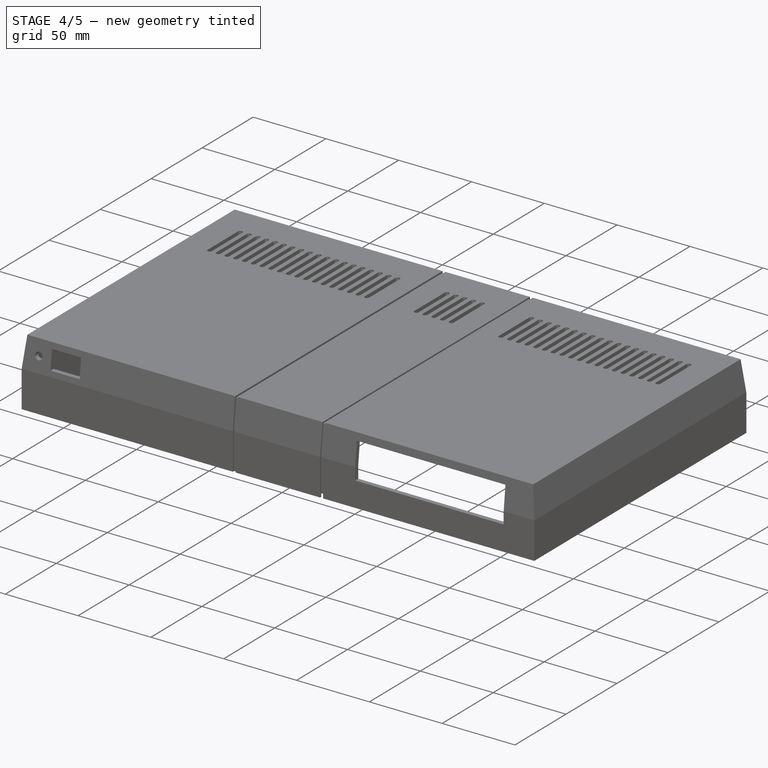
[diagram: stage 4 of 5 — iso view after this stage's code; geometry added in this stage tinted green]
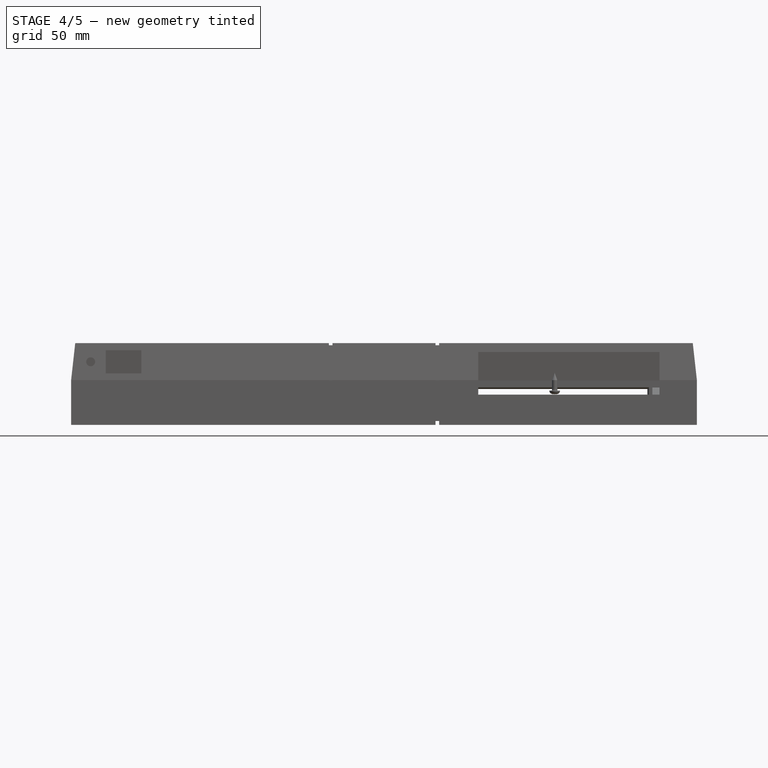
[diagram: stage 4 of 5 — front view after this stage's code; geometry added in this stage tinted green]
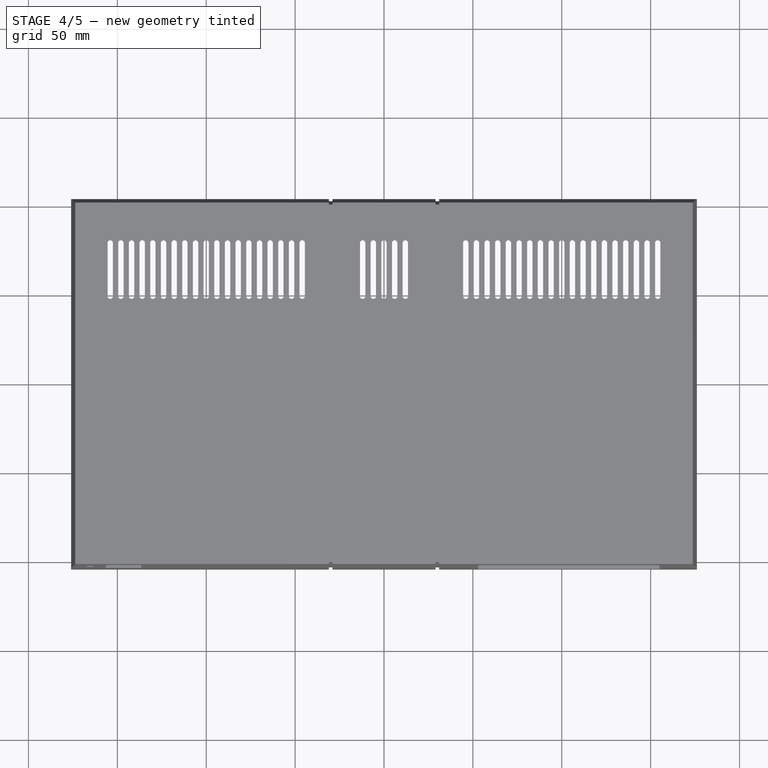
[diagram: stage 4 of 5 — top view after this stage's code; geometry added in this stage tinted green]
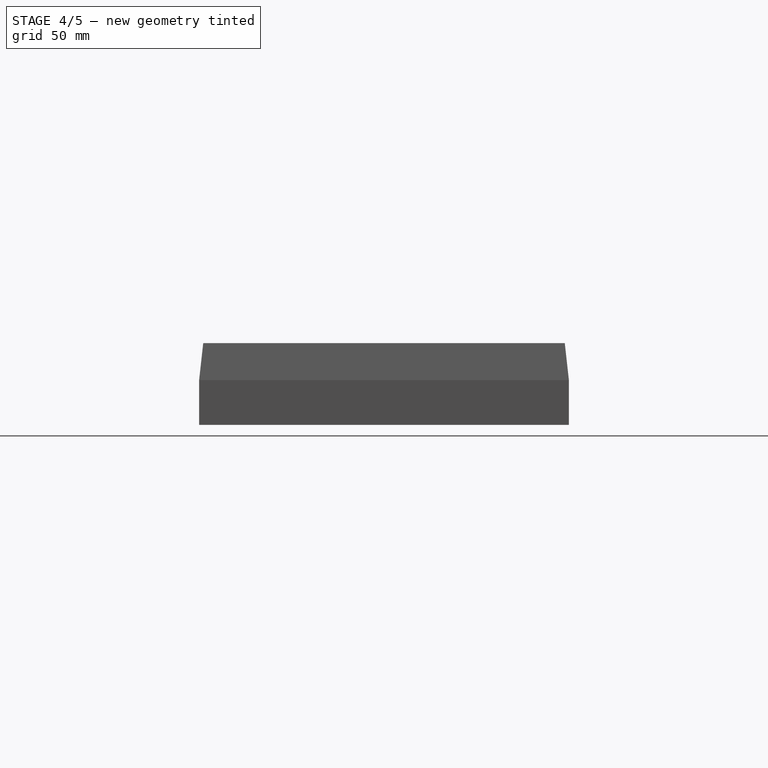
[diagram: stage 4 of 5 — right view after this stage's code; geometry added in this stage tinted green]
FEATURE [App::DocumentObjectGroup] GrExplode_Slice  label="Exploded Slice"
  Group = -> [Slice_child0,Slice_child1]
FEATURE [Part::Feature] Body009  label="TopScrewMount001"
  Placement = pos=(-192,0,0) rot=(0,0,1;0rad)
  shape: bbox 105.6 x 12 x 23.8 mm, 17 faces (baked)
FEATURE [Part::Feature] Slice_child002  label="LeftPanelMount"
  Placement = pos=(-192,0,0) rot=(0,0,1;0rad)
  shape: bbox 8 x 9 x 16 mm, 7 faces (baked)
FEATURE [Part::Feature] Slice_child003  label="RightPanelMount"
  shape: bbox 8 x 9 x 16 mm, 7 faces (baked)
FEATURE [App::Part] Part003  label="VideoAndKbdPanelMounts"
  Group = -> [GrExplode_Slice,Body007,Slice_child002,Slice_child003]
  Origin = -> Origin015
FEATURE [Part::Feature] Part__Feature036  label="DSUB-15-HD_Pins_Horizontal_P2.29x1.90mm_EdgePinOffset3.03mm_Housed_ MountingHolesOffset4.94mm"
  Placement = pos=(69.5,92.4,10.2) rot=(0,0,1;3.14159rad)
  shape: bbox 30.96 x 14.7 x 17.98 mm, 233 faces (baked)
FEATURE [Part::Feature] Part__Feature037  label="BarrelJack_CUI_PJ-063AH_Horizontal"
  shape: bbox 9.8 x 8.6 x 11.9 mm, 54 faces (baked)
FEATURE [Part::Feature] Part__Feature038  label="BarrelJack_CUI_PJ-063AH_Horizontal001"
  shape: bbox 10 x 13 x 12 mm, 42 faces (baked)
FEATURE [App::Part] BarrelJack_CUI_PJ_063AH_Horizontal  label="BarrelJack_CUI_PJ-063AH_Horizontal002"
  Group = -> [Part__Feature037,Part__Feature038]
  Origin = -> Origin019
  Placement = pos=(165.1,93.2,13.9) rot=(0,0,1;3.14159rad)
FEATURE [Part::Feature] Part__Feature039  label="Document"
  shape: bbox 11.54 x 16.76 x 11.54 mm, 59 faces, 0 solids (baked)
FEATURE [Part::Feature] Part__Feature040  label="Document001"
  shape: bbox 10.59 x 7.417 x 2e-07 mm, 1 faces, 0 solids (baked)
FEATURE [Part::Feature] Part__Feature041  label="Document002"
  shape: bbox 2e-07 x 0.7105 x 2.54 mm, 1 faces, 0 solids (baked)
FEATURE [Part::Feature] Part__Feature042  label="Document003"
  shape: bbox 2e-07 x 0.7105 x 2.54 mm, 1 faces, 0 solids (baked)
FEATURE [Part::Feature] Part__Feature043  label="Document004"
  shape: bbox 0.7112 x 2e-07 x 0.7112 mm, 1 faces, 0 solids (baked)
FEATURE [Part::Feature] Part__Feature044  label="Document005"
  shape: bbox 0.7112 x 2e-07 x 0.7112 mm, 1 faces, 0 solids (baked)
FEATURE [Part::Feature] Part__Feature045  label="Document006"
  shape: bbox 0.7112 x 2e-07 x 0.7112 mm, 1 faces, 0 solids (baked)
FEATURE [Part::Feature] Part__Feature046  label="Document007"
  shape: bbox 0.7112 x 2e-07 x 0.7112 mm, 1 faces, 0 solids (baked)
FEATURE [Part::Feature] Part__Feature047  label="Document008"
  shape: bbox 0.7112 x 2e-07 x 0.7112 mm, 1 faces, 0 solids (baked)
FEATURE [Part::Feature] Part__Feature048  label="Document009"
  shape: bbox 0.7112 x 2e-07 x 0.7112 mm, 1 faces, 0 solids (baked)
FEATURE [Part::Feature] Part__Feature049  label="Document010"
  shape: bbox 14.95 x 24.35 x 17.49 mm, 178 faces, 0 solids (baked)
FEATURE [Part::Feature] Part__Feature050  label="Document011"
  shape: bbox 0.5847 x 0.3307 x 3.175 mm, 11 faces, 0 solids (baked)
FEATURE [Part::Feature] Part__Feature051  label="Document012"
  shape: bbox 0.5847 x 0.3307 x 3.175 mm, 11 faces, 0 solids (baked)
FEATURE [Part::Feature] Part__Feature052  label="Document013"
  shape: bbox 0.5847 x 0.3307 x 3.175 mm, 11 faces, 0 solids (baked)
FEATURE [Part::Feature] Part__Feature053  label="Document014"
  shape: bbox 0.5847 x 0.3307 x 3.175 mm, 11 faces, 0 solids (baked)
FEATURE [Part::Feature] Part__Feature054  label="Document015"
  shape: bbox 0.5847 x 0.3307 x 3.175 mm, 11 faces, 0 solids (baked)
FEATURE [Part::Feature] Part__Feature055  label="Document016"
  shape: bbox 0.5847 x 0.3307 x 3.175 mm, 11 faces, 0 solids (baked)
FEATURE [App::Part] Document  label="PS2 Socket"
  Group = -> [Part__Feature039,Part__Feature040,Part__Feature041,Part__Feature042,Part__Feature043,Part__Feature044,Part__Feature045,Part__Feature046,Part__Feature047,Part__Feature048,Part__Feature049,Part__Feature050,Part__Feature051,Part__Feature052,Part__Feature053,Part__Feature054,Part__Feature055]
  Origin = -> Origin020
  Placement = pos=(134,94.4,9.7) rot=(0,0,1;3.14159rad)
FEATURE [Sketcher::SketchObject] Sketch026
  AttachmentOffset = pos=(0,0,-104) rot=(0,0,1;0rad)
  FullyConstrained = true
  MapMode = 5
  Placement = pos=(0,104,2.31e-14) rot=(1,0,0;1.5708rad)
  Support = -> [XZ_Plane022]
  sketch-geometry (4):
    g0: LineSegment StartX=-149 StartY=6 StartZ=0 EndX=-43 EndY=6 EndZ=0
    g1: LineSegment StartX=-43 StartY=6 StartZ=0 EndX=-43 EndY=27 EndZ=0
    g2: LineSegment StartX=-43 StartY=27 StartZ=0 EndX=-149 EndY=27 EndZ=0
    g3: LineSegment StartX=-149 StartY=27 StartZ=0 EndX=-149 EndY=6 EndZ=0
  constraints (12):
    c: Coincident(g0,g1)
    c: Coincident(g1,g2)
    c: Coincident(g2,g3)
    c: Coincident(g3,g0)
    c: Horizontal(g0)
    c: Horizontal(g2)
    c: Vertical(g1)
    c: Vertical(g3)
    c: DistanceX(g2,g2) = 106
    c: DistanceY(g3,g3) = 21
    c: DistanceX(g1) = -43
    c: DistanceY(g0) = 6
FEATURE [PartDesign::Pad] Pad  label="Panel002"
  Direction = (0,-1,-2e-16)
  Length = 1.5
  Length2 = 10
  Placement = pos=(0,0,0) rot=(1,0,0;1.5708rad)
  Profile = -> Sketch026
  ReferenceAxis = -> Sketch026 [N_Axis]
  Refine = true
  Type = 0
FEATURE [Sketcher::SketchObject] Sketch027
  FullyConstrained = false
  MapMode = 5
  Placement = pos=(0,102.5,0) rot=(1,0,0;1.5708rad)
  Support = -> [Pad]
  sketch-geometry (13):
    g0: LineSegment StartX=-144 StartY=27 StartZ=0 EndX=-147 EndY=27 EndZ=0
    g1: LineSegment StartX=-147 StartY=27 StartZ=0 EndX=-147 EndY=10 EndZ=0
    g2: LineSegment StartX=-147 StartY=10 StartZ=0 EndX=-144 EndY=10 EndZ=0
    g3: LineSegment StartX=-144 StartY=10 StartZ=0 EndX=-144 EndY=27 EndZ=0
    g4: LineSegment StartX=-96 StartY=32 StartZ=0 EndX=-96 EndY=4 EndZ=0
    g5: LineSegment StartX=-48 StartY=27 StartZ=0 EndX=-45 EndY=27 EndZ=0
    g6: LineSegment StartX=-45 StartY=27 StartZ=0 EndX=-45 EndY=10 EndZ=0
    g7: LineSegment StartX=-45 StartY=10 StartZ=0 EndX=-48 EndY=10 EndZ=0
    g8: LineSegment StartX=-48 StartY=10 StartZ=0 EndX=-48 EndY=27 EndZ=0
    g9: LineSegment StartX=-100 StartY=27 StartZ=0 EndX=-92 EndY=27 EndZ=0
    g10: LineSegment StartX=-92 StartY=27 StartZ=0 EndX=-92 EndY=24 EndZ=0
    g11: LineSegment StartX=-92 StartY=24 StartZ=0 EndX=-100 EndY=24 EndZ=0
    g12: LineSegment StartX=-100 StartY=24 StartZ=0 EndX=-100 EndY=27 EndZ=0
  constraints (25):
    c: Coincident(g0,g1)
    c: Coincident(g1,g2)
    c: Coincident(g2,g3)
    c: Coincident(g3,g0)
    c: Horizontal(g0)
    c: Horizontal(g2)
    c: Vertical(g1)
    c: Vertical(g3)
    c: Vertical(g4)
    c: Coincident(g5,g6)
    c: Coincident(g6,g7)
    c: Coincident(g7,g8)
    c: Coincident(g8,g5)
    c: Horizontal(g5)
    c: Horizontal(g7)
    c: Vertical(g6)
    c: Vertical(g8)
    c: Coincident(g9,g10)
    c: Coincident(g10,g11)
    c: Coincident(g11,g12)
    c: Coincident(g12,g9)
    c: Horizontal(g9)
    c: Horizontal(g11)
    c: Vertical(g10)
    c: Vertical(g12)
FEATURE [PartDesign::Pad] Pad012  label="Podium"
  BaseFeature = -> Pad
  Direction = (0,-1,2e-16)
  Length = 1
  Length2 = 10
  Placement = pos=(0,0,0) rot=(1,0,0;1.5708rad)
  Profile = -> Sketch027
  ReferenceAxis = -> Sketch027 [N_Axis]
  Refine = true
  Type = 0
FEATURE [Sketcher::SketchObject] Sketch028
  FullyConstrained = false
  MapMode = 5
  Placement = pos=(0,101.5,0) rot=(1,0,0;1.5708rad)
  Support = -> [Pad012]
  sketch-geometry (13):
    g0: LineSegment StartX=-144 StartY=29 StartZ=0 EndX=-150 EndY=29 EndZ=0
    g1: LineSegment StartX=-150 StartY=29 StartZ=0 EndX=-150 EndY=10 EndZ=0
    g2: LineSegment StartX=-150 StartY=10 StartZ=0 EndX=-144 EndY=10 EndZ=0
    g3: LineSegment StartX=-144 StartY=10 StartZ=0 EndX=-144 EndY=29 EndZ=0
    g4: LineSegment StartX=-96 StartY=30 StartZ=0 EndX=-96 EndY=2.24137 EndZ=0
    g5: LineSegment StartX=-48 StartY=29 StartZ=0 EndX=-42 EndY=29 EndZ=0
    g6: LineSegment StartX=-42 StartY=29 StartZ=0 EndX=-42 EndY=10 EndZ=0
    g7: LineSegment StartX=-42 StartY=10 StartZ=0 EndX=-48 EndY=10 EndZ=0
    g8: LineSegment StartX=-48 StartY=10 StartZ=0 EndX=-48 EndY=29 EndZ=0
    g9: LineSegment StartX=-100 StartY=30 StartZ=0 EndX=-89 EndY=30 EndZ=0
    g10: LineSegment StartX=-89 StartY=30 StartZ=0 EndX=-89 EndY=24 EndZ=0
    g11: LineSegment StartX=-89 StartY=24 StartZ=0 EndX=-100 EndY=24 EndZ=0
    g12: LineSegment StartX=-100 StartY=24 StartZ=0 EndX=-100 EndY=30 EndZ=0
  constraints (25):
    c: Coincident(g0,g1)
    c: Coincident(g1,g2)
    c: Coincident(g2,g3)
    c: Coincident(g3,g0)
    c: Horizontal(g0)
    c: Horizontal(g2)
    c: Vertical(g1)
    c: Vertical(g3)
    c: Vertical(g4)
    c: Coincident(g5,g6)
    c: Coincident(g6,g7)
    c: Coincident(g7,g8)
    c: Coincident(g8,g5)
    c: Horizontal(g5)
    c: Horizontal(g7)
    c: Vertical(g6)
    c: Vertical(g8)
    c: Coincident(g9,g10)
    c: Coincident(g10,g11)
    c: Coincident(g11,g12)
    c: Coincident(g12,g9)
    c: Horizontal(g9)
    c: Horizontal(g11)
    c: Vertical(g10)
    c: Vertical(g12)
FEATURE [Sketcher::SketchObject] Sketch029  label="PowerSocket"
  AttachmentOffset = pos=(0,0,-104) rot=(0,0,1;0rad)
  FullyConstrained = true
  Placement = pos=(0,104,2.3e-14) rot=(1,0,0;1.5708rad)
  Support = -> [XZ_Plane]
  sketch-geometry (4):
    g0: LineSegment StartX=133 StartY=27 StartZ=0 EndX=151 EndY=27 EndZ=0
    g1: LineSegment StartX=132.446 StartY=6 StartZ=0 EndX=151 EndY=6 EndZ=0
    g2: Circle CenterX=166 CenterY=17 CenterZ=0 NormalX=0 NormalY=0 NormalZ=1 AngleXU=0 Radius=4.25
    g3: Circle CenterX=166 CenterY=17 CenterZ=0 NormalX=0 NormalY=0 NormalZ=1 AngleXU=0 Radius=5.4
  constraints (10):
    c: Horizontal(g0)
    c: Horizontal(g1)
    c: Block(g0)
    c: Block(g1)
    c: Diameter(g2) = 8.5
    c: DistanceY(g2,g0) = 10
    c: DistanceY(g1,g2) = 11
    c: DistanceX(g0,g2) = 15
    c: Coincident(g3,g2)
    c: Diameter(g3) = 10.8
FEATURE [Part::Feature] Part__Feature056  label="DJ Jack 2,1mm panel mount"
  Placement = pos=(166,96,17) rot=(0,-1,0;0.523599rad)
  shape: bbox 12.7 x 18.2 x 12.7 mm, 64 faces (baked)
FEATURE [Sketcher::SketchObject] Sketch030
  ExternalGeometry = -> [Pad012]
  FullyConstrained = false
  MapMode = 5
  Placement = pos=(0,4.4e-15,10) rot=(1,0,0;3.14159rad)
  Support = -> [Pad012]
  sketch-geometry (5):
    g0: LineSegment StartX=-147 StartY=-102.5 StartZ=0 EndX=-148.6 EndY=-100.9 EndZ=0
    g1: LineSegment StartX=-148.6 StartY=-100.9 StartZ=0 EndX=-148.6 EndY=-100 EndZ=0
    g2: LineSegment StartX=-148.6 StartY=-100 StartZ=0 EndX=-144 EndY=-100 EndZ=0
    g3: LineSegment StartX=-144 StartY=-100 StartZ=0 EndX=-144 EndY=-102.5 EndZ=0
    g4: LineSegment StartX=-144 StartY=-102.5 StartZ=0 EndX=-147 EndY=-102.5 EndZ=0
  constraints (8):
    c: Parallel(g4,g-3)
    c: Block(g4)
    c: Coincident(g0,g4)
    c: Coincident(g3,g4)
    c: Coincident(g2,g3)
    c: Angle(g-3,g0) = 2.35619
    c: Coincident(g0,g1)
    c: Coincident(g1,g2)
FEATURE [PartDesign::Pad] Pad014
  BaseFeature = -> Pad012
  Direction = (0,-2e-16,-1)
  Length = 17
  Length2 = 10
  Placement = pos=(0,0,0) rot=(1,0,0;1.5708rad)
  Profile = -> Sketch030
  ReferenceAxis = -> Sketch030 [N_Axis]
  Refine = true
  Reversed = true
  Type = 0
FEATURE [Sketcher::SketchObject] Sketch036
  AttachmentOffset = pos=(0,0,-110) rot=(0,0,1;0rad)
  FullyConstrained = false
  MapMode = 5
  Placement = pos=(-110,2.44e-14,-2.44e-14) rot=(0.57735,0.57735,0.57735;2.0944rad)
  Support = -> [YZ_Plane025]
  sketch-geometry (9):
    g0: LineSegment StartX=101 StartY=25 StartZ=0 EndX=99 EndY=25 EndZ=0
    g1: LineSegment StartX=99 StartY=25 StartZ=0 EndX=99 EndY=31 EndZ=0
    g2: LineSegment StartX=99 StartY=31 StartZ=0 EndX=100.7 EndY=31 EndZ=0
    g3: LineSegment StartX=100.7 StartY=31 StartZ=0 EndX=100.9 EndY=30.8 EndZ=0
    g4: LineSegment StartX=100.9 StartY=30.8 StartZ=0 EndX=100.9 EndY=30.6 EndZ=0
    g5: LineSegment StartX=100.9 StartY=30.6 StartZ=0 EndX=100.45 EndY=30.15 EndZ=0
    g6: LineSegment StartX=101 StartY=26.9 StartZ=0 EndX=101 EndY=25 EndZ=0
    g7: LineSegment StartX=100.45 StartY=30.15 StartZ=0 EndX=100.45 EndY=27.45 EndZ=0
    g8: LineSegment StartX=100.45 StartY=27.45 StartZ=0 EndX=101 EndY=26.9 EndZ=0
  constraints (12):
    c: Coincident(g0,g1)
    c: Vertical(g1)
    c: Coincident(g1,g2)
    c: Coincident(g2,g3)
    c: Coincident(g3,g4)
    c: Coincident(g4,g5)
    c: Coincident(g5,g7)
    c: Coincident(g6,g0)
    c: Coincident(g8,g6)
    c: Vertical(g6)
    c: Coincident(g7,g8)
    c: Parallel(g7,g1)
FEATURE [Sketcher::SketchObject] Sketch037
  AttachmentOffset = pos=(0,0,-147) rot=(0,0,1;0rad)
  FullyConstrained = false
  MapMode = 5
  Placement = pos=(-147,3.26e-14,-3.26e-14) rot=(0.57735,0.57735,0.57735;2.0944rad)
  Support = -> [YZ_Plane027]
  sketch-geometry (9):
    g0: LineSegment StartX=101 StartY=23 StartZ=0 EndX=99 EndY=24 EndZ=0
    g1: LineSegment StartX=99 StartY=24 StartZ=0 EndX=99 EndY=32 EndZ=0
    g2: LineSegment StartX=99 StartY=32 StartZ=0 EndX=100.3 EndY=32 EndZ=0
    g3: LineSegment StartX=100.8 StartY=30.9 StartZ=0 EndX=100.3 EndY=30.4 EndZ=0
    g4: LineSegment StartX=100.3 StartY=30.4 StartZ=0 EndX=100.3 EndY=26.9 EndZ=0
    g5: LineSegment StartX=100.3 StartY=26.9 StartZ=0 EndX=101 EndY=26.9 EndZ=0
    g6: LineSegment StartX=101 StartY=26.9 StartZ=0 EndX=101 EndY=23 EndZ=0
    g7: LineSegment StartX=100.3 StartY=32 StartZ=0 EndX=100.8 EndY=31.5 EndZ=0
    g8: LineSegment StartX=100.8 StartY=31.5 StartZ=0 EndX=100.8 EndY=30.9 EndZ=0
  constraints (16):
    c: Coincident(g0,g1)
    c: Vertical(g1)
    c: Coincident(g1,g2)
    c: Horizontal(g2)
    c: Coincident(g2,g7)
    c: Coincident(g8,g3)
    c: Coincident(g3,g4)
    c: Vertical(g4)
    c: Coincident(g4,g5)
    c: Horizontal(g5)
    c: Coincident(g5,g6)
    c: Coincident(g6,g0)
    c: Vertical(g6)
    c: Block(g5)
    c: Coincident(g7,g8)
    c: Parallel(g8,g1)
FEATURE [PartDesign::Pad] Pad017
  Direction = (1,-2e-16,3e-16)
  Length = 3.8
  Length2 = 10
  Midplane = true
  Placement = pos=(0,0,0) rot=(0.57735,0.57735,0.57735;2.0944rad)
  Profile = -> Sketch037
  ReferenceAxis = -> Sketch037 [N_Axis]
  Refine = true
  Type = 0
FEATURE [PartDesign::Body] Body014  label="Left Latch"
  Group = -> [Sketch037,Pad017]
  Origin = -> Origin027
  Tip = -> Pad017
FEATURE [Sketcher::SketchObject] Sketch038
  AttachmentOffset = pos=(0,0,-147) rot=(0,0,1;0rad)
  FullyConstrained = false
  MapMode = 5
  Placement = pos=(-147,3.26e-14,-3.26e-14) rot=(0.57735,0.57735,0.57735;2.0944rad)
  Support = -> [YZ_Plane028]
  sketch-geometry (5):
    g0: LineSegment StartX=101 StartY=30.8586 StartZ=0 EndX=100.386 EndY=30.2447 EndZ=0
    g1: LineSegment StartX=100.386 StartY=30.2447 StartZ=0 EndX=100.386 EndY=29.5139 EndZ=0
    g2: LineSegment StartX=100.386 StartY=29.5139 StartZ=0 EndX=101 EndY=28.9 EndZ=0
    g3: LineSegment StartX=101 StartY=28.9 StartZ=0 EndX=101 EndY=30.8586 EndZ=0
    g4: LineSegment StartX=101.1 StartY=31.1 StartZ=0 EndX=100.2 EndY=30.2 EndZ=0
  constraints (11):
    c: Coincident(g0,g1)
    c: Vertical(g1)
    c: Coincident(g1,g2)
    c: Coincident(g2,g3)
    c: Coincident(g3,g0)
    c: Vertical(g3)
    c: Angle(g0,g3) = 0.785398
    c: Distance(g0,g4) = 0.1
    c: Angle(g3,g2) = 0.785398
    c: Angle(g4) = -2.35619
    c: Block(g4)
FEATURE [PartDesign::Pad] Pad018
  Direction = (1,-2e-16,3e-16)
  Length = 6
  Length2 = 10
  Midplane = true
  Placement = pos=(0,0,0) rot=(0.57735,0.57735,0.57735;2.0944rad)
  Profile = -> Sketch038
  ReferenceAxis = -> Sketch038 [N_Axis]
  Refine = true
  Type = 0
FEATURE [PartDesign::Body] Body
  BaseFeature = -> Part__Feature
  Group = -> [BaseFeature,Sketch,Sketch001,SubtractivePipe,LinearPattern,Sketch002,Pocket,Sketch003,Sketch012,Pocket006,Sketch013,Sketch014,Sketch033,Pocket011,SubtractivePipe002,Mirrored,Sketch029,Pocket012,Sketch039,Pocket014,Pocket001]
  Origin = -> Origin
  Tip = -> Pocket014
FEATURE [Part::Feature] Part__Feature057  label="Body001"
  shape: bbox 20.8 x 9 x 9 mm, 33 faces (baked)
FEATURE [Part::Feature] Part__Feature058  label="Nut"
  Placement = pos=(0,0,0) rot=(-1,0,0;0.523599rad)
  shape: bbox 2 x 9.353 x 8.1 mm, 9 faces (baked)
FEATURE [Part::Feature] Part__Feature059  label="Contact"
  Placement = pos=(0,0,0) rot=(1,0,0;1.5708rad)
  shape: bbox 0.3 x 9.4 x 15.8 mm, 8 faces (baked)
FEATURE [Part::Feature] Part__Feature060  label="Spring"
  shape: bbox 1.916 x 8.574 x 8.5 mm, 3 faces (baked)
FEATURE [App::Part] RCA_Socket  label="RCA-Socket"
  Group = -> [Part__Feature057,Part__Feature058,Part__Feature059,Part__Feature060]
  Origin = -> Origin029
  Placement = pos=(9,104,17) rot=(0,0,1;1.5708rad)
FEATURE [Part::Feature] Part__Feature061  label="Body002"
  shape: bbox 20.8 x 9 x 9 mm, 33 faces (baked)
FEATURE [Part::Feature] Part__Feature062  label="Nut001"
  shape: bbox 2 x 8.1 x 9.353 mm, 9 faces (baked)
FEATURE [Part::Feature] Part__Feature063  label="Contact001"
  Placement = pos=(0,0,0) rot=(1,0,0;1.5708rad)
  shape: bbox 0.3 x 9.4 x 15.8 mm, 8 faces (baked)
FEATURE [Part::Feature] Part__Feature064  label="Spring001"
  shape: bbox 1.916 x 8.574 x 8.5 mm, 3 faces (baked)
FEATURE [App::Part] RCA_Socket001  label="RCA-Socket001"
  Group = -> [Part__Feature061,Part__Feature062,Part__Feature063,Part__Feature064]
  Origin = -> Origin030
  Placement = pos=(23,104,17) rot=(0,0,1;1.5708rad)
FEATURE [Part::Feature] Part__Feature065  label="SOLID"
  shape: bbox 50.8 x 5.004 x 5.004 mm, 4 faces (baked)
FEATURE [Part::Feature] Part__Feature066  label="SOLID001"
  shape: bbox 13 x 6.401 x 6.402 mm, 39 faces (baked)
FEATURE [Part::Feature] Part__Feature067  label="SOLID002"
  shape: bbox 3.683 x 10.8 x 10.8 mm, 6 faces (baked)
FEATURE [Part::Feature] Part__Feature068  label="SOLID003"
  shape: bbox 15.88 x 13.52 x 11.71 mm, 8 faces (baked)
FEATURE [Part::Feature] Part__Feature069  label="SOLID004"
  shape: bbox 1.27 x 11.3 x 11.3 mm, 4 faces (baked)
FEATURE [Part::Feature] Part__Feature070  label="SOLID005"
  shape: bbox 3.175 x 11.91 x 11.91 mm, 6 faces (baked)
FEATURE [Part::Feature] Part__Feature071  label="SOLID006"
  shape: bbox 12.9 x 3.2 x 3.2 mm, 5 faces (baked)
FEATURE [Part::Feature] Part__Feature072  label="SOLID007"
  shape: bbox 6.299 x 8.992 x 8.992 mm, 6 faces (baked)
FEATURE [App::Part] Part006  label="RCA Jack"
  Group = -> [Part__Feature065,Part__Feature066,Part__Feature067,Part__Feature068,Part__Feature069,Part__Feature070,Part__Feature071,Part__Feature072]
  Origin = -> Origin032
  Placement = pos=(23,-263,17) rot=(0,0,1;4.71239rad)
FEATURE [Part::Feature] Part__Feature073  label="SOLID008"
  shape: bbox 50.8 x 5.004 x 5.004 mm, 4 faces (baked)
FEATURE [Part::Feature] Part__Feature074  label="SOLID009"
  shape: bbox 13 x 6.401 x 6.402 mm, 39 faces (baked)
FEATURE [Part::Feature] Part__Feature075  label="SOLID010"
  shape: bbox 3.683 x 10.8 x 10.8 mm, 6 faces (baked)
FEATURE [Part::Feature] Part__Feature076  label="SOLID011"
  shape: bbox 15.88 x 13.52 x 11.71 mm, 8 faces (baked)
FEATURE [Part::Feature] Part__Feature077  label="SOLID012"
  shape: bbox 1.27 x 11.3 x 11.3 mm, 4 faces (baked)
FEATURE [Part::Feature] Part__Feature078  label="SOLID013"
  shape: bbox 3.175 x 11.91 x 11.91 mm, 6 faces (baked)
FEATURE [Part::Feature] Part__Feature079  label="SOLID014"
  shape: bbox 12.9 x 3.2 x 3.2 mm, 5 faces (baked)
FEATURE [Part::Feature] Part__Feature080  label="SOLID015"
  shape: bbox 6.299 x 8.992 x 8.992 mm, 6 faces (baked)
FEATURE [PartDesign::FeatureBase] Clone003
  BaseFeature = -> Body014
FEATURE [PartDesign::Body] Body017  label="Right Latch"
  Group = -> [Clone003]
  Origin = -> Origin034
  Placement = pos=(102,0,0) rot=(0,0,1;0rad)
  Tip = -> Clone003
FEATURE [Sketcher::SketchObject] Sketch040
  FullyConstrained = false
  MapMode = 5
  Placement = pos=(0,0,0) rot=(1,0,0;1.5708rad)
  Support = -> [XZ_Plane036]
  sketch-geometry (14):
    g0: LineSegment StartX=0 StartY=49 StartZ=0 EndX=-2 EndY=49 EndZ=0
    g1: LineSegment StartX=-2 StartY=49 StartZ=0 EndX=-2 EndY=47.5 EndZ=0
    g2: LineSegment StartX=-2 StartY=47.5 StartZ=0 EndX=-1 EndY=46.5 EndZ=0
    g3: LineSegment StartX=-1 StartY=46.5 StartZ=0 EndX=-1 EndY=46 EndZ=0
    g4: LineSegment StartX=-1 StartY=46 StartZ=0 EndX=-3.00001 EndY=46 EndZ=0
    g5: LineSegment StartX=-3.00001 StartY=46 StartZ=0 EndX=-4 EndY=50 EndZ=0
    g6: LineSegment StartX=-4 StartY=50 StartZ=0 EndX=0 EndY=50 EndZ=0
    g7: LineSegment StartX=0 StartY=49 StartZ=0 EndX=2 EndY=49 EndZ=0
    g8: LineSegment StartX=2 StartY=49 StartZ=0 EndX=2 EndY=47.5 EndZ=0
    g9: LineSegment StartX=2 StartY=47.5 StartZ=0 EndX=1 EndY=46.5 EndZ=0
    g10: LineSegment StartX=1 StartY=46.5 StartZ=0 EndX=1 EndY=46 EndZ=0
    g11: LineSegment StartX=1 StartY=46 StartZ=0 EndX=3.00001 EndY=46 EndZ=0
    g12: LineSegment StartX=3.00001 StartY=46 StartZ=0 EndX=4 EndY=50 EndZ=0
    g13: LineSegment StartX=4 StartY=50 StartZ=0 EndX=0 EndY=50 EndZ=0
  constraints (23):
    c: PointOnObject(g0,g-2)
    c: Horizontal(g0)
    c: Coincident(g0,g1)
    c: Vertical(g1)
    c: Coincident(g1,g2)
    c: Coincident(g2,g3)
    c: Vertical(g3)
    c: Coincident(g3,g4)
    c: Horizontal(g4)
    c: Coincident(g4,g5)
    c: Coincident(g5,g6)
    c: Horizontal(g6)
    c: Horizontal(g7)
    c: Coincident(g7,g8)
    c: Vertical(g8)
    c: Coincident(g8,g9)
    c: Coincident(g9,g10)
    c: Vertical(g10)
    c: Coincident(g10,g11)
    c: Horizontal(g11)
    c: Coincident(g11,g12)
    c: Coincident(g12,g13)
    c: Horizontal(g13)
FEATURE [PartDesign::Pad] Pad019
  Direction = (0,-1,2e-16)
  Length = 4
  Length2 = 10
  Midplane = true
  Placement = pos=(0,0,0) rot=(1,0,0;1.5708rad)
  Profile = -> Sketch040
  ReferenceAxis = -> Sketch040 [N_Axis]
  Refine = true
  Type = 0
FEATURE [PartDesign::Body] Body018  label="Holder"
  Group = -> [Sketch040,Pad019]
  Origin = -> Origin036
  Tip = -> Pad019
FEATURE [PartDesign::FeatureBase] Clone004
  BaseFeature = -> Body018
FEATURE [PartDesign::Body] Body019  label="Holder Clone"
  Group = -> [Clone004]
  Origin = -> Origin037
  Placement = pos=(160,70,0) rot=(0,0,1;0rad)
  Tip = -> Clone004
FEATURE [PartDesign::FeatureBase] Clone005
  BaseFeature = -> Body018
FEATURE [PartDesign::Body] Body020
  Group = -> [Clone005]
  Origin = -> Origin038
  Placement = pos=(0,70,0) rot=(0,0,1;0rad)
  Tip = -> Clone005
FEATURE [PartDesign::FeatureBase] Clone006
  BaseFeature = -> Body018
FEATURE [PartDesign::Body] Body021
  Group = -> [Clone006]
  Origin = -> Origin039
  Placement = pos=(0,-80,0) rot=(0,0,1;0rad)
  Tip = -> Clone006
FEATURE [PartDesign::FeatureBase] Clone007
  BaseFeature = -> Body018
FEATURE [PartDesign::Body] Body022
  Group = -> [Clone007]
  Origin = -> Origin040
  Placement = pos=(-90,-80,0) rot=(0,0,1;0rad)
  Tip = -> Clone007
FEATURE [PartDesign::FeatureBase] Clone008
  BaseFeature = -> Body018
FEATURE [PartDesign::Body] Body023
  Group = -> [Clone008]
  Origin = -> Origin041
  Placement = pos=(-90,0,0) rot=(0,0,1;0rad)
  Tip = -> Clone008
FEATURE [PartDesign::FeatureBase] Clone009
  BaseFeature = -> Body018
FEATURE [PartDesign::Body] Body024
  Group = -> [Clone009]
  Origin = -> Origin042
  Placement = pos=(50,70,0) rot=(0,0,1;0rad)
  Tip = -> Clone009
FEATURE [PartDesign::FeatureBase] Clone010
  BaseFeature = -> Body018
FEATURE [PartDesign::Body] Body025
  Group = -> [Clone010]
  Origin = -> Origin043
  Placement = pos=(-150,70,0) rot=(0,0,1;0rad)
  Tip = -> Clone010
FEATURE [PartDesign::FeatureBase] Clone011
  BaseFeature = -> Body018
FEATURE [PartDesign::Body] Body026
  Group = -> [Clone011]
  Origin = -> Origin044
  Placement = pos=(-90,70,0) rot=(0,0,1;0rad)
  Tip = -> Clone011
FEATURE [Sketcher::SketchObject] Sketch041
  FullyConstrained = false
  MapMode = 5
  Placement = pos=(0,0,0) rot=(1,0,0;1.5708rad)
  Support = -> [XZ_Plane045]
  sketch-geometry (18):
    g0: LineSegment StartX=0 StartY=48.8 StartZ=0 EndX=-1.6 EndY=48.8 EndZ=0
    g1: LineSegment StartX=-1.6 StartY=48.8 StartZ=0 EndX=-1.8 EndY=48.6 EndZ=0
    g2: LineSegment StartX=-1.8 StartY=48.6 StartZ=0 EndX=-1.8 EndY=47.6 EndZ=0
    g3: LineSegment StartX=-1.8 StartY=47.6 StartZ=0 EndX=-0.8 EndY=46.6 EndZ=0
    g4: LineSegment StartX=-0.8 StartY=46.6 StartZ=0 EndX=-0.8 EndY=46 EndZ=0
    g5: LineSegment StartX=-0.8 StartY=46 StartZ=0 EndX=-1 EndY=45.8 EndZ=0
    g6: LineSegment StartX=-1 StartY=45.8 StartZ=0 EndX=-3 EndY=45.8 EndZ=0
    g7: LineSegment StartX=-3 StartY=45.8 StartZ=0 EndX=-3 EndY=45 EndZ=0
    g8: LineSegment StartX=-3 StartY=45 StartZ=0 EndX=0 EndY=45 EndZ=0
    g9: LineSegment StartX=0 StartY=48.8 StartZ=0 EndX=1.6 EndY=48.8 EndZ=0
    g10: LineSegment StartX=1.6 StartY=48.8 StartZ=0 EndX=1.8 EndY=48.6 EndZ=0
    g11: LineSegment StartX=1.8 StartY=48.6 StartZ=0 EndX=1.8 EndY=47.6 EndZ=0
    g12: LineSegment StartX=1.8 StartY=47.6 StartZ=0 EndX=0.8 EndY=46.6 EndZ=0
    g13: LineSegment StartX=0.8 StartY=46.6 StartZ=0 EndX=0.8 EndY=46 EndZ=0
    g14: LineSegment StartX=0.8 StartY=46 StartZ=0 EndX=1 EndY=45.8 EndZ=0
    g15: LineSegment StartX=1 StartY=45.8 StartZ=0 EndX=3 EndY=45.8 EndZ=0
    g16: LineSegment StartX=3 StartY=45.8 StartZ=0 EndX=3 EndY=45 EndZ=0
    g17: LineSegment StartX=3 StartY=45 StartZ=0 EndX=0 EndY=45 EndZ=0
  constraints (29):
    c: PointOnObject(g0,g-2)
    c: Horizontal(g0)
    c: Coincident(g0,g1)
    c: Coincident(g1,g2)
    c: Vertical(g2)
    c: Coincident(g2,g3)
    c: Coincident(g3,g4)
    c: Vertical(g4)
    c: Coincident(g4,g5)
    c: Coincident(g5,g6)
    c: Horizontal(g6)
    c: Coincident(g6,g7)
    c: Vertical(g7)
    c: Coincident(g7,g8)
    c: Horizontal(g8)
    c: Horizontal(g9)
    c: Coincident(g9,g10)
    c: Coincident(g10,g11)
    c: Vertical(g11)
    c: Coincident(g11,g12)
    c: Coincident(g12,g13)
    c: Vertical(g13)
    c: Coincident(g13,g14)
    c: Coincident(g14,g15)
    c: Horizontal(g15)
    c: Coincident(g15,g16)
    c: Vertical(g16)
    c: Coincident(g16,g17)
    c: Horizontal(g17)
FEATURE [PartDesign::Pad] Pad020
  Direction = (0,-1,2e-16)
  Length = 4
  Length2 = 10
  Midplane = true
  Placement = pos=(0,0,0) rot=(1,0,0;1.5708rad)
  Profile = -> Sketch041
  ReferenceAxis = -> Sketch041 [N_Axis]
  Refine = true
  Type = 0
FEATURE [PartDesign::Body] Body027  label="Mount"
  Group = -> [Sketch041,Pad020]
  Origin = -> Origin045
  Tip = -> Pad020
FEATURE [App::Part] Part008  label="Cable Holders"
  Group = -> [Body018,Body019,Body020,Body021,Body022,Body023,Body024,Body025,Body026,Body027]
  Origin = -> Origin035
FEATURE [Sketcher::SketchObject] Sketch042
  AttachmentOffset = pos=(0,0,-101) rot=(0,0,1;0rad)
  FullyConstrained = false
  MapMode = 5
  Placement = pos=(0,101,2.24e-14) rot=(1,0,0;1.5708rad)
  Support = -> [XZ_Plane046]
  sketch-geometry (6):
    g0: LineSegment StartX=-148.9 StartY=26.9 StartZ=0 EndX=-43.1 EndY=26.9 EndZ=0
    g1: LineSegment StartX=-96 StartY=26.9 StartZ=0 EndX=-96 EndY=-7.85357 EndZ=0
    g2: LineSegment StartX=-100 StartY=26.9 StartZ=0 EndX=-92 EndY=26.9 EndZ=0
    g3: LineSegment StartX=-92 StartY=26.9 StartZ=0 EndX=-92 EndY=25 EndZ=0
    g4: LineSegment StartX=-92 StartY=25 StartZ=0 EndX=-100 EndY=25 EndZ=0
    g5: LineSegment StartX=-100 StartY=25 StartZ=0 EndX=-100 EndY=26.9 EndZ=0
  constraints (15):
    c: Horizontal(g0)
    c: Block(g0)
    c: Vertical(g1)
    c: Symmetric(g0,g0,g1)
    c: DistanceX(g1,g0) = 52.9
    c: Block(g1)
    c: Coincident(g2,g3)
    c: Coincident(g3,g4)
    c: Coincident(g4,g5)
    c: Coincident(g5,g2)
    c: Horizontal(g2)
    c: Horizontal(g4)
    c: Vertical(g3)
    c: Vertical(g5)
    c: PointOnObject(g2,g0)
FEATURE [PartDesign::Pad] Pad021
  Direction = (0,-1,2e-16)
  Length = 4
  Length2 = 10
  Placement = pos=(0,0,0) rot=(1,0,0;1.5708rad)
  Profile = -> Sketch042
  ReferenceAxis = -> Sketch042 [N_Axis]
  Refine = true
  Type = 0
FEATURE [Sketcher::SketchObject] Sketch043
  FullyConstrained = true
  MapMode = 5
  Placement = pos=(0,1.18e-14,26.9) rot=(0,0,1;3.14159rad)
  Support = -> [Pad021]
  sketch-geometry (6):
    g0: LineSegment StartX=94 StartY=-101 StartZ=0 EndX=98 EndY=-101 EndZ=0
    g1: LineSegment StartX=98 StartY=-101 StartZ=0 EndX=98 EndY=-100 EndZ=0
    g2: LineSegment StartX=94 StartY=-101 StartZ=0 EndX=94 EndY=-100 EndZ=0
    g3: LineSegment StartX=94 StartY=-100 StartZ=0 EndX=96 EndY=-98 EndZ=0
    g4: LineSegment StartX=96 StartY=-98 StartZ=0 EndX=98 EndY=-100 EndZ=0
    g5: LineSegment StartX=96 StartY=-94 StartZ=0 EndX=96 EndY=-102 EndZ=0
  constraints (16):
    c: Horizontal(g0)
    c: Coincident(g0,g1)
    c: Coincident(g0,g2)
    c: Vertical(g2)
    c: Coincident(g2,g3)
    c: Coincident(g3,g4)
    c: Coincident(g4,g1)
    c: Angle(g3,g4) = 1.5708
    c: Parallel(g1,g2)
    c: Equal(g3,g4)
    c: Angle(g2,g3) = 2.35619
    c: Vertical(g5)
    c: Block(g5)
    c: PointOnObject(g3,g5)
    c: DistanceY(g0,g3) = 3
    c: Block(g3)
FEATURE [PartDesign::Pocket] Pocket015
  BaseFeature = -> Pad021
  Direction = (0,-2e-16,-1)
  Length = 5
  Length2 = 5
  Placement = pos=(0,0,0) rot=(1,0,0;1.5708rad)
  Profile = -> Sketch043
  ReferenceAxis = -> Sketch043 [N_Axis]
  Refine = true
  Type = 0
FEATURE [PartDesign::Body] Body028  label="Panel Lock"
  Group = -> [Sketch042,Pad021,Sketch043,Pocket015]
  Origin = -> Origin046
  Tip = -> Pocket015
FEATURE [Part::FeaturePython] Screw001  label="M3x20-Screw"  # WARN: FeaturePython — macro-defined, semantics opaque (R4)
  Diameter = 1
  Invert = false
  LeftHanded = false
  Length = 0
  LengthCustom = 20
  MatchOuter = false
  OffsetAngle = 0
  Placement = pos=(-96,98,25.8) rot=(0,1,0;3.14159rad)
  Thread = false
  Type = 66
FEATURE [App::DocumentObjectGroup] Group001  label="Fasteners"
  Group = -> [Insert001,Insert,Screw,Insert002,Screw001]
FEATURE [Sketcher::SketchObject] Sketch044
  AttachmentOffset = pos=(0,0,-96) rot=(0,0,1;0rad)
  FullyConstrained = false
  MapMode = 5
  Placement = pos=(-96,2.13e-14,-2.13e-14) rot=(0.57735,0.57735,0.57735;2.0944rad)
  Support = -> [YZ_Plane047]
  sketch-geometry (8):
    g0: LineSegment StartX=97 StartY=25 StartZ=0 EndX=99 EndY=23 EndZ=0
    g1: LineSegment StartX=99 StartY=23 StartZ=0 EndX=100 EndY=23 EndZ=0
    g2: LineSegment StartX=101 StartY=34 StartZ=0 EndX=99 EndY=31 EndZ=0
    g3: LineSegment StartX=99 StartY=31 StartZ=0 EndX=99 EndY=25 EndZ=0
    g4: LineSegment StartX=99 StartY=25 StartZ=0 EndX=97 EndY=25 EndZ=0
    g5: LineSegment StartX=100 StartY=23 StartZ=0 EndX=100 EndY=30 EndZ=0
    g6: LineSegment StartX=100 StartY=30 StartZ=0 EndX=101 EndY=30 EndZ=0
    g7: LineSegment StartX=101 StartY=30 StartZ=0 EndX=101 EndY=34 EndZ=0
  constraints (14):
    c: Coincident(g0,g1)
    c: Horizontal(g1)
    c: Coincident(g2,g3)
    c: Vertical(g3)
    c: Coincident(g3,g4)
    c: Coincident(g4,g0)
    c: Horizontal(g4)
    c: Vertical(g5)
    c: Coincident(g5,g6)
    c: Horizontal(g6)
    c: Coincident(g6,g7)
    c: Coincident(g7,g2)
    c: Vertical(g7)
    c: Coincident(g1,g5)
FEATURE [PartDesign::Pad] Pad022
  Direction = (1,-2e-16,3e-16)
  Length = 4
  Length2 = 10
  Midplane = true
  Placement = pos=(0,0,0) rot=(0.57735,0.57735,0.57735;2.0944rad)
  Profile = -> Sketch044
  ReferenceAxis = -> Sketch044 [N_Axis]
  Refine = true
  Type = 0
FEATURE [Sketcher::SketchObject] Sketch045
  FullyConstrained = false
  MapMode = 5
  Placement = pos=(-6.4e-15,1.01e-14,23) rot=(0.707107,0.707107,0;3.14159rad)
  Support = -> [Pad022]
  sketch-geometry (9):
    g0: LineSegment StartX=99 StartY=-94 StartZ=0 EndX=97 EndY=-96 EndZ=0
    g1: LineSegment StartX=97 StartY=-96 StartZ=0 EndX=99 EndY=-98 EndZ=0
    g2: LineSegment StartX=99 StartY=-98 StartZ=0 EndX=101 EndY=-98 EndZ=0
    g3: LineSegment StartX=101 StartY=-98 StartZ=0 EndX=101 EndY=-99 EndZ=0
    g4: LineSegment StartX=101 StartY=-99 StartZ=0 EndX=96 EndY=-99 EndZ=0
    g5: LineSegment StartX=96 StartY=-99 StartZ=0 EndX=96 EndY=-93 EndZ=0
    g6: LineSegment StartX=96 StartY=-93 StartZ=0 EndX=101 EndY=-93 EndZ=0
    g7: LineSegment StartX=101 StartY=-93 StartZ=0 EndX=101 EndY=-94 EndZ=0
    g8: LineSegment StartX=101 StartY=-94 StartZ=0 EndX=99 EndY=-94 EndZ=0
  constraints (16):
    c: Coincident(g0,g1)
    c: Coincident(g1,g2)
    c: Horizontal(g2)
    c: Coincident(g2,g3)
    c: Vertical(g3)
    c: Coincident(g3,g4)
    c: Horizontal(g4)
    c: Coincident(g4,g5)
    c: Vertical(g5)
    c: Coincident(g5,g6)
    c: Horizontal(g6)
    c: Coincident(g6,g7)
    c: Vertical(g7)
    c: Coincident(g7,g8)
    c: Coincident(g8,g0)
    c: Horizontal(g8)
FEATURE [PartDesign::Pocket] Pocket016
  BaseFeature = -> Pad022
  Direction = (-4e-16,6e-16,1)
  Length = 10
  Length2 = 5
  Placement = pos=(0,0,0) rot=(0.57735,0.57735,0.57735;2.0944rad)
  Profile = -> Sketch045
  ReferenceAxis = -> Sketch045 [N_Axis]
  Refine = true
  Type = 0
FEATURE [Part::FeaturePython] Pin  label="2 mmx10-Pin"  # WARN: FeaturePython — macro-defined, semantics opaque (R4)
  Diameter = 3
  Invert = false
  LeftHanded = false
  Length = 3
  LengthCustom = 10
  OffsetAngle = 0
  Placement = pos=(-150,97.5,27) rot=(0,-1,0;1.5708rad)
  Thread = false
  Type = 9
FEATURE [PartDesign::Body] Body030  label="Top Left"
  Group = -> [Sketch046,Pad023,Chamfer001]
  Origin = -> Origin048
  Tip = -> Chamfer001
FEATURE [PartDesign::FeatureBase] Clone012
  BaseFeature = -> Body030
FEATURE [PartDesign::Body] Body012  label="Interface panel"
  Group = -> [Sketch031,Pad015,Sketch032,SubtractivePipe001,Sketch035,Pocket013,Sketch036,Sketch049,Fillet002,Pad028,Pad016]
  Origin = -> Origin025
  Tip = -> Pad028
FEATURE [PartDesign::FeatureBase] Clone001
  BaseFeature = -> Body012
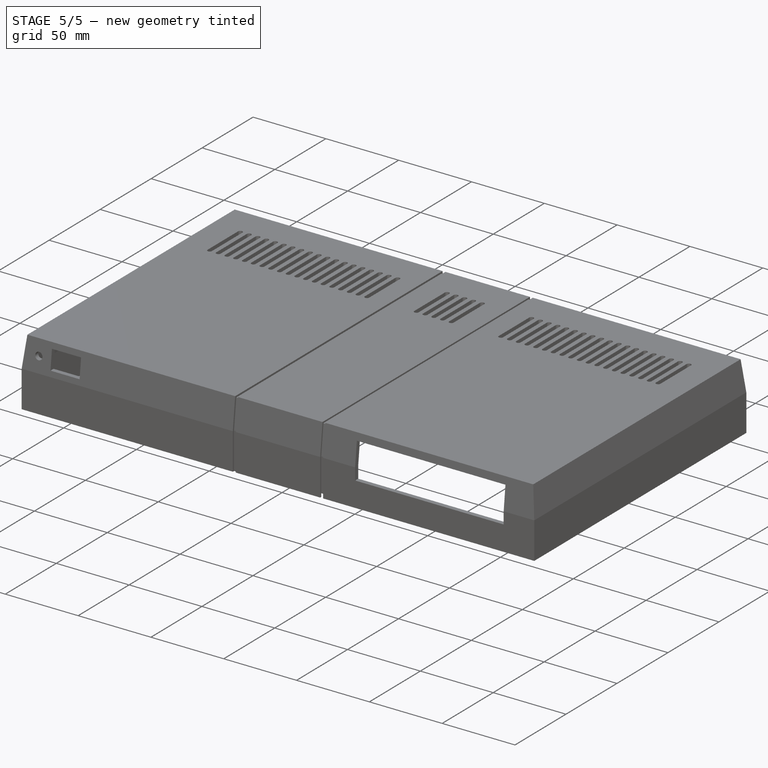
[diagram: stage 5 of 5 — iso view after this stage's code; geometry added in this stage tinted green]
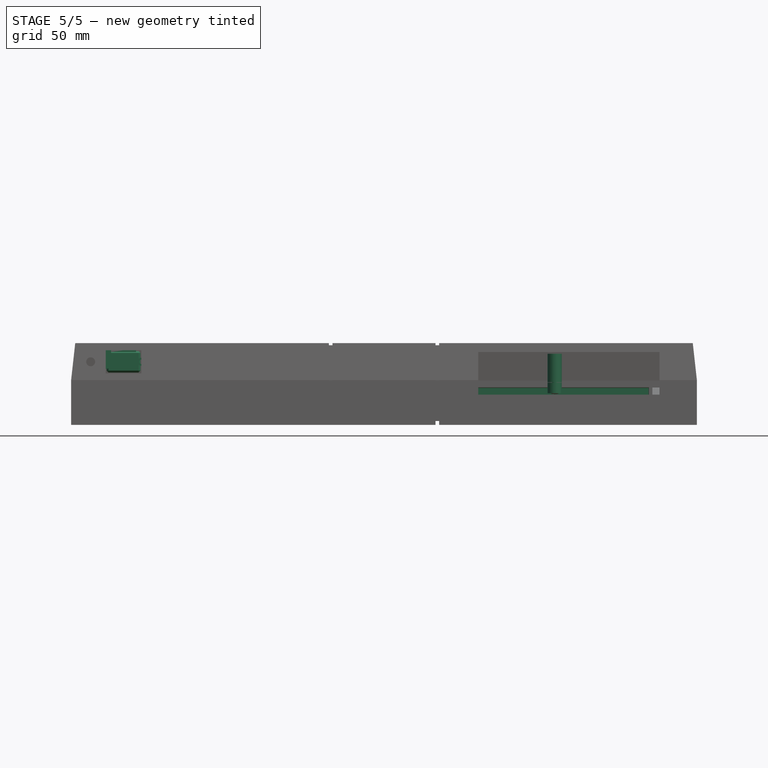
[diagram: stage 5 of 5 — front view after this stage's code; geometry added in this stage tinted green]
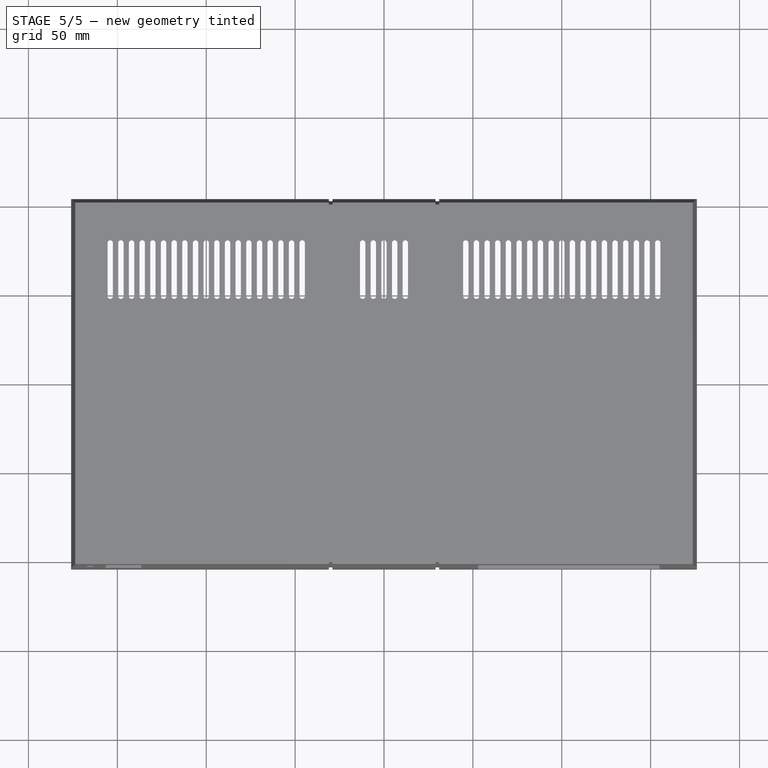
[diagram: stage 5 of 5 — top view after this stage's code; geometry added in this stage tinted green]
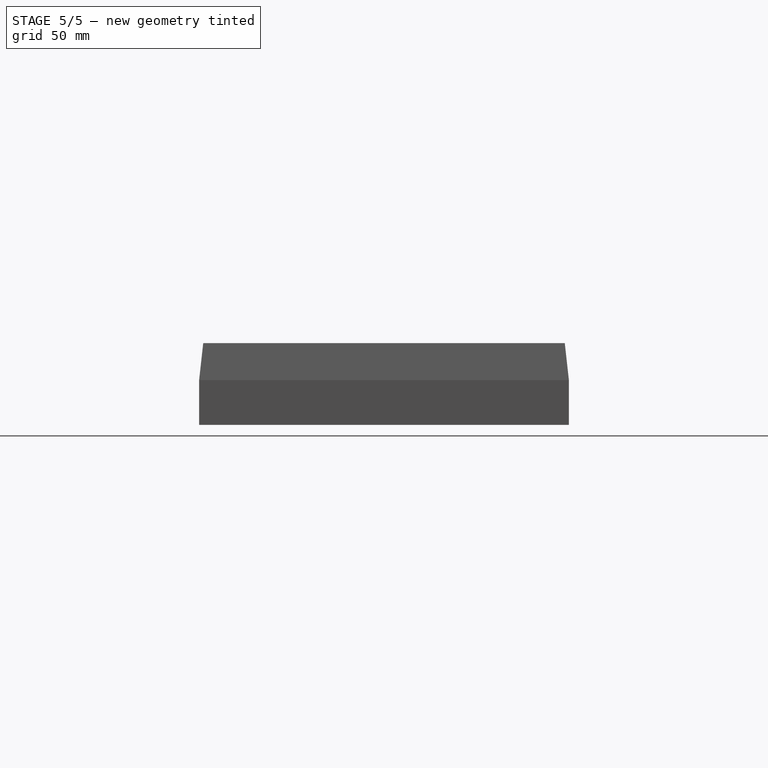
[diagram: stage 5 of 5 — right view after this stage's code; geometry added in this stage tinted green]
FEATURE [Part::Feature] Part__Feature001  label="Left"
  shape: bbox 150.3 x 208.6 x 17.19 mm, 204 faces (baked)
FEATURE [Part::Feature] Part__Feature002  label="SupportLip001"
  shape: bbox 150.3 x 208.6 x 17.19 mm, 204 faces (baked)
FEATURE [App::Part] CaseBottomWithGroovesAndLock
  Group = -> [Part__Feature001,Part__Feature002]
  Origin = -> Origin001
  Placement = pos=(0,0,-2) rot=(0,0,1;0rad)
FEATURE [Sketcher::SketchObject] Sketch003  label="PowerSlot"
  AttachmentOffset = pos=(0,0,104) rot=(0,0,1;0rad)
  ExternalGeometry = -> [Sketch002]
  FullyConstrained = true
  MapMode = 5
  Placement = pos=(0,-104,-2.31e-14) rot=(1,0,0;1.5708rad)
  Support = -> [XZ_Plane]
  sketch-geometry (4):
    g0: LineSegment StartX=-170.5 StartY=53 StartZ=0 EndX=-133.5 EndY=53 EndZ=0
    g1: LineSegment StartX=-133.5 StartY=53 StartZ=0 EndX=-133.5 EndY=33 EndZ=0
    g2: LineSegment StartX=-133.5 StartY=33 StartZ=0 EndX=-170.5 EndY=33 EndZ=0
    g3: LineSegment StartX=-170.5 StartY=33 StartZ=0 EndX=-170.5 EndY=53 EndZ=0
  constraints (13):
    c: Coincident(g0,g1)
    c: Coincident(g1,g2)
    c: Coincident(g2,g3)
    c: Coincident(g3,g0)
    c: Horizontal(g0)
    c: Horizontal(g2)
    c: Vertical(g1)
    c: Vertical(g3)
    c: DistanceY(g1,g1) = 20
    c: Distance(g-4,g2) = 2
    c: DistanceX(g-4,g1) = 3
    c: DistanceX(g2,g-5) = 5.5
    c: Radius(g-5) = 2.50079
FEATURE [Sketcher::SketchObject] Sketch005  label="Console001"
  AttachmentOffset = pos=(0,0,-156.5) rot=(0,0,1;0rad)
  FullyConstrained = false
  MapMode = 5
  Placement = pos=(-156.5,3.47e-14,-3.47e-14) rot=(0.57735,0.57735,0.57735;2.0944rad)
  Support = -> [YZ_Plane003]
  sketch-geometry (4):
    g0: LineSegment StartX=-81 StartY=49 StartZ=0 EndX=-81 EndY=41 EndZ=0
    g1: LineSegment StartX=-81 StartY=41 StartZ=0 EndX=-74 EndY=41 EndZ=0
    g2: LineSegment StartX=-74 StartY=41 StartZ=0 EndX=-70 EndY=49 EndZ=0
    g3: LineSegment StartX=-70 StartY=49 StartZ=0 EndX=-81 EndY=49 EndZ=0
  constraints (7):
    c: Vertical(g0)
    c: Coincident(g0,g1)
    c: Horizontal(g1)
    c: Coincident(g1,g2)
    c: Coincident(g2,g3)
    c: Coincident(g3,g0)
    c: Horizontal(g3)
FEATURE [PartDesign::Pad] Pad001  label="Wall"
  Direction = (1,-2e-16,3e-16)
  Length = 6
  Length2 = 10
  Midplane = true
  Placement = pos=(0,0,0) rot=(0.57735,0.57735,0.57735;2.0944rad)
  Profile = -> Sketch005
  ReferenceAxis = -> Sketch005 [N_Axis]
  Refine = true
  Type = 0
FEATURE [Sketcher::SketchObject] Sketch006  label="PadForInsert"
  ExternalGeometry = -> [Pad001]
  FullyConstrained = false
  MapMode = 5
  Placement = pos=(-3.56e-14,-81,1.78e-14) rot=(-0.57735,-0.57735,0.57735;4.18879rad)
  Support = -> [Pad001]
  sketch-geometry (1):
    g0: Circle CenterX=-41.5 CenterY=-156.5 CenterZ=0 NormalX=0 NormalY=0 NormalZ=1 AngleXU=0 Radius=4
  constraints (1):
    c: Diameter(g0) = 8
FEATURE [PartDesign::Pad] Pad002  label="PadForInsert001"
  BaseFeature = -> Pad001
  Direction = (-4e-16,-1,2e-16)
  Length = 7
  Length2 = 10
  Placement = pos=(0,0,0) rot=(0.57735,0.57735,0.57735;2.0944rad)
  Profile = -> Sketch006
  ReferenceAxis = -> Sketch006 [N_Axis]
  Refine = true
  Reversed = true
  Type = 0
FEATURE [Sketcher::SketchObject] Sketch007  label="HeatInsert"
  ExternalGeometry = -> [Pad002]
  FullyConstrained = true
  MapMode = 5
  Placement = pos=(0,-81,-5.35e-14) rot=(0.57735,0.57735,-0.57735;2.0944rad)
  Support = -> [Pad002]
  sketch-geometry (1):
    g0: Circle CenterX=-41.5 CenterY=-156.5 CenterZ=0 NormalX=0 NormalY=0 NormalZ=1 AngleXU=0 Radius=2.25
  constraints (2):
    c: Diameter(g0) = 4.5
    c: Coincident(g0,g-3)
FEATURE [PartDesign::Pocket] Pocket002  label="HeatInsertPocket"
  BaseFeature = -> Pad002
  Direction = (-1e-16,1,6e-16)
  Length = 6
  Length2 = 5
  Placement = pos=(0,0,0) rot=(0.57735,0.57735,0.57735;2.0944rad)
  Profile = -> Sketch007
  ReferenceAxis = -> Sketch007 [N_Axis]
  Refine = true
  Type = 0
FEATURE [PartDesign::Body] Body002  label="LeftMount"
  Group = -> [Sketch005,Pad001,Sketch006,Pad002,Sketch007,Pocket002]
  Origin = -> Origin003
  Tip = -> Pocket002
FEATURE [Part::Feature] Part__Feature003  label="KDC-A10 TV-5"
  Placement = pos=(-160.8,-43.7,46.75) rot=(-1,0,0;1.5708rad)
  shape: bbox 25.6 x 45.5 x 23.2 mm, 188 faces (baked)
FEATURE [Part::FeaturePython] Insert  label="M3x5-Insert"  # WARN: FeaturePython — macro-defined, semantics opaque (R4)
  Diameter = 3
  ExternalDiam = 4.55
  Invert = false
  LeftHanded = false
  Length = 5
  MatchOuter = false
  OffsetAngle = 0
  Placement = pos=(-156.5,-81,41.5) rot=(1,0,0;1.5708rad)
  Thread = false
  Type = 0
FEATURE [Part::Feature] Pocket003  label="RightMount"
  Placement = pos=(20.5,0,0) rot=(0.57735,0.57735,0.57735;2.0944rad)
  shape: bbox 8 x 11 x 11.5 mm, 10 faces (baked)
FEATURE [Part::FeaturePython] Insert001  label="M3x5-Insert001"  # WARN: FeaturePython — macro-defined, semantics opaque (R4)
  Diameter = 3
  ExternalDiam = 4.55
  Invert = false
  LeftHanded = false
  Length = 5
  MatchOuter = false
  OffsetAngle = 0
  Placement = pos=(-136.5,-81,41.5) rot=(1,0,0;1.5708rad)
  Thread = false
  Type = 0
FEATURE [Sketcher::SketchObject] Sketch008
  FullyConstrained = true
  MapMode = 5
  Placement = pos=(0,0,0) rot=(1,0,0;1.5708rad)
  Support = -> [XZ_Plane006]
  sketch-geometry (4):
    g0: LineSegment StartX=-156 StartY=47.5 StartZ=0 EndX=-137 EndY=47.5 EndZ=0
    g1: LineSegment StartX=-137 StartY=47.5 StartZ=0 EndX=-137 EndY=35.5 EndZ=0
    g2: LineSegment StartX=-137 StartY=35.5 StartZ=0 EndX=-156 EndY=35.5 EndZ=0
    g3: LineSegment StartX=-156 StartY=35.5 StartZ=0 EndX=-156 EndY=47.5 EndZ=0
  constraints (10):
    c: Coincident(g0,g1)
    c: Coincident(g1,g2)
    c: Coincident(g2,g3)
    c: Coincident(g3,g0)
    c: Horizontal(g0)
    c: Horizontal(g2)
    c: Vertical(g1)
    c: Vertical(g3)
    c: Block(g0)
    c: Block(g1)
FEATURE [PartDesign::Pad] Pad003  label="Button002"
  Direction = (0,-1,-2e-16)
  Length = 6
  Length2 = 10
  Midplane = true
  Placement = pos=(0,0,0) rot=(1,0,0;1.5708rad)
  Profile = -> Sketch008
  ReferenceAxis = -> Sketch008 [N_Axis]
  Refine = true
  Type = 4
FEATURE [Part::Feature] Part__Feature004  label="LED 5mm"
  shape: bbox 5.5 x 6 x 8.8 mm, 23 faces (baked)
FEATURE [Part::Feature] Part__Feature005  label="LED 5mm001"
  shape: bbox 1.38 x 0.48 x 31 mm, 8 faces (baked)
FEATURE [Part::Feature] Part__Feature006  label="LED 5mm002"
  shape: bbox 2.8 x 1.002 x 29.13 mm, 14 faces (baked)
FEATURE [App::Part] LED_5mm  label="LED 5mm003"
  Group = -> [Part__Feature004,Part__Feature005,Part__Feature006]
  Origin = -> Origin007
  Placement = pos=(-165,-96.8,41.5) rot=(1,0,0;1.5708rad)
FEATURE [Sketcher::SketchObject] Sketch009  label="Pocket"
  FullyConstrained = false
  MapMode = 5
  Placement = pos=(0,10,2.2e-15) rot=(-1,0,0;1.5708rad)
  Support = -> [Pad003]
  sketch-geometry (5):
    g0: LineSegment StartX=-148.24 StartY=-38.53 StartZ=0 EndX=-144.74 EndY=-38.53 EndZ=0
    g1: LineSegment StartX=-144.74 StartY=-38.53 StartZ=0 EndX=-144.74 EndY=-42.03 EndZ=0
    g2: LineSegment StartX=-144.74 StartY=-42.03 StartZ=0 EndX=-148.24 EndY=-42.03 EndZ=0
    g3: LineSegment StartX=-148.24 StartY=-42.03 StartZ=0 EndX=-148.24 EndY=-38.53 EndZ=0
    g4: LineSegment StartX=-148.24 StartY=-38.51 StartZ=0 EndX=-148.14 EndY=-38.51 EndZ=0
  constraints (12):
    c: Coincident(g0,g1)
    c: Coincident(g1,g2)
    c: Coincident(g2,g3)
    c: Coincident(g3,g0)
    c: Horizontal(g0)
    c: Horizontal(g2)
    c: Vertical(g1)
    c: Vertical(g3)
    c: Horizontal(g4)
    c: DistanceX(g4,g4) = 0.1
    c: Block(g0)
    c: Block(g2)
FEATURE [PartDesign::Pocket] Pocket004
  BaseFeature = -> Pad003
  Direction = (0,-1,-2e-16)
  Length = 10
  Length2 = 5
  Placement = pos=(0,0,0) rot=(1,0,0;1.5708rad)
  Profile = -> Sketch009
  ReferenceAxis = -> Sketch009 [N_Axis]
  Refine = true
  Type = 0
FEATURE [Sketcher::SketchObject] Sketch010
  ExternalGeometry = -> [Pocket004]
  FullyConstrained = false
  MapMode = 5
  Placement = pos=(0,10,2.2e-15) rot=(-1,0,0;1.5708rad)
  Support = -> [Pocket004]
  sketch-geometry (8):
    g0: LineSegment StartX=-157.282 StartY=-33.5235 StartZ=0 EndX=-151.24 EndY=-33.5235 EndZ=0
    g1: LineSegment StartX=-151.24 StartY=-33.5235 StartZ=0 EndX=-151.24 EndY=-45.03 EndZ=0
    g2: LineSegment StartX=-151.24 StartY=-45.03 StartZ=0 EndX=-141.74 EndY=-45.03 EndZ=0
    g3: LineSegment StartX=-141.74 StartY=-45.03 StartZ=0 EndX=-141.74 EndY=-33.0158 EndZ=0
    g4: LineSegment StartX=-141.74 StartY=-33.0158 StartZ=0 EndX=-135 EndY=-33.0158 EndZ=0
    g5: LineSegment StartX=-135 StartY=-33.0158 StartZ=0 EndX=-135 EndY=-48.9842 EndZ=0
    g6: LineSegment StartX=-135 StartY=-48.9842 StartZ=0 EndX=-157.282 EndY=-48.9842 EndZ=0
    g7: LineSegment StartX=-157.282 StartY=-48.9842 StartZ=0 EndX=-157.282 EndY=-33.5235 EndZ=0
  constraints (19):
    c: Horizontal(g0)
    c: Coincident(g0,g1)
    c: Vertical(g1)
    c: Coincident(g1,g2)
    c: Horizontal(g2)
    c: Coincident(g2,g3)
    c: Vertical(g3)
    c: Coincident(g3,g4)
    c: Horizontal(g4)
    c: Coincident(g4,g5)
    c: Vertical(g5)
    c: Coincident(g5,g6)
    c: Horizontal(g6)
    c: Coincident(g6,g7)
    c: Coincident(g7,g0)
    c: Parallel(g7,g5)
    c: DistanceX(g1,g-4) = 3
    c: DistanceX(g-4,g2) = 3
    c: DistanceY(g1,g-4) = 3
FEATURE [PartDesign::Pocket] Pocket005
  BaseFeature = -> Pocket004
  Direction = (0,-1,-2e-16)
  Length = 7
  Length2 = 5
  Placement = pos=(0,0,0) rot=(1,0,0;1.5708rad)
  Profile = -> Sketch010
  ReferenceAxis = -> Sketch010 [N_Axis]
  Refine = true
  Type = 0
FEATURE [PartDesign::Chamfer] Chamfer
  Angle = 45
  Base = -> Pocket005 [Face4,Edge4,Edge2,Edge12,Edge16]
  BaseFeature = -> Pocket005
  ChamferType = 0
  FlipDirection = false
  Placement = pos=(0,0,0) rot=(1,0,0;1.5708rad)
  Refine = true
  Size = 1
  Size2 = 1
  SupportTransform = false
  UseAllEdges = false
FEATURE [PartDesign::Body] Body003  label="Button001"
  Group = -> [Sketch008,Pad003,Sketch009,Pocket004,Sketch010,Pocket005,Chamfer]
  Origin = -> Origin006
  Placement = pos=(0,-101,0) rot=(0,0,1;0rad)
  Tip = -> Chamfer
FEATURE [App::Part] Part001  label="Button"
  Group = -> [Body003]
  Origin = -> Origin005
FEATURE [Sketcher::SketchObject] Sketch011
  AttachmentOffset = pos=(0,0,82) rot=(0,0,1;0rad)
  FullyConstrained = true
  MapMode = 5
  Placement = pos=(0,-82,-1.82e-14) rot=(1,0,0;1.5708rad)
  Support = -> [XZ_Plane008]
  sketch-geometry (4):
    g0: LineSegment StartX=-153.5 StartY=49 StartZ=0 EndX=-139.5 EndY=49 EndZ=0
    g1: LineSegment StartX=-139.5 StartY=49 StartZ=0 EndX=-139.5 EndY=47 EndZ=0
    g2: LineSegment StartX=-139.5 StartY=47 StartZ=0 EndX=-153.5 EndY=47 EndZ=0
    g3: LineSegment StartX=-153.5 StartY=47 StartZ=0 EndX=-153.5 EndY=49 EndZ=0
  constraints (10):
    c: Coincident(g0,g1)
    c: Coincident(g1,g2)
    c: Coincident(g2,g3)
    c: Coincident(g3,g0)
    c: Horizontal(g0)
    c: Horizontal(g2)
    c: Vertical(g1)
    c: Vertical(g3)
    c: Block(g0)
    c: Block(g2)
FEATURE [PartDesign::Pad] Pad004
  Direction = (0,-1,2e-16)
  Length = 3
  Length2 = 10
  Placement = pos=(0,0,0) rot=(1,0,0;1.5708rad)
  Profile = -> Sketch011
  ReferenceAxis = -> Sketch011 [N_Axis]
  Refine = true
  Reversed = true
  Type = 0
FEATURE [Sketcher::SketchObject] Sketch013  label="InterfaceCutouts"
  AttachmentOffset = pos=(0,0,-104) rot=(0,0,1;0rad)
  FullyConstrained = true
  MapMode = 5
  Placement = pos=(0,104,2.31e-14) rot=(1,0,0;1.5708rad)
  Support = -> [XZ_Plane]
  sketch-geometry (8):
    g0: LineSegment StartX=-147.9 StartY=25.9 StartZ=0 EndX=-44.1 EndY=25.9 EndZ=0
    g1: LineSegment StartX=-44.1 StartY=25.9 StartZ=0 EndX=-44.1 EndY=-1 EndZ=0
    g2: LineSegment StartX=-44.1 StartY=-1 StartZ=0 EndX=-147.9 EndY=-1 EndZ=0
    g3: LineSegment StartX=-147.9 StartY=-1 StartZ=0 EndX=-147.9 EndY=25.9 EndZ=0
    g4: LineSegment StartX=147.9 StartY=25.9 StartZ=0 EndX=44.1 EndY=25.9 EndZ=0
    g5: LineSegment StartX=44.1 StartY=25.9 StartZ=0 EndX=44.1 EndY=-1 EndZ=0
    g6: LineSegment StartX=44.1 StartY=-1 StartZ=0 EndX=147.9 EndY=-1 EndZ=0
    g7: LineSegment StartX=147.9 StartY=-1 StartZ=0 EndX=147.9 EndY=25.9 EndZ=0
  constraints (21):
    c: Coincident(g0,g1)
    c: Coincident(g1,g2)
    c: Coincident(g2,g3)
    c: Coincident(g3,g0)
    c: Horizontal(g0)
    c: Horizontal(g2)
    c: Vertical(g1)
    c: Vertical(g3)
    c: DistanceY(g1,g-1) = 1
    c: Block(g2)
    c: Block(g1)
    c: Coincident(g4,g5)
    c: Coincident(g5,g6)
    c: Coincident(g6,g7)
    c: Coincident(g7,g4)
    c: Horizontal(g4)
    c: Horizontal(g6)
    c: Vertical(g5)
    c: Vertical(g7)
    c: Block(g6)
    c: Block(g5)
FEATURE [Part::Feature] Part__Feature016  label="IDC-Header_2x13_P2.54mm_Horizontal"
  Placement = pos=(-21.59,80.01,1.595) rot=(0,0,1;1.5708rad)
  shape: bbox 40.68 x 13.55 x 12.1 mm, 588 faces (baked)
FEATURE [Part::Feature] Part__Feature017  label="IDC-Header_2x05_P2.54mm_Horizontal"
  Placement = pos=(67.31,80.01,1.595) rot=(0,0,1;1.5708rad)
  shape: bbox 20.36 x 13.55 x 12.1 mm, 252 faces (baked)
FEATURE [Part::Feature] Part__Feature018  label="IDC-Header_2x15_P2.54mm_Horizontal003"
  Placement = pos=(-87.63,80.01,1.595) rot=(0,0,1;1.5708rad)
  shape: bbox 45.76 x 13.55 x 12.1 mm, 672 faces (baked)
FEATURE [Part::Feature] Part__Feature019  label="IDC-Header_2x15_P2.54mm_Horizontal004"
  Placement = pos=(104.14,80.01,1.595) rot=(0,0,1;1.5708rad)
  shape: bbox 45.76 x 13.55 x 12.1 mm, 672 faces (baked)
FEATURE [Part::Feature] Part__Feature020  label="IDC-Header_2x05_P2.54mm_Horizontal001"
  Placement = pos=(36.195,80.01,1.595) rot=(0,0,1;1.5708rad)
  shape: bbox 20.36 x 13.55 x 12.1 mm, 252 faces (baked)
FEATURE [Part::Feature] Part__Feature021  label="IDC-Header_2x15_P2.54mm_Horizontal005"
  Placement = pos=(-139.7,80.01,1.595) rot=(0,0,1;1.5708rad)
  shape: bbox 45.76 x 13.55 x 12.1 mm, 672 faces (baked)
FEATURE [Part::Feature] Part__Feature022  label="OK240.2-02_PCB001"
  shape: bbox 325.1 x 180.3 x 1.51 mm, 2057 faces (baked)
FEATURE [Sketcher::SketchObject] Sketch014  label="KbdCutout"
  AttachmentOffset = pos=(0,0,-104) rot=(0,0,1;0rad)
  FullyConstrained = true
  MapMode = 5
  Placement = pos=(0,104,2.31e-14) rot=(1,0,0;1.5708rad)
  Support = -> [XZ_Plane]
  sketch-geometry (4):
    g0: LineSegment StartX=43 StartY=27 StartZ=0 EndX=149 EndY=27 EndZ=0
    g1: LineSegment StartX=149 StartY=27 StartZ=0 EndX=149 EndY=-1 EndZ=0
    g2: LineSegment StartX=149 StartY=-1 StartZ=0 EndX=43 EndY=-1 EndZ=0
    g3: LineSegment StartX=43 StartY=-1 StartZ=0 EndX=43 EndY=27 EndZ=0
  constraints (12):
    c: Coincident(g0,g1)
    c: Coincident(g1,g2)
    c: Coincident(g2,g3)
    c: Coincident(g3,g0)
    c: Horizontal(g0)
    c: Horizontal(g2)
    c: Vertical(g1)
    c: Vertical(g3)
    c: DistanceX(g0) = 149
    c: DistanceX(g0) = 43
    c: DistanceY(g3,g3) = 28
    c: DistanceY(g2,g-1) = 1
FEATURE [Part::Feature] Part__Feature023  label="DSUB-9_Socket_Horizontal_P2.77x2.84mm_EdgePinOffset9.40mm"
  Placement = pos=(66.85,89.1,11.4) rot=(0,0,1;3.14159rad)
  shape: bbox 30.96 x 19.09 x 16.48 mm, 169 faces (baked)
FEATURE [App::Part] ok240pcb_002  label="ok240pcb 002"
  Group = -> [Part__Feature016,Part__Feature017,Part__Feature018,Part__Feature019,Part__Feature020,Part__Feature021,Part__Feature022,Part__Feature023]
  Origin = -> Origin011
FEATURE [Part::Feature] Part__Feature024  label="SW3dPS-9pin dconn with pins assy_pin"
  Placement = pos=(4.32766,-2.20164,0.888229) rot=(0,0,1;0rad)
  shape: bbox 1.905 x 4.285 x 18.11 mm, 11 faces (baked)
FEATURE [Part::Feature] Part__Feature025  label="SW3dPS-9pin dconn with pins assy_pin001"
  Placement = pos=(-1.51434,-2.20164,0.888229) rot=(0,0,1;0rad)
  shape: bbox 1.905 x 4.285 x 18.11 mm, 11 faces (baked)
FEATURE [Part::Feature] Part__Feature026  label="SW3dPS-9pin dconn with pins assy_9pin dconn"
  Placement = pos=(1.40666,-6.13864,3.42823) rot=(0,0,1;0rad)
  shape: bbox 30.94 x 12.7 x 17.27 mm, 405 faces (baked)
FEATURE [Part::Feature] Part__Feature027  label="SW3dPS-9pin dconn with pins assy_pin002"
  Placement = pos=(-4.43534,-2.20164,0.888229) rot=(0,0,1;0rad)
  shape: bbox 1.905 x 4.285 x 18.11 mm, 11 faces (baked)
FEATURE [Part::Feature] Part__Feature028  label="SW3dPS-9pin dconn with pins assy_pin003"
  Placement = pos=(1.40666,-2.20164,0.888229) rot=(0,0,1;0rad)
  shape: bbox 1.905 x 4.285 x 18.11 mm, 11 faces (baked)
FEATURE [Part::Feature] Part__Feature029  label="SW3dPS-9pin dconn with pins assy_pin004"
  Placement = pos=(5.85608,2.49736,0.888229) rot=(0,0,1;0rad)
  shape: bbox 1.905 x 4.285 x 18.11 mm, 11 faces (baked)
FEATURE [Part::Feature] Part__Feature030  label="SW3dPS-9pin dconn with pins assy_pin005"
  Placement = pos=(7.24866,-2.20164,0.888229) rot=(0,0,1;0rad)
  shape: bbox 1.905 x 4.285 x 18.11 mm, 11 faces (baked)
FEATURE [Part::Feature] Part__Feature031  label="SW3dPS-9pin dconn with pins assy_pin006"
  Placement = pos=(2.88032,2.49736,0.888229) rot=(0,0,1;0rad)
  shape: bbox 1.905 x 4.285 x 18.11 mm, 11 faces (baked)
FEATURE [Part::Feature] Part__Feature032  label="SW3dPS-9pin dconn with pins assy_pin007"
  Placement = pos=(-2.93595,2.49736,0.888229) rot=(0,0,1;0rad)
  shape: bbox 1.905 x 4.285 x 18.11 mm, 11 faces (baked)
FEATURE [Part::Feature] Part__Feature033  label="SW3dPS-9pin dconn with pins assy_pin008"
  Placement = pos=(-0.0142892,2.49736,0.888229) rot=(0,0,1;0rad)
  shape: bbox 1.905 x 4.285 x 18.11 mm, 11 faces (baked)
FEATURE [App::Part] DB9_pins_assy
  Group = -> [Part__Feature024,Part__Feature025,Part__Feature026,Part__Feature027,Part__Feature028,Part__Feature029,Part__Feature030,Part__Feature031,Part__Feature032,Part__Feature033]
  Origin = -> Origin012
  Placement = pos=(64.05,97.75,16.65) rot=(1,0,0;4.71239rad)
FEATURE [Part::Feature] Part__Feature034  label="FloppyDrive"
  Placement = pos=(104,-25.65,34) rot=(0,0,1;0rad)
  shape: bbox 102 x 151.7 x 25.8 mm, 27 faces (baked)
FEATURE [Part::Feature] Part__Feature035  label="SW3dPS-9pin dconn with pins assy_9pin dconn001"
  Placement = pos=(103.357,98.9614,22.7282) rot=(-1,0,0;1.5708rad)
  shape: bbox 30.94 x 17.27 x 12.7 mm, 405 faces (baked)
FEATURE [Sketcher::SketchObject] Sketch015
  AttachmentOffset = pos=(0,0,-104) rot=(0,0,1;0rad)
  FullyConstrained = true
  MapMode = 5
  Placement = pos=(0,104,2.31e-14) rot=(1,0,0;1.5708rad)
  Support = -> [XZ_Plane014]
  sketch-geometry (4):
    g0: LineSegment StartX=43.2 StartY=26.8 StartZ=0 EndX=148.8 EndY=26.8 EndZ=0
    g1: LineSegment StartX=148.8 StartY=26.8 StartZ=0 EndX=148.8 EndY=6 EndZ=0
    g2: LineSegment StartX=148.8 StartY=6 StartZ=0 EndX=43.2 EndY=6 EndZ=0
    g3: LineSegment StartX=43.2 StartY=6 StartZ=0 EndX=43.2 EndY=26.8 EndZ=0
  constraints (11):
    c: Coincident(g0,g1)
    c: Coincident(g1,g2)
    c: Coincident(g2,g3)
    c: Coincident(g3,g0)
    c: Horizontal(g0)
    c: Horizontal(g2)
    c: Vertical(g1)
    c: Vertical(g3)
    c: DistanceX(g0,g0) = 105.6
    c: DistanceY(g1,g1) = 20.8
    c: Block(g0)
FEATURE [PartDesign::Pad] Pad005  label="Panel"
  Direction = (0,-1,-2e-16)
  Length = 3
  Length2 = 10
  Placement = pos=(0,0,0) rot=(1,0,0;1.5708rad)
  Profile = -> Sketch015
  ReferenceAxis = -> Sketch015 [N_Axis]
  Refine = true
  Type = 0
FEATURE [Sketcher::SketchObject] Sketch016
  ExternalGeometry = -> [Pad005]
  FullyConstrained = true
  MapMode = 5
  Placement = pos=(0,0,26.8) rot=(0,0,1;3.14159rad)
  Support = -> [Pad005]
  sketch-geometry (7):
    g0: Circle CenterX=-96 CenterY=-96 CenterZ=0 NormalX=0 NormalY=0 NormalZ=1 AngleXU=0 Radius=3
    g1: LineSegment StartX=-96 StartY=-79.9867 StartZ=0 EndX=-96 EndY=-105.895 EndZ=0
    g2: LineSegment StartX=-147.5 StartY=-90.4215 StartZ=0 EndX=-147.5 EndY=-110.422 EndZ=0
    g3: ArcOfCircle CenterX=-96 CenterY=-96 CenterZ=0 NormalX=0 NormalY=0 NormalZ=1 AngleXU=0 Radius=4 StartAngle=6.28318 EndAngle=9.42478
    g4: LineSegment StartX=-100 StartY=-96 StartZ=0 EndX=-100 EndY=-101 EndZ=0
    g5: LineSegment StartX=-92 StartY=-96 StartZ=0 EndX=-92 EndY=-101 EndZ=0
    g6: LineSegment StartX=-100 StartY=-101 StartZ=0 EndX=-92 EndY=-101 EndZ=0
  constraints (18):
    c: PointOnObject(g5,g-3)
    c: Symmetric(g-3,g-3,g1)
    c: Diameter(g0) = 6
    c: Distance(g0,g-3) = 5
    c: Vertical(g2)
    c: Block(g2)
    c: Block(g1)
    c: Coincident(g3,g0)
    c: Coincident(g4,g3)
    c: Vertical(g4)
    c: Coincident(g5,g3)
    c: Vertical(g5)
    c: Radius(g3) = 4
    c: Coincident(g6,g4)
    c: Coincident(g6,g5)
    c: Horizontal(g6)
    c: DistanceX(g6,g6) = 8
    c: Block(g3)
FEATURE [PartDesign::Pad] Pad006  label="TopScrew"
  BaseFeature = -> Pad005
  Direction = (0,-2e-16,1)
  Length = 3
  Length2 = 10
  Placement = pos=(0,0,0) rot=(1,0,0;1.5708rad)
  Profile = -> Sketch016
  ReferenceAxis = -> Sketch016 [N_Axis]
  Refine = true
  Reversed = true
  Type = 0
FEATURE [Sketcher::SketchObject] Sketch017
  ExternalGeometry = -> [Pad006]
  FullyConstrained = true
  MapMode = 5
  Placement = pos=(0,8e-15,26.8) rot=(0,0,1;3.14159rad)
  Support = -> [Pad006]
  sketch-geometry (5):
    g0: LineSegment StartX=-92 StartY=-96 StartZ=0 EndX=-92 EndY=-100.6 EndZ=0
    g1: LineSegment StartX=-92 StartY=-100.6 StartZ=0 EndX=-100 EndY=-100.6 EndZ=0
    g2: LineSegment StartX=-100 StartY=-100.6 StartZ=0 EndX=-100 EndY=-96 EndZ=0
    g3: Circle CenterX=-96 CenterY=-96 CenterZ=0 NormalX=0 NormalY=0 NormalZ=1 AngleXU=0 Radius=1.75
    g4: ArcOfCircle CenterX=-96 CenterY=-96 CenterZ=0 NormalX=0 NormalY=0 NormalZ=1 AngleXU=0 Radius=4 StartAngle=3.58812e-06 EndAngle=3.14158
  constraints (12):
    c: Coincident(g1,g2)
    c: Coincident(g2,g4)
    c: Coincident(g0,g1)
    c: Coincident(g0,g4)
    c: Coincident(g2,g-5)
    c: Parallel(g2,g-2)
    c: Parallel(g0,g2)
    c: Coincident(g0,g-5)
    c: Distance(g1,g-3) = 0.4
    c: Radius(g4) = 4
    c: Block(g0)
    c: Block(g3)
FEATURE [PartDesign::Pad] Pad007
  BaseFeature = -> Pad006
  Direction = (0,1e-16,1)
  Length = 3
  Length2 = 10
  Placement = pos=(0,0,0) rot=(1,0,0;1.5708rad)
  Profile = -> Sketch017
  ReferenceAxis = -> Sketch017 [N_Axis]
  Refine = true
  Type = 0
FEATURE [PartDesign::Body] Body006  label="Panel001"
  Group = -> [Sketch015,Pad005,Sketch016,Pad006,Sketch017,Pad007]
  Origin = -> Origin014
  Tip = -> Pad007
FEATURE [Sketcher::SketchObject] Sketch018
  AttachmentOffset = pos=(0,0,36) rot=(0,0,1;0rad)
  FullyConstrained = true
  MapMode = 5
  Placement = pos=(0,0,36) rot=(0,0,1;0rad)
  Support = -> [XY_Plane016]
  sketch-geometry (5):
    g0: LineSegment StartX=100 StartY=96 StartZ=0 EndX=100 EndY=101 EndZ=0
    g1: LineSegment StartX=100 StartY=101 StartZ=0 EndX=92 EndY=101 EndZ=0
    g2: LineSegment StartX=92 StartY=101 StartZ=0 EndX=92 EndY=96 EndZ=0
    g3: ArcOfCircle CenterX=96 CenterY=96 CenterZ=0 NormalX=0 NormalY=0 NormalZ=1 AngleXU=0 Radius=4 StartAngle=3.14159 EndAngle=6.28318
    g4: Circle CenterX=96 CenterY=96 CenterZ=0 NormalX=0 NormalY=0 NormalZ=1 AngleXU=0 Radius=2.25
  constraints (12):
    c: Coincident(g0,g1)
    c: Coincident(g1,g2)
    c: Vertical(g0)
    c: Vertical(g2)
    c: Block(g1)
    c: Coincident(g2,g3)
    c: Coincident(g0,g3)
    c: Block(g3)
    c: Diameter(g3) = 8
    c: Coincident(g4,g3)
    c: Diameter(g4) = 4.5
    c: DistanceX(g3) = 96
FEATURE [PartDesign::Pad] Pad008
  Direction = (0,0,1)
  Length = 6
  Length2 = 10
  Profile = -> Sketch018
  ReferenceAxis = -> Sketch018 [N_Axis]
  Refine = true
  Reversed = true
  Type = 0
FEATURE [Part::FeaturePython] Screw  label="M3x8-Screw"  # WARN: FeaturePython — macro-defined, semantics opaque (R4)
  Diameter = 4
  Invert = false
  LeftHanded = false
  Length = 2
  LengthCustom = 8
  MatchOuter = false
  OffsetAngle = 0
  Placement = pos=(96,96,26.8) rot=(0,1,0;3.14159rad)
  Thread = false
  Type = 75
FEATURE [Part::FeaturePython] Insert002  label="M3x5-Insert002"  # WARN: FeaturePython — macro-defined, semantics opaque (R4)
  Diameter = 3
  ExternalDiam = 4.55
  Invert = false
  LeftHanded = false
  Length = 5
  MatchOuter = false
  OffsetAngle = 0
  Placement = pos=(96,96,30) rot=(1,0,0;3.14159rad)
  Thread = false
  Type = 0
FEATURE [Sketcher::SketchObject] Sketch019
  AttachmentOffset = pos=(0,0,-101) rot=(0,0,1;0rad)
  FullyConstrained = false
  MapMode = 5
  Placement = pos=(0,101,2.24e-14) rot=(1,0,0;1.5708rad)
  Support = -> [XZ_Plane017]
  sketch-geometry (6):
    g0: LineSegment StartX=45 StartY=9 StartZ=0 EndX=43.2 EndY=9 EndZ=0
    g1: LineSegment StartX=43.2 StartY=9 StartZ=0 EndX=43.2 EndY=14 EndZ=0
    g2: LineSegment StartX=43.2 StartY=14 StartZ=0 EndX=45 EndY=14 EndZ=0
    g3: LineSegment StartX=45 StartY=14 StartZ=0 EndX=45 EndY=9 EndZ=0
    g4: LineSegment StartX=41 StartY=9 StartZ=0 EndX=152 EndY=9 EndZ=0
    g5: LineSegment StartX=96 StartY=54 StartZ=0 EndX=96 EndY=-3.75791 EndZ=0
  constraints (12):
    c: Coincident(g0,g1)
    c: Coincident(g1,g2)
    c: Coincident(g2,g3)
    c: Coincident(g3,g0)
    c: Horizontal(g0)
    c: Horizontal(g2)
    c: Vertical(g1)
    c: Vertical(g3)
    c: Horizontal(g4)
    c: Block(g4)
    c: Vertical(g5)
    c: Block(g5)
FEATURE [PartDesign::Pad] Pad009
  Direction = (0,-1,-2e-16)
  Length = 0.4
  Length2 = 10
  Placement = pos=(0,0,0) rot=(1,0,0;1.5708rad)
  Profile = -> Sketch019
  ReferenceAxis = -> Sketch019 [N_Axis]
  Refine = true
  Type = 0
FEATURE [Sketcher::SketchObject] Sketch020
  ExternalGeometry = -> [Pad009]
  FullyConstrained = false
  MapMode = 5
  Placement = pos=(0,100.6,0) rot=(1,0,0;1.5708rad)
  Support = -> [Pad009]
  sketch-geometry (5):
    g0: LineSegment StartX=41.5 StartY=14 StartZ=0 EndX=41.5 EndY=9 EndZ=0
    g1: LineSegment StartX=41.5 StartY=9 StartZ=0 EndX=45 EndY=9 EndZ=0
    g2: LineSegment StartX=45 StartY=9 StartZ=0 EndX=45 EndY=14 EndZ=0
    g3: LineSegment StartX=96 StartY=37 StartZ=0 EndX=96 EndY=4.52297 EndZ=0
    g4: LineSegment StartX=41.5 StartY=14 StartZ=0 EndX=45 EndY=14 EndZ=0
  constraints (11):
    c: Coincident(g0,g1)
    c: Coincident(g1,g2)
    c: Horizontal(g1)
    c: Vertical(g0)
    c: Vertical(g2)
    c: Vertical(g3)
    c: Block(g3)
    c: Coincident(g4,g0)
    c: Coincident(g4,g2)
    c: Horizontal(g4)
    c: PointOnObject(g2,g-4)
FEATURE [PartDesign::Pad] Pad010
  BaseFeature = -> Pad009
  Direction = (0,-1,2e-16)
  Length = 2
  Length2 = 10
  Placement = pos=(0,0,0) rot=(1,0,0;1.5708rad)
  Profile = -> Sketch020
  ReferenceAxis = -> Sketch020 [N_Axis]
  Refine = true
  Type = 0
FEATURE [PartDesign::Body] Body008  label="LeftFlap"
  Group = -> [Sketch019,Pad009,Sketch020,Pad010]
  Origin = -> Origin017
  Tip = -> Pad010
FEATURE [App::Part] Part002  label="VideoAndKbdPanel"
  Group = -> [Body006,Body008]
  Origin = -> Origin013
FEATURE [PartDesign::Pad] Pad011
  BaseFeature = -> Pad008
  Direction = (0,0,1)
  Length = 10
  Length2 = 10
  Profile = -> Pad008 [Face6]
  Refine = true
  Type = 0
FEATURE [PartDesign::Plane] DatumPlane
  AttachmentOffset = pos=(0,0,0) rot=(1,0,0;0.872665rad)
  Length = 150.1
  MapMode = 7
  Placement = pos=(100,101,46) rot=(1,0,0;0.872665rad)
  ResizeMode = 1
  Support = -> [Pad011]
  Width = 151.1
FEATURE [PartDesign::Body] Body007  label="Top"
  Group = -> [Sketch018,Pad008,Pad011,DatumPlane]
  Origin = -> Origin016
  Tip = -> Pad011
FEATURE [Part::FeaturePython] Slice  # WARN: FeaturePython — macro-defined, semantics opaque (R4)
  Base = -> Pad011
  Mode = 1
  Tolerance = 0
  Tools = -> [DatumPlane]
FEATURE [Part::FeaturePython] Slice_child0  label="Slice.0"  # WARN: FeaturePython — macro-defined, semantics opaque (R4)
  Base = -> Slice
  FilterType = 1
  Invert = false
  OverrideMaxVal = 0
  WindowFrom = 80
  WindowTo = 100
  items = 0
FEATURE [Part::FeaturePython] Slice_child1  label="Slice.1"  # WARN: FeaturePython — macro-defined, semantics opaque (R4)
  Base = -> Slice
  FilterType = 1
  Invert = false
  OverrideMaxVal = 0
  WindowFrom = 80
  WindowTo = 100
  items = 1
FEATURE [PartDesign::Pad] Pad013  label="Lock"
  BaseFeature = -> Pad014
  Direction = (0,-1,2e-16)
  Length = 2
  Length2 = 10
  Placement = pos=(0,0,0) rot=(1,0,0;1.5708rad)
  Profile = -> Sketch028
  ReferenceAxis = -> Sketch028 [N_Axis]
  Refine = true
  Type = 0
FEATURE [PartDesign::Body] Body010  label="AnotherPanel001"
  Group = -> [Sketch026,Pad,Sketch027,Pad012,Sketch028,Sketch030,Pad014,Pad013]
  Origin = -> Origin022
  Tip = -> Pad014
FEATURE [PartDesign::FeatureBase] Clone
  BaseFeature = -> Body010
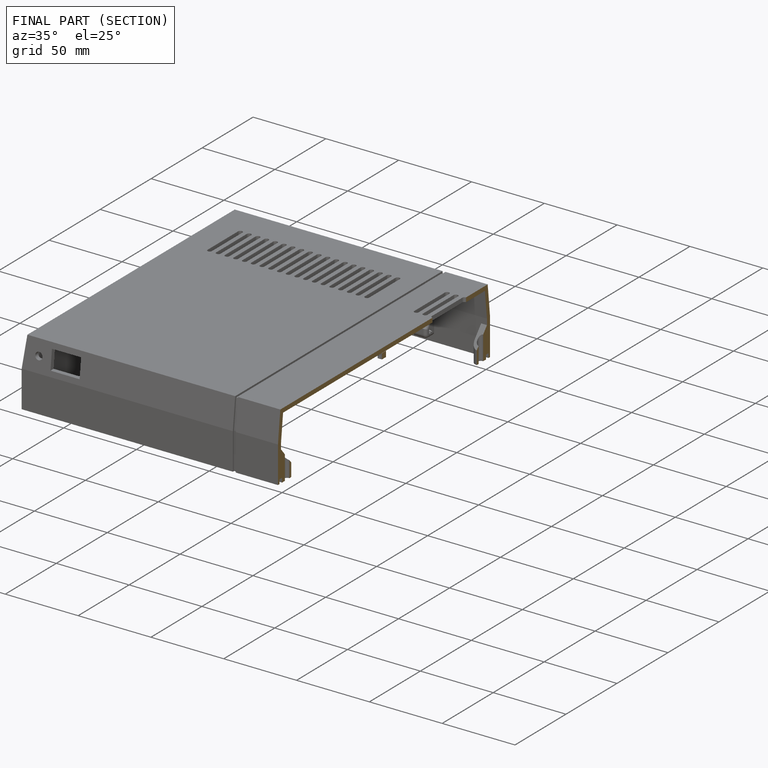
[diagram: finished part — half-section view (interior)]
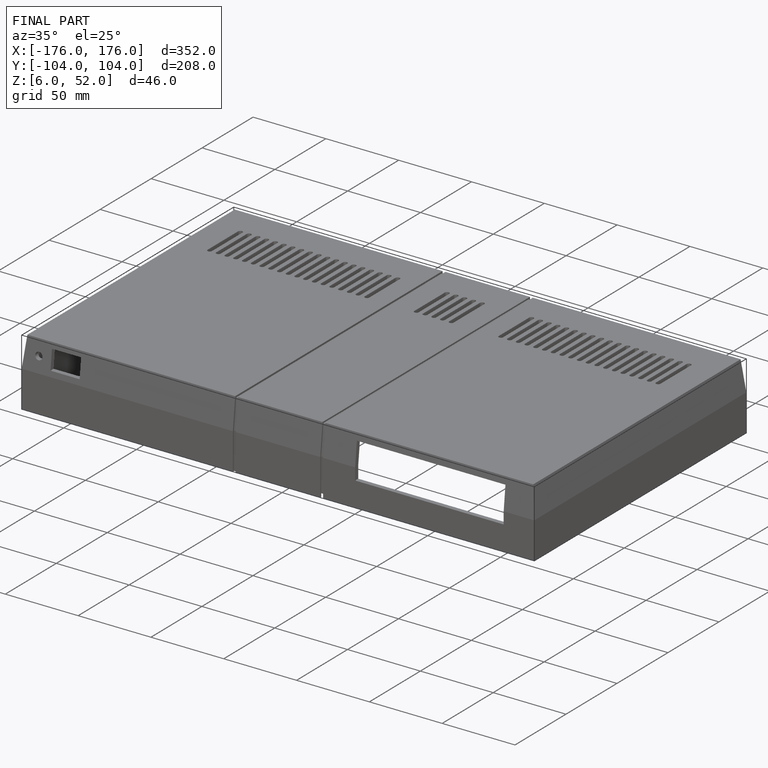
[diagram: finished part — iso view with bounding-box wireframe]
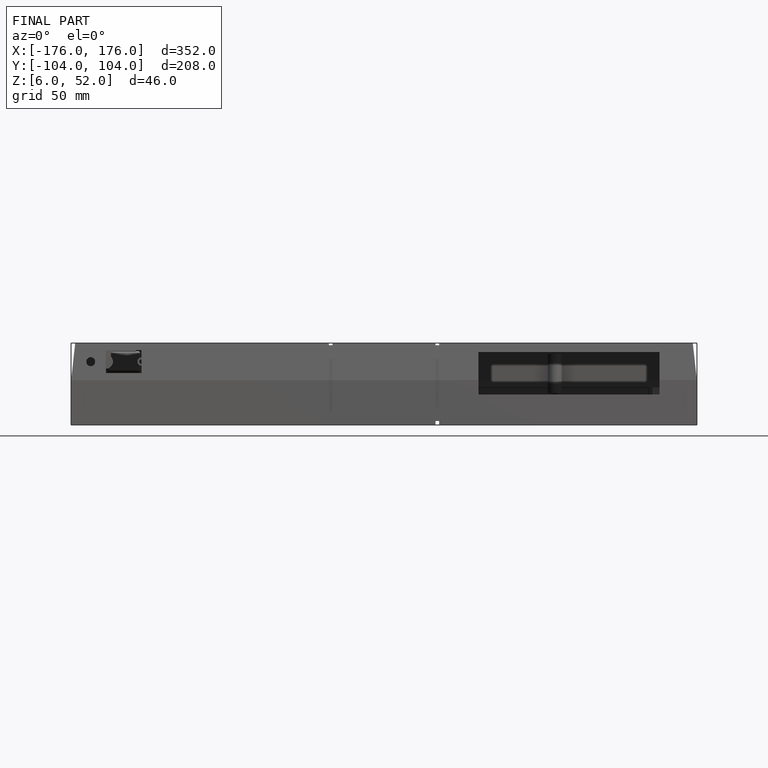
[diagram: finished part — front view with bounding-box wireframe]
